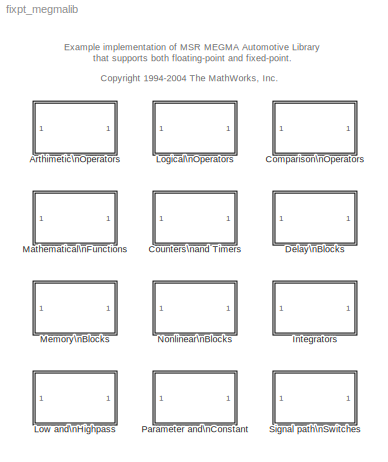
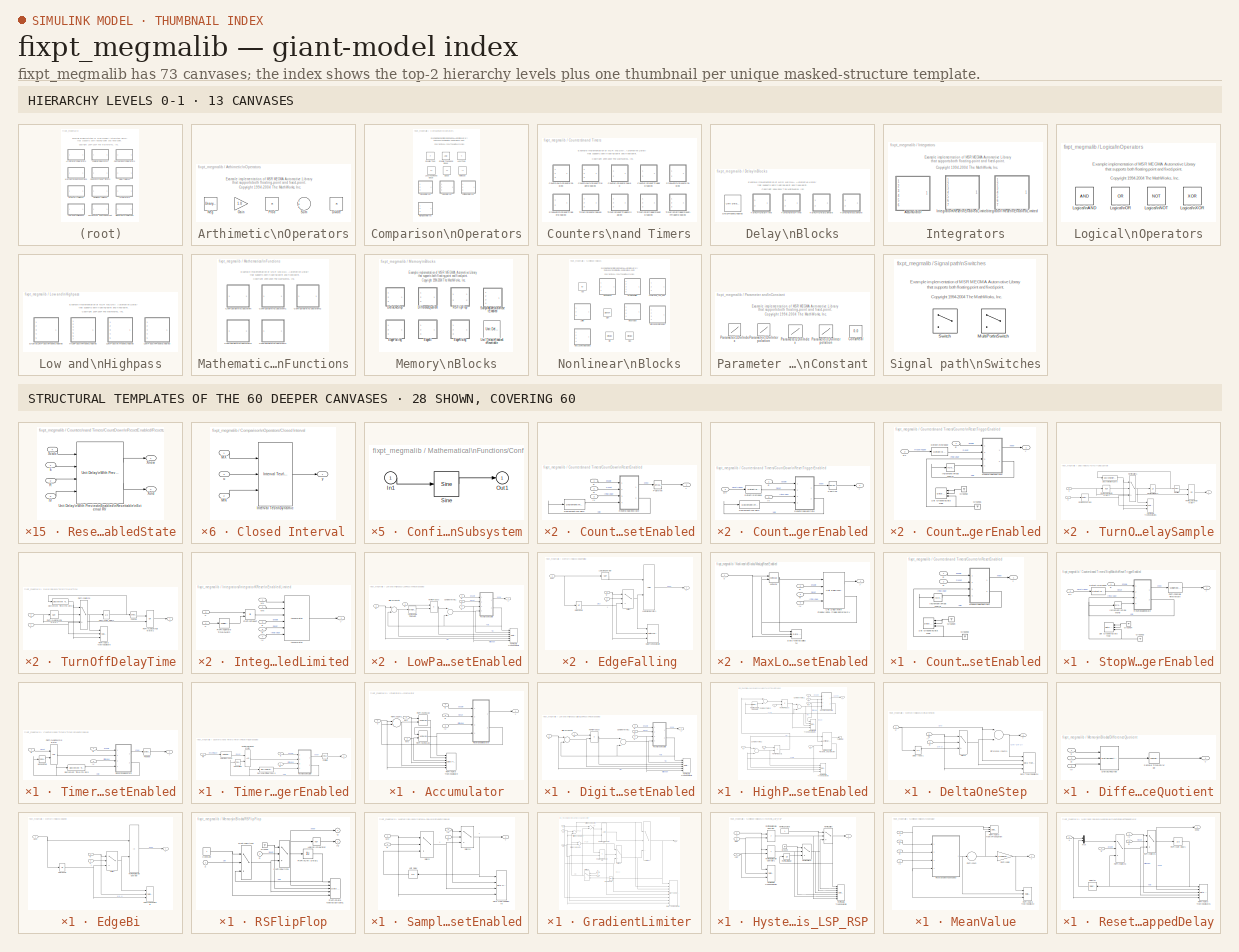
[diagram: thumbnail index - top-2 hierarchy levels (13 canvases) + 28 structural-template representatives of the remaining 60 canvases]
MODEL fixpt_megmalib
KIND library
BLOCK [SubSystem] Arthimetic\nOperators
  MaskDisplay = disp('Arithmetic \\n Operators')
  MaskIconFrame = on
  MaskIconOpaque = on
  MaskIconRotate = none
  MaskIconUnits = autoscale
  MaskType = Arithmetic Blocks
  MinAlgLoopOccurrences = off
  Ports = []
  PropExecContextAcrossSSBoundary = on
  RTWSystemCode = Auto
  TreatAsAtomicUnit = off
BLOCK [Product] Arthimetic\nOperators/Divide
  InputSameDT = off
  Inputs = */
  OutDataTypeMode = Specify via dialog
  OutScaling = 2^-10
  Ports = [2, 1]
  RndMeth = Floor
  SaturateOnIntegerOverflow = off
BLOCK [Gain] Arthimetic\nOperators/Gain
  Gain = 1.0
  OutDataTypeMode = Specify via dialog
  OutScaling = 2^-10
  ParameterDataTypeMode = Specify via dialog
  ParameterScaling = 2^-15
  SaturateOnIntegerOverflow = off
BLOCK [Reference] Arthimetic\nOperators/Neg  REF=simulink/Math\nOperations/Unary Minus
  DoSatur = off
  Ports = [1, 1]
  SourceBlock = simulink/Math\nOperations/Unary Minus
  SourceType = Unary Minus
BLOCK [Product] Arthimetic\nOperators/Prod
  InputSameDT = off
  Inputs = ***
  OutDataTypeMode = Specify via dialog
  OutScaling = 2^-10
  Ports = [3, 1]
  RndMeth = Floor
  SaturateOnIntegerOverflow = off
BLOCK [Sum] Arthimetic\nOperators/Sum
  InputSameDT = off
  Inputs = +++
  OutDataTypeMode = Specify via dialog
  OutScaling = 2^-10
  Ports = [3, 1]
  SaturateOnIntegerOverflow = off
BLOCK [SubSystem] Comparison\nOperators
  MaskDisplay = disp('Comparison \\nOperators')
  MaskIconFrame = on
  MaskIconOpaque = on
  MaskIconRotate = none
  MaskIconUnits = autoscale
  MaskType = Comparision
  MinAlgLoopOccurrences = off
  Ports = []
  PropExecContextAcrossSSBoundary = on
  RTWSystemCode = Auto
  TreatAsAtomicUnit = off
BLOCK [SubSystem] Comparison\nOperators/Closed Interval
  MaskDescription = Output is true, if the input value u is in the closed interval [MN,MX]
  MaskDisplay = plot(0.25+0.75*[0 1],[0.2 0.2],0.25+0.75*[0.35 0.35],[0 1],0.25+0.75*[0 0.2 0.2 0.65 0.65 1],[0.25 0.25 0.75 0.75 0.25 0.25]);
  MaskHelp = web(fpbhelp('closedinterval'));
  MaskIconFrame = on
  MaskIconOpaque = off
  MaskIconRotate = none
  MaskIconUnits = normalized
  MaskSelfModifiable = on
  MaskType = MEGMA Interval Test Dynamic
  MinAlgLoopOccurrences = off
  Ports = [3, 1]
  PropExecContextAcrossSSBoundary = on
  RTWSystemCode = Auto
  TreatAsAtomicUnit = off
BLOCK [Reference] Comparison\nOperators/Closed Interval/Interval Test\nDynamic  REF=simulink/Logic and Bit\nOperations/Interval Test\nDynamic
  IntervalClosedLeft = on
  IntervalClosedRight = on
  LogicOutDataTypeMode = boolean
  Ports = [3, 1]
  ShowPortLabels = on
  SourceBlock = simulink/Logic and Bit\nOperations/Interval Test\nDynamic
  SourceType = Interval Test Dynamic
BLOCK [Inport] Comparison\nOperators/Closed Interval/MN
  IconDisplay = Port number
  LatchInput = off
  Port = 2
BLOCK [Inport] Comparison\nOperators/Closed Interval/MX
  IconDisplay = Port number
  LatchInput = off
BLOCK [Inport] Comparison\nOperators/Closed Interval/u
  IconDisplay = Port number
  LatchInput = off
  Port = 3
BLOCK [Outport] Comparison\nOperators/Closed Interval/y
  BusOutputAsStruct = off
  IconDisplay = Port number
BLOCK [RelationalOperator] Comparison\nOperators/Equal
  InputSameDT = off
  LogicOutDataTypeMode = Specify via dialog
  Operator = ==
  ZeroCross = off
BLOCK [RelationalOperator] Comparison\nOperators/Greater Than
  InputSameDT = off
  LogicOutDataTypeMode = Specify via dialog
  Operator = >
  ZeroCross = off
BLOCK [RelationalOperator] Comparison\nOperators/Greater Than\nand Equal
  InputSameDT = off
  LogicOutDataTypeMode = Specify via dialog
  ZeroCross = off
BLOCK [SubSystem] Comparison\nOperators/Left Open Interval
  MaskDescription = Output is true, if the input value u is in the left open interval (MN,MX]
  MaskDisplay = plot(0.25+0.75*[0 1],[0.2 0.2],0.25+0.75*[0.35 0.35],[0 1],0.25+0.75*[0 0.2 0.2],...\n[0.25 0.25 0.4],  0.25+0.75*[0.2 0.2 0.65 0.65 1],[0.6 0.75 0.75 0.25 0.25]);
  MaskHelp = web(fpbhelp('leftopeninterval'));
  MaskIconFrame = on
  MaskIconOpaque = off
  MaskIconRotate = none
  MaskIconUnits = normalized
  MaskSelfModifiable = on
  MaskType = MEGMA Interval Test Dynamic
  MinAlgLoopOccurrences = off
  Ports = [3, 1]
  PropExecContextAcrossSSBoundary = on
  RTWSystemCode = Auto
  TreatAsAtomicUnit = off
BLOCK [Reference] Comparison\nOperators/Left Open Interval/Interval Test\nDynamic  REF=simulink/Logic and Bit\nOperations/Interval Test\nDynamic
  IntervalClosedLeft = off
  IntervalClosedRight = on
  LogicOutDataTypeMode = boolean
  Ports = [3, 1]
  ShowPortLabels = on
  SourceBlock = simulink/Logic and Bit\nOperations/Interval Test\nDynamic
  SourceType = Interval Test Dynamic
BLOCK [Inport] Comparison\nOperators/Left Open Interval/MN
  IconDisplay = Port number
  LatchInput = off
  Port = 2
BLOCK [Inport] Comparison\nOperators/Left Open Interval/MX
  IconDisplay = Port number
  LatchInput = off
BLOCK [Inport] Comparison\nOperators/Left Open Interval/u
  IconDisplay = Port number
  LatchInput = off
  Port = 3
BLOCK [Outport] Comparison\nOperators/Left Open Interval/y
  BusOutputAsStruct = off
  IconDisplay = Port number
BLOCK [RelationalOperator] Comparison\nOperators/Less Than
  InputSameDT = off
  LogicOutDataTypeMode = Specify via dialog
  Operator = <
  ZeroCross = off
BLOCK [RelationalOperator] Comparison\nOperators/Less Than\nand Equal
  InputSameDT = off
  LogicOutDataTypeMode = Specify via dialog
  Operator = <=
  ZeroCross = off
BLOCK [RelationalOperator] Comparison\nOperators/Not equal
  InputSameDT = off
  LogicOutDataTypeMode = Specify via dialog
  Operator = ~=
  ZeroCross = off
BLOCK [SubSystem] Comparison\nOperators/Open Interval
  MaskDescription = Output is true, if the input value u is in the open interval (MN,MX)
  MaskDisplay = plot(0.25+0.75*[0 1],[0.2 0.2],0.25+0.75*[0.35 0.35],[0 1],0.25+0.75*[0 0.2 0.2],...\n[0.25 0.25 0.4],0.25+0.75*[0.2 0.2 0.65 0.65],[0.6 0.75 0.75 0.6],0.25+0.75*[0.65 0.65 1],[0.4 0.25 0.25])
  MaskHelp = web(fpbhelp('openinterval'));
  MaskIconFrame = on
  MaskIconOpaque = off
  MaskIconRotate = none
  MaskIconUnits = normalized
  MaskSelfModifiable = on
  MaskType = MEGMA Interval Test Dynamic
  MinAlgLoopOccurrences = off
  Ports = [3, 1]
  PropExecContextAcrossSSBoundary = on
  RTWSystemCode = Auto
  TreatAsAtomicUnit = off
BLOCK [Reference] Comparison\nOperators/Open Interval/Interval Test\nDynamic  REF=simulink/Logic and Bit\nOperations/Interval Test\nDynamic
  IntervalClosedLeft = off
  IntervalClosedRight = off
  LogicOutDataTypeMode = boolean
  Ports = [3, 1]
  ShowPortLabels = on
  SourceBlock = simulink/Logic and Bit\nOperations/Interval Test\nDynamic
  SourceType = Interval Test Dynamic
BLOCK [Inport] Comparison\nOperators/Open Interval/MN
  IconDisplay = Port number
  LatchInput = off
  Port = 2
BLOCK [Inport] Comparison\nOperators/Open Interval/MX
  IconDisplay = Port number
  LatchInput = off
BLOCK [Inport] Comparison\nOperators/Open Interval/u
  IconDisplay = Port number
  LatchInput = off
  Port = 3
BLOCK [Outport] Comparison\nOperators/Open Interval/y
  BusOutputAsStruct = off
  IconDisplay = Port number
BLOCK [SubSystem] Comparison\nOperators/Right Open Interval
  MaskDescription = Output is true, if the input value u is in the right open interval [MN,MX)
  MaskDisplay = plot(0.25+0.75*[0 1],[0.2 0.2],0.25+0.75*[0.35 0.35],[0 1],...\n0.25+0.75*[0 0.2 0.2 0.65 0.65],[0.25 0.25 0.75 0.75 0.6],   0.25+0.75*[0.65 0.65 1],[0.4 0.25 0.25]);
  MaskHelp = web(fpbhelp('rightopeninterval'));
  MaskIconFrame = on
  MaskIconOpaque = off
  MaskIconRotate = none
  MaskIconUnits = normalized
  MaskSelfModifiable = on
  MaskType = MEGMA Interval Test Dynamic
  MinAlgLoopOccurrences = off
  Ports = [3, 1]
  PropExecContextAcrossSSBoundary = on
  RTWSystemCode = Auto
  TreatAsAtomicUnit = off
BLOCK [Reference] Comparison\nOperators/Right Open Interval/Interval Test\nDynamic  REF=simulink/Logic and Bit\nOperations/Interval Test\nDynamic
  IntervalClosedLeft = on
  IntervalClosedRight = off
  LogicOutDataTypeMode = boolean
  Ports = [3, 1]
  ShowPortLabels = on
  SourceBlock = simulink/Logic and Bit\nOperations/Interval Test\nDynamic
  SourceType = Interval Test Dynamic
BLOCK [Inport] Comparison\nOperators/Right Open Interval/MN
  IconDisplay = Port number
  LatchInput = off
  Port = 2
BLOCK [Inport] Comparison\nOperators/Right Open Interval/MX
  IconDisplay = Port number
  LatchInput = off
BLOCK [Inport] Comparison\nOperators/Right Open Interval/u
  IconDisplay = Port number
  LatchInput = off
  Port = 3
BLOCK [Outport] Comparison\nOperators/Right Open Interval/y
  BusOutputAsStruct = off
  IconDisplay = Port number
BLOCK [SubSystem] Counters\nand Timers
  MaskDisplay = disp('Counters \\n and Timers')
  MaskIconFrame = on
  MaskIconOpaque = on
  MaskIconRotate = none
  MaskIconUnits = autoscale
  MaskType = Count&Time
  MinAlgLoopOccurrences = off
  Ports = []
  PropExecContextAcrossSSBoundary = on
  RTWSystemCode = Auto
  TreatAsAtomicUnit = off
BLOCK [SubSystem] Counters\nand Timers/CountDown\nResetEnabled
  MaskDescription = Outputs true, if the number of block evaluations sincethe last reset is less than the initial number of block evaluations IV
  MaskDisplay = plot(0.25+0.7/6*[0 1 1 2 2 3 3 4 4 6],0.15+0.7/3*[0 0 3 3 2 2 1 1 0 0])
  MaskHelp = web(fpbhelp('countdownresetenabled'));
  MaskIconFrame = on
  MaskIconOpaque = off
  MaskIconRotate = none
  MaskIconUnits = normalized
  MaskSelfModifiable = on
  MaskType = MEGMA CountDownResetEnabled
  MinAlgLoopOccurrences = off
  Ports = [3, 1]
  PropExecContextAcrossSSBoundary = on
  RTWSystemCode = Auto
  TreatAsAtomicUnit = off
BLOCK [Reference] Counters\nand Timers/CountDown\nResetEnabled/Decrement\nTo Zero  REF=simulink/Additional Math\n& Discrete/Additional Math:\nIncrement - Decrement/Decrement\nTo Zero
  Ports = [1, 1]
  ShowPortLabels = on
  SourceBlock = simulink/Additional Math\n& Discrete/Additional Math:\nIncrement - Decrement/Decrement\nTo Zero
  SourceType = Decrement To Zero
BLOCK [Inport] Counters\nand Timers/CountDown\nResetEnabled/E
  IconDisplay = Port number
  LatchInput = off
BLOCK [Inport] Counters\nand Timers/CountDown\nResetEnabled/IV
  IconDisplay = Port number
  LatchInput = off
  Port = 3
BLOCK [Reference] Counters\nand Timers/CountDown\nResetEnabled/Positive  REF=simulink/Logic and Bit\nOperations/Compare\nTo Zero
  LogicOutDataTypeMode = uint8
  Ports = [1, 1]
  ShowPortLabels = on
  SourceBlock = simulink/Logic and Bit\nOperations/Compare\nTo Zero
  SourceType = Compare To Zero
  relop = >
BLOCK [Inport] Counters\nand Timers/CountDown\nResetEnabled/R
  IconDisplay = Port number
  LatchInput = off
  Port = 2
BLOCK [SubSystem] Counters\nand Timers/CountDown\nResetEnabled/ResetEnabledState
  MinAlgLoopOccurrences = off
  Ports = [4, 2]
  PropExecContextAcrossSSBoundary = on
  RTWSystemCode = Auto
  TreatAsAtomicUnit = off
BLOCK [Inport] Counters\nand Timers/CountDown\nResetEnabled/ResetEnabledState/E
  IconDisplay = Port number
  LatchInput = off
BLOCK [Inport] Counters\nand Timers/CountDown\nResetEnabled/ResetEnabledState/IV
  IconDisplay = Port number
  LatchInput = off
  Port = 3
BLOCK [Inport] Counters\nand Timers/CountDown\nResetEnabled/ResetEnabledState/R
  IconDisplay = Port number
  LatchInput = off
  Port = 2
BLOCK [Reference] Counters\nand Timers/CountDown\nResetEnabled/ResetEnabledState/Unit Delay\nWith Preview\nEnabled\nResettable\nExternal RV  REF=simulink/Additional Math\n& Discrete/Additional\nDiscrete/Unit Delay\nWith Preview\nEnabled\nResettable\nExternal RV
  Ports = [4, 2]
  ShowPortLabels = on
  SourceBlock = simulink/Additional Math\n& Discrete/Additional\nDiscrete/Unit Delay\nWith Preview\nEnabled\nResettable\nExternal RV
  SourceType = Unit Delay With Preview Enabled Resettable External RV
  tsamp = -1
  vinit = 0.0
BLOCK [Inport] Counters\nand Timers/CountDown\nResetEnabled/ResetEnabledState/Xcalc
  IconDisplay = Port number
  LatchInput = off
  Port = 4
BLOCK [Outport] Counters\nand Timers/CountDown\nResetEnabled/ResetEnabledState/Xnew
  BusOutputAsStruct = off
  IconDisplay = Port number
BLOCK [Outport] Counters\nand Timers/CountDown\nResetEnabled/ResetEnabledState/Xold
  BusOutputAsStruct = off
  IconDisplay = Port number
  Port = 2
BLOCK [Outport] Counters\nand Timers/CountDown\nResetEnabled/y
  BusOutputAsStruct = off
  IconDisplay = Port number
BLOCK [SubSystem] Counters\nand Timers/CountDown\nResetTriggerEnabled
  MaskDescription = Outputs true, if the number of block evaluations sincethe last reset is less than the initial number of block evaluations IV
  MaskDisplay = plot(0.25+0.7/6*[0 1 1 2 2 3 3 4 4 6],0.15+0.7/3*[0 0 3 3 2 2 1 1 0 0])
  MaskHelp = web(fpbhelp('countdownresettriggerenabled'));
  MaskIconFrame = on
  MaskIconOpaque = off
  MaskIconRotate = none
  MaskIconUnits = normalized
  MaskSelfModifiable = on
  MaskType = MEGMA CountDownResetTriggerEnabled
  MinAlgLoopOccurrences = off
  Ports = [3, 1]
  PropExecContextAcrossSSBoundary = on
  RTWSystemCode = Auto
  TreatAsAtomicUnit = off
BLOCK [Reference] Counters\nand Timers/CountDown\nResetTriggerEnabled/Decrement\nTo Zero  REF=simulink/Additional Math\n& Discrete/Additional Math:\nIncrement - Decrement/Decrement\nTo Zero
  Ports = [1, 1]
  ShowPortLabels = on
  SourceBlock = simulink/Additional Math\n& Discrete/Additional Math:\nIncrement - Decrement/Decrement\nTo Zero
  SourceType = Decrement To Zero
BLOCK [Reference] Counters\nand Timers/CountDown\nResetTriggerEnabled/Detect\nIncrease  REF=simulink/Logic and Bit\nOperations/Detect\nIncrease
  Ports = [1, 1]
  ShowPortLabels = on
  SourceBlock = simulink/Logic and Bit\nOperations/Detect\nIncrease
  SourceType = Detect Increase
  vinit = 0.0
BLOCK [Inport] Counters\nand Timers/CountDown\nResetTriggerEnabled/E
  IconDisplay = Port number
  LatchInput = off
BLOCK [Inport] Counters\nand Timers/CountDown\nResetTriggerEnabled/IV
  IconDisplay = Port number
  LatchInput = off
  Port = 3
BLOCK [Reference] Counters\nand Timers/CountDown\nResetTriggerEnabled/Positive  REF=simulink/Logic and Bit\nOperations/Compare\nTo Zero
  LogicOutDataTypeMode = uint8
  Ports = [1, 1]
  ShowPortLabels = on
  SourceBlock = simulink/Logic and Bit\nOperations/Compare\nTo Zero
  SourceType = Compare To Zero
  relop = >
BLOCK [Inport] Counters\nand Timers/CountDown\nResetTriggerEnabled/RT
  IconDisplay = Port number
  LatchInput = off
  Port = 2
BLOCK [SubSystem] Counters\nand Timers/CountDown\nResetTriggerEnabled/ResetEnabledState
  MinAlgLoopOccurrences = off
  Ports = [4, 2]
  PropExecContextAcrossSSBoundary = on
  RTWSystemCode = Auto
  TreatAsAtomicUnit = off
BLOCK [Inport] Counters\nand Timers/CountDown\nResetTriggerEnabled/ResetEnabledState/E
  IconDisplay = Port number
  LatchInput = off
BLOCK [Inport] Counters\nand Timers/CountDown\nResetTriggerEnabled/ResetEnabledState/IV
  IconDisplay = Port number
  LatchInput = off
  Port = 3
BLOCK [Inport] Counters\nand Timers/CountDown\nResetTriggerEnabled/ResetEnabledState/R
  IconDisplay = Port number
  LatchInput = off
  Port = 2
BLOCK [Reference] Counters\nand Timers/CountDown\nResetTriggerEnabled/ResetEnabledState/Unit Delay\nWith Preview\nEnabled\nResettable\nExternal RV  REF=simulink/Additional Math\n& Discrete/Additional\nDiscrete/Unit Delay\nWith Preview\nEnabled\nResettable\nExternal RV
  Ports = [4, 2]
  ShowPortLabels = on
  SourceBlock = simulink/Additional Math\n& Discrete/Additional\nDiscrete/Unit Delay\nWith Preview\nEnabled\nResettable\nExternal RV
  SourceType = Unit Delay With Preview Enabled Resettable External RV
  tsamp = -1
  vinit = 0.0
BLOCK [Inport] Counters\nand Timers/CountDown\nResetTriggerEnabled/ResetEnabledState/Xcalc
  IconDisplay = Port number
  LatchInput = off
  Port = 4
BLOCK [Outport] Counters\nand Timers/CountDown\nResetTriggerEnabled/ResetEnabledState/Xnew
  BusOutputAsStruct = off
  IconDisplay = Port number
BLOCK [Outport] Counters\nand Timers/CountDown\nResetTriggerEnabled/ResetEnabledState/Xold
  BusOutputAsStruct = off
  IconDisplay = Port number
  Port = 2
BLOCK [Outport] Counters\nand Timers/CountDown\nResetTriggerEnabled/y
  BusOutputAsStruct = off
  IconDisplay = Port number
BLOCK [SubSystem] Counters\nand Timers/Counter\nResetEnabled
  MaskDescription = Counts up and outputs the number of block evaluations since the last reset
  MaskDisplay = plot(0.25+0.7/6*[0 1 1 2 2 3 3 4 4 5],0.15+0.7/4*[0 0 1 1 2 2 3 3 4 4])
  MaskEnableString = on
  MaskHelp = web(fpbhelp('counterresetenabled'));
  MaskIconFrame = on
  MaskIconOpaque = off
  MaskIconRotate = none
  MaskIconUnits = normalized
  MaskInitialization = switch CounterBuiltInType\ncase 1\noutDT = float('double');\ncase 2\noutDT = float('single');\ncase 3\noutDT = sint(8);\ncase 4\noutDT = uint(8);\ncase 5\noutDT = sint(16);\ncase 6\noutDT = uint(16);\ncase 7\noutDT = sint(32);\ncase 8\noutDT = uint(32);\nend
  MaskPromptString = Output data type:
  MaskSelfModifiable = on
  MaskStyleString = popup(double|single|int8|uint8|int16|uint16|int32|uint32)
  MaskToolTipString = on
  MaskTunableValueString = on
  MaskType = MEGMA CounterResetEnabled
  MaskValueString = uint16
  MaskVariables = CounterBuiltInType=@1;
  MaskVisibilityString = on
  MinAlgLoopOccurrences = off
  Ports = [2, 1]
  PropExecContextAcrossSSBoundary = on
  RTWSystemCode = Auto
  TreatAsAtomicUnit = off
BLOCK [Inport] Counters\nand Timers/Counter\nResetEnabled/E
  IconDisplay = Port number
  LatchInput = off
BLOCK [Ground] Counters\nand Timers/Counter\nResetEnabled/Ground3
BLOCK [Ground] Counters\nand Timers/Counter\nResetEnabled/Ground4
BLOCK [Reference] Counters\nand Timers/Counter\nResetEnabled/Increment\nReal World  REF=simulink/Additional Math\n& Discrete/Additional Math:\nIncrement - Decrement/Increment\nReal World
  Ports = [1, 1]
  ShowPortLabels = on
  SourceBlock = simulink/Additional Math\n& Discrete/Additional Math:\nIncrement - Decrement/Increment\nReal World
  SourceType = Real World Value Increment
BLOCK [Inport] Counters\nand Timers/Counter\nResetEnabled/R
  IconDisplay = Port number
  LatchInput = off
  Port = 2
BLOCK [SubSystem] Counters\nand Timers/Counter\nResetEnabled/ResetEnabledState
  MinAlgLoopOccurrences = off
  Ports = [4, 2]
  PropExecContextAcrossSSBoundary = on
  RTWSystemCode = Auto
  TreatAsAtomicUnit = off
BLOCK [Inport] Counters\nand Timers/Counter\nResetEnabled/ResetEnabledState/E
  IconDisplay = Port number
  LatchInput = off
BLOCK [Inport] Counters\nand Timers/Counter\nResetEnabled/ResetEnabledState/IV
  IconDisplay = Port number
  LatchInput = off
  Port = 3
BLOCK [Inport] Counters\nand Timers/Counter\nResetEnabled/ResetEnabledState/R
  IconDisplay = Port number
  LatchInput = off
  Port = 2
BLOCK [Reference] Counters\nand Timers/Counter\nResetEnabled/ResetEnabledState/Unit Delay\nWith Preview\nEnabled\nResettable\nExternal RV  REF=simulink/Additional Math\n& Discrete/Additional\nDiscrete/Unit Delay\nWith Preview\nEnabled\nResettable\nExternal RV
  Ports = [4, 2]
  ShowPortLabels = on
  SourceBlock = simulink/Additional Math\n& Discrete/Additional\nDiscrete/Unit Delay\nWith Preview\nEnabled\nResettable\nExternal RV
  SourceType = Unit Delay With Preview Enabled Resettable External RV
  tsamp = -1
  vinit = 0.0
BLOCK [Inport] Counters\nand Timers/Counter\nResetEnabled/ResetEnabledState/Xcalc
  IconDisplay = Port number
  LatchInput = off
  Port = 4
BLOCK [Outport] Counters\nand Timers/Counter\nResetEnabled/ResetEnabledState/Xnew
  BusOutputAsStruct = off
  IconDisplay = Port number
BLOCK [Outport] Counters\nand Timers/Counter\nResetEnabled/ResetEnabledState/Xold
  BusOutputAsStruct = off
  IconDisplay = Port number
  Port = 2
BLOCK [Reference] Counters\nand Timers/Counter\nResetEnabled/Set Ground\nData Type  REF=simulink/Signal\nAttributes/Data Type\nPropagation
  BiasAdd = 0
  BiasBase = Bias1
  BiasMult = 1
  IfRefDouble = double
  IfRefSingle = single
  IsSigned = IsSigned1 or IsSigned2
  NumBitsAdd = 0
  NumBitsAllowFinal = 1:128
  NumBitsBase = max([NumBits1 NumBits2])
  NumBitsMult = 1
  Ports = [3]
  PropDataType = outDT
  PropDataTypeMode = Specify via dialog
  PropScaling = 1
  PropScalingMode = Specify via dialog
  SlopeAdd = 0
  SlopeBase = min([Slope1 Slope2])
  SlopeMult = 1
  SourceBlock = simulink/Signal\nAttributes/Data Type\nPropagation
  SourceType = Data Type Propagation
  ValuesUsedBestPrec = [5 -7]
BLOCK [Outport] Counters\nand Timers/Counter\nResetEnabled/y
  BusOutputAsStruct = off
  IconDisplay = Port number
BLOCK [SubSystem] Counters\nand Timers/Counter\nResetTriggerEnabled
  MaskDescription = Counts up and outputs the number of block evaluations since the last reset
  MaskDisplay = plot(0.25+0.7/6*[0 1 1 2 2 3 3 4 4 5],0.15+0.7/4*[0 0 1 1 2 2 3 3 4 4])
  MaskEnableString = on
  MaskHelp = web(fpbhelp('counterresettriggerenabled'));
  MaskIconFrame = on
  MaskIconOpaque = off
  MaskIconRotate = none
  MaskIconUnits = normalized
  MaskInitialization = switch CounterBuiltInType\ncase 1\noutDT = float('double');\ncase 2\noutDT = float('single');\ncase 3\noutDT = sint(8);\ncase 4\noutDT = uint(8);\ncase 5\noutDT = sint(16);\ncase 6\noutDT = uint(16);\ncase 7\noutDT = sint(32);\ncase 8\noutDT = uint(32);\nend
  MaskPromptString = Output data type:
  MaskSelfModifiable = on
  MaskStyleString = popup(double|single|int8|uint8|int16|uint16|int32|uint32)
  MaskToolTipString = on
  MaskTunableValueString = on
  MaskType = MEGMA CounterResetEnabled
  MaskValueString = uint16
  MaskVariables = CounterBuiltInType=@1;
  MaskVisibilityString = on
  MinAlgLoopOccurrences = off
  Ports = [2, 1]
  PropExecContextAcrossSSBoundary = on
  RTWSystemCode = Auto
  TreatAsAtomicUnit = off
BLOCK [Reference] Counters\nand Timers/Counter\nResetTriggerEnabled/Detect\nIncrease  REF=simulink/Logic and Bit\nOperations/Detect\nIncrease
  Ports = [1, 1]
  ShowPortLabels = on
  SourceBlock = simulink/Logic and Bit\nOperations/Detect\nIncrease
  SourceType = Detect Increase
  vinit = 0.0
BLOCK [Inport] Counters\nand Timers/Counter\nResetTriggerEnabled/E
  IconDisplay = Port number
  LatchInput = off
BLOCK [Ground] Counters\nand Timers/Counter\nResetTriggerEnabled/Ground1
BLOCK [Ground] Counters\nand Timers/Counter\nResetTriggerEnabled/Ground2
BLOCK [Reference] Counters\nand Timers/Counter\nResetTriggerEnabled/Increment\nReal World  REF=simulink/Additional Math\n& Discrete/Additional Math:\nIncrement - Decrement/Increment\nReal World
  Ports = [1, 1]
  ShowPortLabels = on
  SourceBlock = simulink/Additional Math\n& Discrete/Additional Math:\nIncrement - Decrement/Increment\nReal World
  SourceType = Real World Value Increment
BLOCK [Inport] Counters\nand Timers/Counter\nResetTriggerEnabled/RT
  IconDisplay = Port number
  LatchInput = off
  Port = 2
BLOCK [SubSystem] Counters\nand Timers/Counter\nResetTriggerEnabled/ResetEnabledState
  MinAlgLoopOccurrences = off
  Ports = [4, 2]
  PropExecContextAcrossSSBoundary = on
  RTWSystemCode = Auto
  TreatAsAtomicUnit = off
BLOCK [Inport] Counters\nand Timers/Counter\nResetTriggerEnabled/ResetEnabledState/E
  IconDisplay = Port number
  LatchInput = off
BLOCK [Inport] Counters\nand Timers/Counter\nResetTriggerEnabled/ResetEnabledState/IV
  IconDisplay = Port number
  LatchInput = off
  Port = 3
BLOCK [Inport] Counters\nand Timers/Counter\nResetTriggerEnabled/ResetEnabledState/R
  IconDisplay = Port number
  LatchInput = off
  Port = 2
BLOCK [Reference] Counters\nand Timers/Counter\nResetTriggerEnabled/ResetEnabledState/Unit Delay\nWith Preview\nEnabled\nResettable\nExternal RV  REF=simulink/Additional Math\n& Discrete/Additional\nDiscrete/Unit Delay\nWith Preview\nEnabled\nResettable\nExternal RV
  Ports = [4, 2]
  ShowPortLabels = on
  SourceBlock = simulink/Additional Math\n& Discrete/Additional\nDiscrete/Unit Delay\nWith Preview\nEnabled\nResettable\nExternal RV
  SourceType = Unit Delay With Preview Enabled Resettable External RV
  tsamp = -1
  vinit = 0.0
BLOCK [Inport] Counters\nand Timers/Counter\nResetTriggerEnabled/ResetEnabledState/Xcalc
  IconDisplay = Port number
  LatchInput = off
  Port = 4
BLOCK [Outport] Counters\nand Timers/Counter\nResetTriggerEnabled/ResetEnabledState/Xnew
  BusOutputAsStruct = off
  IconDisplay = Port number
BLOCK [Outport] Counters\nand Timers/Counter\nResetTriggerEnabled/ResetEnabledState/Xold
  BusOutputAsStruct = off
  IconDisplay = Port number
  Port = 2
BLOCK [Reference] Counters\nand Timers/Counter\nResetTriggerEnabled/Set Ground\nData Type  REF=simulink/Signal\nAttributes/Data Type\nPropagation
  BiasAdd = 0
  BiasBase = Bias1
  BiasMult = 1
  IfRefDouble = double
  IfRefSingle = single
  IsSigned = IsSigned1 or IsSigned2
  NumBitsAdd = 0
  NumBitsAllowFinal = 1:128
  NumBitsBase = max([NumBits1 NumBits2])
  NumBitsMult = 1
  Ports = [3]
  PropDataType = outDT
  PropDataTypeMode = Specify via dialog
  PropScaling = 1
  PropScalingMode = Specify via dialog
  SlopeAdd = 0
  SlopeBase = min([Slope1 Slope2])
  SlopeMult = 1
  SourceBlock = simulink/Signal\nAttributes/Data Type\nPropagation
  SourceType = Data Type Propagation
  ValuesUsedBestPrec = [5 -7]
BLOCK [Outport] Counters\nand Timers/Counter\nResetTriggerEnabled/y
  BusOutputAsStruct = off
  IconDisplay = Port number
BLOCK [SubSystem] Counters\nand Timers/StopWatch\nResetEnabled
  MaskDescription = The block outputs the time since the system init or thelast reset
  MaskDisplay = plot(x+0.6,y+0.5,xx+0.6,yy+0.5,xa,ya)
  MaskEnableString = on
  MaskHelp = web(fpbhelp('stopwatchresetenabled'));
  MaskIconFrame = on
  MaskIconOpaque = off
  MaskIconRotate = none
  MaskIconUnits = normalized
  MaskInitialization = switch StopWatchBuiltInType\ncase 1\noutDT = float('double');\ncase 2\noutDT = float('single');\ncase 3\noutDT = sint(8);\ncase 4\noutDT = uint(8);\ncase 5\noutDT = sint(16);\ncase 6\noutDT = uint(16);\ncase 7\noutDT = sint(32);\ncase 8\noutDT = uint(32);\nend\nrad1 = 0.4;\nrad2 = 0.3;\nntic = 12;\nnpts = ntic*2+1;\nang = linspace(0,2*pi,npts);\nx = rad1*cos(ang);\ny = rad1*sin(ang);\nxx = zeros(2...<+315ch>
  MaskPromptString = Stop watch data type based on:
  MaskSelfModifiable = on
  MaskStyleString = popup(double|single|int8|uint8|int16|uint16|int32|uint32)
  MaskToolTipString = on
  MaskTunableValueString = on
  MaskType = MEGMA StopWatchResetEnabled
  MaskValueString = uint16
  MaskVariables = StopWatchBuiltInType=@1;
  MaskVisibilityString = on
  MinAlgLoopOccurrences = off
  Ports = [2, 1]
  PropExecContextAcrossSSBoundary = on
  RTWSystemCode = Auto
  TreatAsAtomicUnit = off
BLOCK [Inport] Counters\nand Timers/StopWatch\nResetEnabled/E
  IconDisplay = Port number
  LatchInput = off
BLOCK [Reference] Counters\nand Timers/StopWatch\nResetEnabled/FixPt\nSample Time\nMath  REF=simulink/Math\nOperations/Weighted\nSample Time\nMath
  DoSatur = off
  OutputDataTypeScalingMode = Inherit via internal rule
  Ports = [1, 1]
  RndMeth = Floor
  SourceBlock = simulink/Math\nOperations/Weighted\nSample Time\nMath
  SourceType = Sample Time Math
  TsampMathImp = Online Calculations
  TsampMathOp = *
  weightValue = 1.0
BLOCK [Ground] Counters\nand Timers/StopWatch\nResetEnabled/Ground3
BLOCK [Ground] Counters\nand Timers/StopWatch\nResetEnabled/Ground4
BLOCK [Reference] Counters\nand Timers/StopWatch\nResetEnabled/Increment\nReal World  REF=simulink/Additional Math\n& Discrete/Additional Math:\nIncrement - Decrement/Increment\nReal World
  Ports = [1, 1]
  ShowPortLabels = on
  SourceBlock = simulink/Additional Math\n& Discrete/Additional Math:\nIncrement - Decrement/Increment\nReal World
  SourceType = Real World Value Increment
BLOCK [Inport] Counters\nand Timers/StopWatch\nResetEnabled/R
  IconDisplay = Port number
  LatchInput = off
  Port = 2
BLOCK [SubSystem] Counters\nand Timers/StopWatch\nResetEnabled/ResetEnabledState
  MinAlgLoopOccurrences = off
  Ports = [4, 2]
  PropExecContextAcrossSSBoundary = on
  RTWSystemCode = Auto
  TreatAsAtomicUnit = off
BLOCK [Inport] Counters\nand Timers/StopWatch\nResetEnabled/ResetEnabledState/E
  IconDisplay = Port number
  LatchInput = off
BLOCK [Inport] Counters\nand Timers/StopWatch\nResetEnabled/ResetEnabledState/IV
  IconDisplay = Port number
  LatchInput = off
  Port = 3
BLOCK [Inport] Counters\nand Timers/StopWatch\nResetEnabled/ResetEnabledState/R
  IconDisplay = Port number
  LatchInput = off
  Port = 2
BLOCK [Reference] Counters\nand Timers/StopWatch\nResetEnabled/ResetEnabledState/Unit Delay\nWith Preview\nEnabled\nResettable\nExternal RV  REF=simulink/Additional Math\n& Discrete/Additional\nDiscrete/Unit Delay\nWith Preview\nEnabled\nResettable\nExternal RV
  Ports = [4, 2]
  ShowPortLabels = on
  SourceBlock = simulink/Additional Math\n& Discrete/Additional\nDiscrete/Unit Delay\nWith Preview\nEnabled\nResettable\nExternal RV
  SourceType = Unit Delay With Preview Enabled Resettable External RV
  tsamp = -1
  vinit = 0.0
BLOCK [Inport] Counters\nand Timers/StopWatch\nResetEnabled/ResetEnabledState/Xcalc
  IconDisplay = Port number
  LatchInput = off
  Port = 4
BLOCK [Outport] Counters\nand Timers/StopWatch\nResetEnabled/ResetEnabledState/Xnew
  BusOutputAsStruct = off
  IconDisplay = Port number
BLOCK [Outport] Counters\nand Timers/StopWatch\nResetEnabled/ResetEnabledState/Xold
  BusOutputAsStruct = off
  IconDisplay = Port number
  Port = 2
BLOCK [Reference] Counters\nand Timers/StopWatch\nResetEnabled/Set Ground\nData Type  REF=simulink/Signal\nAttributes/Data Type\nPropagation
  BiasAdd = 0
  BiasBase = Bias1
  BiasMult = 1
  IfRefDouble = double
  IfRefSingle = single
  IsSigned = IsSigned1 or IsSigned2
  NumBitsAdd = 0
  NumBitsAllowFinal = 1:128
  NumBitsBase = max([NumBits1 NumBits2])
  NumBitsMult = 1
  Ports = [3]
  PropDataType = outDT
  PropDataTypeMode = Specify via dialog
  PropScaling = 1
  PropScalingMode = Specify via dialog
  SlopeAdd = 0
  SlopeBase = min([Slope1 Slope2])
  SlopeMult = 1
  SourceBlock = simulink/Signal\nAttributes/Data Type\nPropagation
  SourceType = Data Type Propagation
  ValuesUsedBestPrec = [5 -7]
BLOCK [Outport] Counters\nand Timers/StopWatch\nResetEnabled/y
  BusOutputAsStruct = off
  IconDisplay = Port number
BLOCK [SubSystem] Counters\nand Timers/StopWatch\nResetTriggerEnabled
  MaskDescription = The block outputs the time since the system init or thelast reset
  MaskDisplay = plot(x+0.6,y+0.5,xx+0.6,yy+0.5,xa,ya)
  MaskEnableString = on
  MaskHelp = web(fpbhelp('stopwatchresettriggerenabled'));
  MaskIconFrame = on
  MaskIconOpaque = off
  MaskIconRotate = none
  MaskIconUnits = normalized
  MaskInitialization = switch StopWatchBuiltInType\ncase 1\noutDT = float('double');\ncase 2\noutDT = float('single');\ncase 3\noutDT = sint(8);\ncase 4\noutDT = uint(8);\ncase 5\noutDT = sint(16);\ncase 6\noutDT = uint(16);\ncase 7\noutDT = sint(32);\ncase 8\noutDT = uint(32);\nend\nrad1 = 0.4;\nrad2 = 0.3;\nntic = 12;\nnpts = ntic*2+1;\nang = linspace(0,2*pi,npts);\nx = rad1*cos(ang);\ny = rad1*sin(ang);\nxx = zeros(2...<+315ch>
  MaskPromptString = Stop watch data type based on:
  MaskSelfModifiable = on
  MaskStyleString = popup(double|single|int8|uint8|int16|uint16|int32|uint32)
  MaskToolTipString = on
  MaskTunableValueString = on
  MaskType = MEGMA StopWatchResetTriggerEnabled
  MaskValueString = uint16
  MaskVariables = StopWatchBuiltInType=@1;
  MaskVisibilityString = on
  MinAlgLoopOccurrences = off
  Ports = [2, 1]
  PropExecContextAcrossSSBoundary = on
  RTWSystemCode = Auto
  TreatAsAtomicUnit = off
BLOCK [Reference] Counters\nand Timers/StopWatch\nResetTriggerEnabled/Detect\nIncrease  REF=simulink/Logic and Bit\nOperations/Detect\nIncrease
  Ports = [1, 1]
  ShowPortLabels = on
  SourceBlock = simulink/Logic and Bit\nOperations/Detect\nIncrease
  SourceType = Detect Increase
  vinit = 0.0
BLOCK [Inport] Counters\nand Timers/StopWatch\nResetTriggerEnabled/E
  IconDisplay = Port number
  LatchInput = off
BLOCK [Reference] Counters\nand Timers/StopWatch\nResetTriggerEnabled/FixPt\nSample Time\nMath  REF=simulink/Math\nOperations/Weighted\nSample Time\nMath
  DoSatur = off
  OutputDataTypeScalingMode = Inherit via internal rule
  Ports = [1, 1]
  RndMeth = Floor
  SourceBlock = simulink/Math\nOperations/Weighted\nSample Time\nMath
  SourceType = Sample Time Math
  TsampMathImp = Online Calculations
  TsampMathOp = *
  weightValue = 1.0
BLOCK [Ground] Counters\nand Timers/StopWatch\nResetTriggerEnabled/Ground3
BLOCK [Ground] Counters\nand Timers/StopWatch\nResetTriggerEnabled/Ground4
BLOCK [Reference] Counters\nand Timers/StopWatch\nResetTriggerEnabled/Increment\nReal World  REF=simulink/Additional Math\n& Discrete/Additional Math:\nIncrement - Decrement/Increment\nReal World
  Ports = [1, 1]
  ShowPortLabels = on
  SourceBlock = simulink/Additional Math\n& Discrete/Additional Math:\nIncrement - Decrement/Increment\nReal World
  SourceType = Real World Value Increment
BLOCK [Inport] Counters\nand Timers/StopWatch\nResetTriggerEnabled/RT
  IconDisplay = Port number
  LatchInput = off
  Port = 2
BLOCK [SubSystem] Counters\nand Timers/StopWatch\nResetTriggerEnabled/ResetEnabledState
  MinAlgLoopOccurrences = off
  Ports = [4, 2]
  PropExecContextAcrossSSBoundary = on
  RTWSystemCode = Auto
  TreatAsAtomicUnit = off
BLOCK [Inport] Counters\nand Timers/StopWatch\nResetTriggerEnabled/ResetEnabledState/E
  IconDisplay = Port number
  LatchInput = off
BLOCK [Inport] Counters\nand Timers/StopWatch\nResetTriggerEnabled/ResetEnabledState/IV
  IconDisplay = Port number
  LatchInput = off
  Port = 3
BLOCK [Inport] Counters\nand Timers/StopWatch\nResetTriggerEnabled/ResetEnabledState/R
  IconDisplay = Port number
  LatchInput = off
  Port = 2
BLOCK [Reference] Counters\nand Timers/StopWatch\nResetTriggerEnabled/ResetEnabledState/Unit Delay\nWith Preview\nEnabled\nResettable\nExternal RV  REF=simulink/Additional Math\n& Discrete/Additional\nDiscrete/Unit Delay\nWith Preview\nEnabled\nResettable\nExternal RV
  Ports = [4, 2]
  ShowPortLabels = on
  SourceBlock = simulink/Additional Math\n& Discrete/Additional\nDiscrete/Unit Delay\nWith Preview\nEnabled\nResettable\nExternal RV
  SourceType = Unit Delay With Preview Enabled Resettable External RV
  tsamp = -1
  vinit = 0.0
BLOCK [Inport] Counters\nand Timers/StopWatch\nResetTriggerEnabled/ResetEnabledState/Xcalc
  IconDisplay = Port number
  LatchInput = off
  Port = 4
BLOCK [Outport] Counters\nand Timers/StopWatch\nResetTriggerEnabled/ResetEnabledState/Xnew
  BusOutputAsStruct = off
  IconDisplay = Port number
BLOCK [Outport] Counters\nand Timers/StopWatch\nResetTriggerEnabled/ResetEnabledState/Xold
  BusOutputAsStruct = off
  IconDisplay = Port number
  Port = 2
BLOCK [Reference] Counters\nand Timers/StopWatch\nResetTriggerEnabled/Set Ground\nData Type  REF=simulink/Signal\nAttributes/Data Type\nPropagation
  BiasAdd = 0
  BiasBase = Bias1
  BiasMult = 1
  IfRefDouble = double
  IfRefSingle = single
  IsSigned = IsSigned1 or IsSigned2
  NumBitsAdd = 0
  NumBitsAllowFinal = 1:128
  NumBitsBase = max([NumBits1 NumBits2])
  NumBitsMult = 1
  Ports = [3]
  PropDataType = outDT
  PropDataTypeMode = Specify via dialog
  PropScaling = 1
  PropScalingMode = Specify via dialog
  SlopeAdd = 0
  SlopeBase = min([Slope1 Slope2])
  SlopeMult = 1
  SourceBlock = simulink/Signal\nAttributes/Data Type\nPropagation
  SourceType = Data Type Propagation
  ValuesUsedBestPrec = [5 -7]
BLOCK [Outport] Counters\nand Timers/StopWatch\nResetTriggerEnabled/y
  BusOutputAsStruct = off
  IconDisplay = Port number
BLOCK [SubSystem] Counters\nand Timers/Timer\nResetEnabled
  MaskDescription = The block indicates true, if the initial time IV has notpassed since the last reset of the block. Reset can onlybe performed, if the counter has run down to zero
  MaskDisplay = plot(0.25+0.7/5*[0 1 1 4 5],0.15+0.7/1*[0 0 1 0 0])
  MaskHelp = web(fpbhelp('timerresetenabled'));
  MaskIconFrame = on
  MaskIconOpaque = off
  MaskIconRotate = none
  MaskIconUnits = normalized
  MaskSelfModifiable = on
  MaskType = MEGMA TimerResetEnabled
  MinAlgLoopOccurrences = off
  Ports = [3, 1]
  PropExecContextAcrossSSBoundary = on
  RTWSystemCode = Auto
  TreatAsAtomicUnit = off
BLOCK [Reference] Counters\nand Timers/Timer\nResetEnabled/Decrement Time\nTo Zero  REF=simulink/Additional Math\n& Discrete/Additional Math:\nIncrement - Decrement/Decrement Time\nTo Zero
  Ports = [1, 1]
  ShowPortLabels = on
  SourceBlock = simulink/Additional Math\n& Discrete/Additional Math:\nIncrement - Decrement/Decrement Time\nTo Zero
  SourceType = Decrement Time To Zero
BLOCK [Inport] Counters\nand Timers/Timer\nResetEnabled/E
  IconDisplay = Port number
  LatchInput = off
BLOCK [Logic] Counters\nand Timers/Timer\nResetEnabled/FixPt\nLogical\nOperator
  AllPortsSameDT = off
  OutDataTypeMode = Specify via dialog
  Ports = [2, 1]
BLOCK [Inport] Counters\nand Timers/Timer\nResetEnabled/IV
  IconDisplay = Port number
  LatchInput = off
  Port = 3
BLOCK [Reference] Counters\nand Timers/Timer\nResetEnabled/Nonpositive  REF=simulink/Logic and Bit\nOperations/Compare\nTo Zero
  LogicOutDataTypeMode = uint8
  Ports = [1, 1]
  ShowPortLabels = on
  SourceBlock = simulink/Logic and Bit\nOperations/Compare\nTo Zero
  SourceType = Compare To Zero
  relop = <=
BLOCK [Reference] Counters\nand Timers/Timer\nResetEnabled/Positive  REF=simulink/Logic and Bit\nOperations/Compare\nTo Zero
  LogicOutDataTypeMode = uint8
  Ports = [1, 1]
  ShowPortLabels = on
  SourceBlock = simulink/Logic and Bit\nOperations/Compare\nTo Zero
  SourceType = Compare To Zero
  relop = >
BLOCK [Inport] Counters\nand Timers/Timer\nResetEnabled/R
  IconDisplay = Port number
  LatchInput = off
  Port = 2
BLOCK [SubSystem] Counters\nand Timers/Timer\nResetEnabled/ResetEnabledState
  MinAlgLoopOccurrences = off
  Ports = [4, 2]
  PropExecContextAcrossSSBoundary = on
  RTWSystemCode = Auto
  TreatAsAtomicUnit = off
BLOCK [Inport] Counters\nand Timers/Timer\nResetEnabled/ResetEnabledState/E
  IconDisplay = Port number
  LatchInput = off
BLOCK [Inport] Counters\nand Timers/Timer\nResetEnabled/ResetEnabledState/IV
  IconDisplay = Port number
  LatchInput = off
  Port = 3
BLOCK [Inport] Counters\nand Timers/Timer\nResetEnabled/ResetEnabledState/R
  IconDisplay = Port number
  LatchInput = off
  Port = 2
BLOCK [Reference] Counters\nand Timers/Timer\nResetEnabled/ResetEnabledState/Unit Delay\nWith Preview\nEnabled\nResettable\nExternal RV  REF=simulink/Additional Math\n& Discrete/Additional\nDiscrete/Unit Delay\nWith Preview\nEnabled\nResettable\nExternal RV
  Ports = [4, 2]
  ShowPortLabels = on
  SourceBlock = simulink/Additional Math\n& Discrete/Additional\nDiscrete/Unit Delay\nWith Preview\nEnabled\nResettable\nExternal RV
  SourceType = Unit Delay With Preview Enabled Resettable External RV
  tsamp = -1
  vinit = 0.0
BLOCK [Inport] Counters\nand Timers/Timer\nResetEnabled/ResetEnabledState/Xcalc
  IconDisplay = Port number
  LatchInput = off
  Port = 4
BLOCK [Outport] Counters\nand Timers/Timer\nResetEnabled/ResetEnabledState/Xnew
  BusOutputAsStruct = off
  IconDisplay = Port number
BLOCK [Outport] Counters\nand Timers/Timer\nResetEnabled/ResetEnabledState/Xold
  BusOutputAsStruct = off
  IconDisplay = Port number
  Port = 2
BLOCK [Outport] Counters\nand Timers/Timer\nResetEnabled/y
  BusOutputAsStruct = off
  IconDisplay = Port number
BLOCK [SubSystem] Counters\nand Timers/Timer\nResetTriggerEnabled
  MaskDescription = The block indicates true, if the initial time IV has notpassed since the last reset of the block. Reset can onlybe performed, if the counter has run down to zero
  MaskDisplay = plot(0.25+0.7/5*[0 1 1 4 5],0.15+0.7/1*[0 0 1 0 0])
  MaskHelp = web(fpbhelp('timerresettriggerenabled'));
  MaskIconFrame = on
  MaskIconOpaque = off
  MaskIconRotate = none
  MaskIconUnits = normalized
  MaskSelfModifiable = on
  MaskType = MEGMA TimerResetEnabled
  MinAlgLoopOccurrences = off
  Ports = [3, 1]
  PropExecContextAcrossSSBoundary = on
  RTWSystemCode = Auto
  TreatAsAtomicUnit = off
BLOCK [Reference] Counters\nand Timers/Timer\nResetTriggerEnabled/Decrement Time\nTo Zero  REF=simulink/Additional Math\n& Discrete/Additional Math:\nIncrement - Decrement/Decrement Time\nTo Zero
  Ports = [1, 1]
  ShowPortLabels = on
  SourceBlock = simulink/Additional Math\n& Discrete/Additional Math:\nIncrement - Decrement/Decrement Time\nTo Zero
  SourceType = Decrement Time To Zero
BLOCK [Reference] Counters\nand Timers/Timer\nResetTriggerEnabled/Detect\nIncrease  REF=simulink/Logic and Bit\nOperations/Detect\nIncrease
  Ports = [1, 1]
  ShowPortLabels = on
  SourceBlock = simulink/Logic and Bit\nOperations/Detect\nIncrease
  SourceType = Detect Increase
  vinit = 0.0
BLOCK [Inport] Counters\nand Timers/Timer\nResetTriggerEnabled/E
  IconDisplay = Port number
  LatchInput = off
BLOCK [Logic] Counters\nand Timers/Timer\nResetTriggerEnabled/FixPt\nLogical\nOperator
  AllPortsSameDT = off
  OutDataTypeMode = Specify via dialog
  Ports = [2, 1]
BLOCK [Inport] Counters\nand Timers/Timer\nResetTriggerEnabled/IV
  IconDisplay = Port number
  LatchInput = off
  Port = 3
BLOCK [Reference] Counters\nand Timers/Timer\nResetTriggerEnabled/Nonpositive  REF=simulink/Logic and Bit\nOperations/Compare\nTo Zero
  LogicOutDataTypeMode = uint8
  Ports = [1, 1]
  ShowPortLabels = on
  SourceBlock = simulink/Logic and Bit\nOperations/Compare\nTo Zero
  SourceType = Compare To Zero
  relop = <=
BLOCK [Reference] Counters\nand Timers/Timer\nResetTriggerEnabled/Positive  REF=simulink/Logic and Bit\nOperations/Compare\nTo Zero
  LogicOutDataTypeMode = uint8
  Ports = [1, 1]
  ShowPortLabels = on
  SourceBlock = simulink/Logic and Bit\nOperations/Compare\nTo Zero
  SourceType = Compare To Zero
  relop = >
BLOCK [Inport] Counters\nand Timers/Timer\nResetTriggerEnabled/RT
  IconDisplay = Port number
  LatchInput = off
  Port = 2
BLOCK [SubSystem] Counters\nand Timers/Timer\nResetTriggerEnabled/ResetEnabledState
  MinAlgLoopOccurrences = off
  Ports = [4, 2]
  PropExecContextAcrossSSBoundary = on
  RTWSystemCode = Auto
  TreatAsAtomicUnit = off
BLOCK [Inport] Counters\nand Timers/Timer\nResetTriggerEnabled/ResetEnabledState/E
  IconDisplay = Port number
  LatchInput = off
BLOCK [Inport] Counters\nand Timers/Timer\nResetTriggerEnabled/ResetEnabledState/IV
  IconDisplay = Port number
  LatchInput = off
  Port = 3
BLOCK [Inport] Counters\nand Timers/Timer\nResetTriggerEnabled/ResetEnabledState/R
  IconDisplay = Port number
  LatchInput = off
  Port = 2
BLOCK [Reference] Counters\nand Timers/Timer\nResetTriggerEnabled/ResetEnabledState/Unit Delay\nWith Preview\nEnabled\nResettable\nExternal RV  REF=simulink/Additional Math\n& Discrete/Additional\nDiscrete/Unit Delay\nWith Preview\nEnabled\nResettable\nExternal RV
  Ports = [4, 2]
  ShowPortLabels = on
  SourceBlock = simulink/Additional Math\n& Discrete/Additional\nDiscrete/Unit Delay\nWith Preview\nEnabled\nResettable\nExternal RV
  SourceType = Unit Delay With Preview Enabled Resettable External RV
  tsamp = -1
  vinit = 0.0
BLOCK [Inport] Counters\nand Timers/Timer\nResetTriggerEnabled/ResetEnabledState/Xcalc
  IconDisplay = Port number
  LatchInput = off
  Port = 4
BLOCK [Outport] Counters\nand Timers/Timer\nResetTriggerEnabled/ResetEnabledState/Xnew
  BusOutputAsStruct = off
  IconDisplay = Port number
BLOCK [Outport] Counters\nand Timers/Timer\nResetTriggerEnabled/ResetEnabledState/Xold
  BusOutputAsStruct = off
  IconDisplay = Port number
  Port = 2
BLOCK [Outport] Counters\nand Timers/Timer\nResetTriggerEnabled/y
  BusOutputAsStruct = off
  IconDisplay = Port number
BLOCK [SubSystem] Counters\nand Timers/Timer\nRetriggerResetEnabled
  MaskDescription = The block indicates true, if the initial time IV has notpassed since the last reset of the block. Reset is alwayspossible and independent of the current timer value
  MaskDisplay = plot(0.25+0.7/8*[0 1 1 3 3 7 8],0.15+0.7/2*[0 0 2 1 2 0 0])
  MaskHelp = web(fpbhelp('timerretriggerresetenabled'));
  MaskIconFrame = on
  MaskIconOpaque = off
  MaskIconRotate = none
  MaskIconUnits = normalized
  MaskSelfModifiable = on
  MaskType = MEGMA TimerRetriggerResetEnabled
  MinAlgLoopOccurrences = off
  Ports = [3, 1]
  PropExecContextAcrossSSBoundary = on
  RTWSystemCode = Auto
  TreatAsAtomicUnit = off
BLOCK [Reference] Counters\nand Timers/Timer\nRetriggerResetEnabled/Decrement Time\nTo Zero  REF=simulink/Additional Math\n& Discrete/Additional Math:\nIncrement - Decrement/Decrement Time\nTo Zero
  Ports = [1, 1]
  ShowPortLabels = on
  SourceBlock = simulink/Additional Math\n& Discrete/Additional Math:\nIncrement - Decrement/Decrement Time\nTo Zero
  SourceType = Decrement Time To Zero
BLOCK [Inport] Counters\nand Timers/Timer\nRetriggerResetEnabled/E
  IconDisplay = Port number
  LatchInput = off
BLOCK [Inport] Counters\nand Timers/Timer\nRetriggerResetEnabled/IV
  IconDisplay = Port number
  LatchInput = off
  Port = 3
BLOCK [Reference] Counters\nand Timers/Timer\nRetriggerResetEnabled/Positive  REF=simulink/Logic and Bit\nOperations/Compare\nTo Zero
  LogicOutDataTypeMode = uint8
  Ports = [1, 1]
  ShowPortLabels = on
  SourceBlock = simulink/Logic and Bit\nOperations/Compare\nTo Zero
  SourceType = Compare To Zero
  relop = >
BLOCK [Inport] Counters\nand Timers/Timer\nRetriggerResetEnabled/R
  IconDisplay = Port number
  LatchInput = off
  Port = 2
BLOCK [SubSystem] Counters\nand Timers/Timer\nRetriggerResetEnabled/ResetEnabledState
  MinAlgLoopOccurrences = off
  Ports = [4, 2]
  PropExecContextAcrossSSBoundary = on
  RTWSystemCode = Auto
  TreatAsAtomicUnit = off
BLOCK [Inport] Counters\nand Timers/Timer\nRetriggerResetEnabled/ResetEnabledState/E
  IconDisplay = Port number
  LatchInput = off
BLOCK [Inport] Counters\nand Timers/Timer\nRetriggerResetEnabled/ResetEnabledState/IV
  IconDisplay = Port number
  LatchInput = off
  Port = 3
BLOCK [Inport] Counters\nand Timers/Timer\nRetriggerResetEnabled/ResetEnabledState/R
  IconDisplay = Port number
  LatchInput = off
  Port = 2
BLOCK [Reference] Counters\nand Timers/Timer\nRetriggerResetEnabled/ResetEnabledState/Unit Delay\nWith Preview\nEnabled\nResettable\nExternal RV  REF=simulink/Additional Math\n& Discrete/Additional\nDiscrete/Unit Delay\nWith Preview\nEnabled\nResettable\nExternal RV
  Ports = [4, 2]
  ShowPortLabels = on
  SourceBlock = simulink/Additional Math\n& Discrete/Additional\nDiscrete/Unit Delay\nWith Preview\nEnabled\nResettable\nExternal RV
  SourceType = Unit Delay With Preview Enabled Resettable External RV
  tsamp = -1
  vinit = 0.0
BLOCK [Inport] Counters\nand Timers/Timer\nRetriggerResetEnabled/ResetEnabledState/Xcalc
  IconDisplay = Port number
  LatchInput = off
  Port = 4
BLOCK [Outport] Counters\nand Timers/Timer\nRetriggerResetEnabled/ResetEnabledState/Xnew
  BusOutputAsStruct = off
  IconDisplay = Port number
BLOCK [Outport] Counters\nand Timers/Timer\nRetriggerResetEnabled/ResetEnabledState/Xold
  BusOutputAsStruct = off
  IconDisplay = Port number
  Port = 2
BLOCK [Outport] Counters\nand Timers/Timer\nRetriggerResetEnabled/y
  BusOutputAsStruct = off
  IconDisplay = Port number
BLOCK [SubSystem] Counters\nand Timers/Timer\nRetriggerReset\nTriggerEnabled
  MaskDescription = The block indicates true, if the initial time IV has notpassed since the last reset of the block. Reset is alwayspossible and independent of the current timer value
  MaskDisplay = plot(0.25+0.7/8*[0 1 1 3 3 7 8],0.15+0.7/2*[0 0 2 1 2 0 0])
  MaskHelp = web(fpbhelp('timerretriggerresettriggerenabled'));
  MaskIconFrame = on
  MaskIconOpaque = off
  MaskIconRotate = none
  MaskIconUnits = normalized
  MaskSelfModifiable = on
  MaskType = MEGMA TimerRetriggerResetTriggerEnabled
  MinAlgLoopOccurrences = off
  Ports = [3, 1]
  PropExecContextAcrossSSBoundary = on
  RTWSystemCode = Auto
  TreatAsAtomicUnit = off
BLOCK [Reference] Counters\nand Timers/Timer\nRetriggerReset\nTriggerEnabled/Decrement Time\nTo Zero  REF=simulink/Additional Math\n& Discrete/Additional Math:\nIncrement - Decrement/Decrement Time\nTo Zero
  Ports = [1, 1]
  ShowPortLabels = on
  SourceBlock = simulink/Additional Math\n& Discrete/Additional Math:\nIncrement - Decrement/Decrement Time\nTo Zero
  SourceType = Decrement Time To Zero
BLOCK [Reference] Counters\nand Timers/Timer\nRetriggerReset\nTriggerEnabled/Detect\nIncrease  REF=simulink/Logic and Bit\nOperations/Detect\nIncrease
  Ports = [1, 1]
  ShowPortLabels = on
  SourceBlock = simulink/Logic and Bit\nOperations/Detect\nIncrease
  SourceType = Detect Increase
  vinit = 0.0
BLOCK [Inport] Counters\nand Timers/Timer\nRetriggerReset\nTriggerEnabled/E
  IconDisplay = Port number
  LatchInput = off
BLOCK [Inport] Counters\nand Timers/Timer\nRetriggerReset\nTriggerEnabled/IV
  IconDisplay = Port number
  LatchInput = off
  Port = 3
BLOCK [Reference] Counters\nand Timers/Timer\nRetriggerReset\nTriggerEnabled/Positive  REF=simulink/Logic and Bit\nOperations/Compare\nTo Zero
  LogicOutDataTypeMode = uint8
  Ports = [1, 1]
  ShowPortLabels = on
  SourceBlock = simulink/Logic and Bit\nOperations/Compare\nTo Zero
  SourceType = Compare To Zero
  relop = >
BLOCK [Inport] Counters\nand Timers/Timer\nRetriggerReset\nTriggerEnabled/RT
  IconDisplay = Port number
  LatchInput = off
  Port = 2
BLOCK [SubSystem] Counters\nand Timers/Timer\nRetriggerReset\nTriggerEnabled/ResetEnabledState
  MinAlgLoopOccurrences = off
  Ports = [4, 2]
  PropExecContextAcrossSSBoundary = on
  RTWSystemCode = Auto
  TreatAsAtomicUnit = off
BLOCK [Inport] Counters\nand Timers/Timer\nRetriggerReset\nTriggerEnabled/ResetEnabledState/E
  IconDisplay = Port number
  LatchInput = off
BLOCK [Inport] Counters\nand Timers/Timer\nRetriggerReset\nTriggerEnabled/ResetEnabledState/IV
  IconDisplay = Port number
  LatchInput = off
  Port = 3
BLOCK [Inport] Counters\nand Timers/Timer\nRetriggerReset\nTriggerEnabled/ResetEnabledState/R
  IconDisplay = Port number
  LatchInput = off
  Port = 2
BLOCK [Reference] Counters\nand Timers/Timer\nRetriggerReset\nTriggerEnabled/ResetEnabledState/Unit Delay\nWith Preview\nEnabled\nResettable\nExternal RV  REF=simulink/Additional Math\n& Discrete/Additional\nDiscrete/Unit Delay\nWith Preview\nEnabled\nResettable\nExternal RV
  Ports = [4, 2]
  ShowPortLabels = on
  SourceBlock = simulink/Additional Math\n& Discrete/Additional\nDiscrete/Unit Delay\nWith Preview\nEnabled\nResettable\nExternal RV
  SourceType = Unit Delay With Preview Enabled Resettable External RV
  tsamp = -1
  vinit = 0.0
BLOCK [Inport] Counters\nand Timers/Timer\nRetriggerReset\nTriggerEnabled/ResetEnabledState/Xcalc
  IconDisplay = Port number
  LatchInput = off
  Port = 4
BLOCK [Outport] Counters\nand Timers/Timer\nRetriggerReset\nTriggerEnabled/ResetEnabledState/Xnew
  BusOutputAsStruct = off
  IconDisplay = Port number
BLOCK [Outport] Counters\nand Timers/Timer\nRetriggerReset\nTriggerEnabled/ResetEnabledState/Xold
  BusOutputAsStruct = off
  IconDisplay = Port number
  Port = 2
BLOCK [Outport] Counters\nand Timers/Timer\nRetriggerReset\nTriggerEnabled/y
  BusOutputAsStruct = off
  IconDisplay = Port number
BLOCK [SubSystem] Delay\nBlocks
  MaskDisplay = disp('Delay \\n Blocks')
  MaskIconFrame = on
  MaskIconOpaque = on
  MaskIconRotate = none
  MaskIconUnits = autoscale
  MaskType = Count&Time
  MinAlgLoopOccurrences = off
  Ports = []
  PropExecContextAcrossSSBoundary = on
  RTWSystemCode = Auto
  TreatAsAtomicUnit = off
BLOCK [Reference] Delay\nBlocks/DelayResetEnabled  REF=simulink/Additional Math\n& Discrete/Additional\nDiscrete/Unit Delay\nEnabled\nResettable\nExternal IC
  Ports = [4, 1]
  ShowPortLabels = on
  SourceBlock = simulink/Additional Math\n& Discrete/Additional\nDiscrete/Unit Delay\nEnabled\nResettable\nExternal IC
  SourceType = Unit Delay Enabled Resettable External Initial Condition
  tsamp = -1
BLOCK [SubSystem] Delay\nBlocks/TurnOffDelaySample
  MaskDescription = A falling edge of the input signal is delayed by n block evaluations
  MaskDisplay = plot(0.25+0.7/6*[0 4 4 6],0.15+0.7/1*[1 1 0 0])\ndisp('n')
  MaskEnableString = on
  MaskHelp = web(fpbhelp('turnoffdelaysample'));
  MaskIconFrame = on
  MaskIconOpaque = off
  MaskIconRotate = none
  MaskIconUnits = normalized
  MaskInitialization = switch CounterType\ncase 1\noutDT = uint(8);\ncase 2\noutDT = uint(16);\ncase 3\noutDT = uint(32);\nend
  MaskPromptString = State data type:
  MaskSelfModifiable = on
  MaskStyleString = popup(uint8|uint16|uint32)
  MaskToolTipString = on
  MaskTunableValueString = on
  MaskType = MEGMA TurnOffDelaySample
  MaskValueString = uint16
  MaskVariables = CounterType=@1;
  MaskVisibilityString = on
  MinAlgLoopOccurrences = off
  Ports = [2, 1]
  PropExecContextAcrossSSBoundary = on
  RTWSystemCode = Auto
  TreatAsAtomicUnit = off
BLOCK [Reference] Delay\nBlocks/TurnOffDelaySample/Decrement\nTo Zero  REF=simulink/Additional Math\n& Discrete/Additional Math:\nIncrement - Decrement/Decrement\nTo Zero
  Ports = [1, 1]
  ShowPortLabels = on
  SourceBlock = simulink/Additional Math\n& Discrete/Additional Math:\nIncrement - Decrement/Decrement\nTo Zero
  SourceType = Decrement To Zero
BLOCK [DataTypeConversion] Delay\nBlocks/TurnOffDelaySample/FixPt\nConversion
  OutDataType = outDT
  OutDataTypeMode = Specify via dialog
  OutScaling = 1
  RndMeth = Nearest
BLOCK [Reference] Delay\nBlocks/TurnOffDelaySample/FixPt\nData Type\nDuplicate1  REF=simulink/Signal\nAttributes/Data Type\nDuplicate
  NumInputPorts = 3
  Ports = [3]
  SourceBlock = simulink/Signal\nAttributes/Data Type\nDuplicate
  SourceType = Data Type Duplicate
BLOCK [Logic] Delay\nBlocks/TurnOffDelaySample/FixPt\nLogical\nOperator3
  AllPortsSameDT = off
  Inputs = 1
  Operator = NOT
  OutDataTypeMode = Specify via dialog
  Ports = [1, 1]
BLOCK [Logic] Delay\nBlocks/TurnOffDelaySample/FixPt\nLogical\nOperator4
  AllPortsSameDT = off
  Operator = OR
  OutDataTypeMode = Specify via dialog
  Ports = [2, 1]
BLOCK [Switch] Delay\nBlocks/TurnOffDelaySample/FixPt\nSwitch1
  InputSameDT = off
  OutDataTypeMode = Inherit via back propagation
  SaturateOnIntegerOverflow = off
  Threshold = 1
  ZeroCross = off
BLOCK [UnitDelay] Delay\nBlocks/TurnOffDelaySample/FixPt\nUnit Delay2
  SampleTime = -1
  X0 = 0.0
BLOCK [Reference] Delay\nBlocks/TurnOffDelaySample/Positive  REF=simulink/Logic and Bit\nOperations/Compare\nTo Zero
  LogicOutDataTypeMode = uint8
  Ports = [1, 1]
  ShowPortLabels = on
  SourceBlock = simulink/Logic and Bit\nOperations/Compare\nTo Zero
  SourceType = Compare To Zero
  relop = >
BLOCK [Inport] Delay\nBlocks/TurnOffDelaySample/n
  IconDisplay = Port number
  LatchInput = off
BLOCK [Inport] Delay\nBlocks/TurnOffDelaySample/u
  IconDisplay = Port number
  LatchInput = off
  Port = 2
BLOCK [Outport] Delay\nBlocks/TurnOffDelaySample/y
  BusOutputAsStruct = off
  IconDisplay = Port number
BLOCK [SubSystem] Delay\nBlocks/TurnOffDelayTime
  MaskDescription = A falling edge of the input signal u is delayed by the time T
  MaskDisplay = plot(0.25+0.7/6*[0 4 4 6],0.15+0.7/1*[1 1 0 0])\ndisp('T')
  MaskHelp = web(fpbhelp('turnoffdelaytime'));
  MaskIconFrame = on
  MaskIconOpaque = off
  MaskIconRotate = none
  MaskIconUnits = normalized
  MaskSelfModifiable = on
  MaskType = MEGMA TurnOffDelayTime
  MinAlgLoopOccurrences = off
  Ports = [2, 1]
  PropExecContextAcrossSSBoundary = on
  RTWSystemCode = Auto
  TreatAsAtomicUnit = off
BLOCK [Reference] Delay\nBlocks/TurnOffDelayTime/Decrement Time\nTo Zero  REF=simulink/Additional Math\n& Discrete/Additional Math:\nIncrement - Decrement/Decrement Time\nTo Zero
  Ports = [1, 1]
  ShowPortLabels = on
  SourceBlock = simulink/Additional Math\n& Discrete/Additional Math:\nIncrement - Decrement/Decrement Time\nTo Zero
  SourceType = Decrement Time To Zero
BLOCK [Reference] Delay\nBlocks/TurnOffDelayTime/FixPt\nData Type\nDuplicate  REF=simulink/Signal\nAttributes/Data Type\nDuplicate
  NumInputPorts = 3
  Ports = [3]
  SourceBlock = simulink/Signal\nAttributes/Data Type\nDuplicate
  SourceType = Data Type Duplicate
BLOCK [Logic] Delay\nBlocks/TurnOffDelayTime/FixPt\nLogical\nOperator1
  AllPortsSameDT = off
  Inputs = 1
  Operator = NOT
  OutDataTypeMode = Specify via dialog
  Ports = [1, 1]
BLOCK [Logic] Delay\nBlocks/TurnOffDelayTime/FixPt\nLogical\nOperator2
  AllPortsSameDT = off
  Operator = OR
  OutDataTypeMode = Specify via dialog
  Ports = [2, 1]
BLOCK [Switch] Delay\nBlocks/TurnOffDelayTime/FixPt\nSwitch3
  InputSameDT = off
  OutDataTypeMode = Inherit via back propagation
  SaturateOnIntegerOverflow = off
  Threshold = 1
  ZeroCross = off
BLOCK [UnitDelay] Delay\nBlocks/TurnOffDelayTime/FixPt\nUnit Delay1
  SampleTime = -1
  X0 = 0.0
BLOCK [Reference] Delay\nBlocks/TurnOffDelayTime/Positive  REF=simulink/Logic and Bit\nOperations/Compare\nTo Zero
  LogicOutDataTypeMode = uint8
  Ports = [1, 1]
  ShowPortLabels = on
  SourceBlock = simulink/Logic and Bit\nOperations/Compare\nTo Zero
  SourceType = Compare To Zero
  relop = >
BLOCK [Inport] Delay\nBlocks/TurnOffDelayTime/T
  IconDisplay = Port number
  LatchInput = off
BLOCK [Inport] Delay\nBlocks/TurnOffDelayTime/u
  IconDisplay = Port number
  LatchInput = off
  Port = 2
BLOCK [Outport] Delay\nBlocks/TurnOffDelayTime/y
  BusOutputAsStruct = off
  IconDisplay = Port number
BLOCK [SubSystem] Delay\nBlocks/TurnOnDelaySample
  MaskDescription = A rising edge of the input signal is delayed by n block evaluations
  MaskDisplay = plot(0.25+0.7/6*[0 4 4 6],0.15+0.7/1*[0 0 1 1])\ndisp('n')
  MaskEnableString = on
  MaskHelp = web(fpbhelp('turnondelaysample'));
  MaskIconFrame = on
  MaskIconOpaque = off
  MaskIconRotate = none
  MaskIconUnits = normalized
  MaskInitialization = switch CounterType\ncase 1\noutDT = uint(8);\ncase 2\noutDT = uint(16);\ncase 3\noutDT = uint(32);\nend
  MaskPromptString = State data type:
  MaskSelfModifiable = on
  MaskStyleString = popup(uint8|uint16|uint32)
  MaskToolTipString = on
  MaskTunableValueString = on
  MaskType = MEGMA TurnOffDelaySample
  MaskValueString = uint16
  MaskVariables = CounterType=@1;
  MaskVisibilityString = on
  MinAlgLoopOccurrences = off
  Ports = [2, 1]
  PropExecContextAcrossSSBoundary = on
  RTWSystemCode = Auto
  TreatAsAtomicUnit = off
BLOCK [Reference] Delay\nBlocks/TurnOnDelaySample/Decrement\nTo Zero  REF=simulink/Additional Math\n& Discrete/Additional Math:\nIncrement - Decrement/Decrement\nTo Zero
  Ports = [1, 1]
  ShowPortLabels = on
  SourceBlock = simulink/Additional Math\n& Discrete/Additional Math:\nIncrement - Decrement/Decrement\nTo Zero
  SourceType = Decrement To Zero
BLOCK [DataTypeConversion] Delay\nBlocks/TurnOnDelaySample/FixPt\nConversion
  OutDataType = outDT
  OutDataTypeMode = Specify via dialog
  OutScaling = 1
  RndMeth = Nearest
BLOCK [Reference] Delay\nBlocks/TurnOnDelaySample/FixPt\nData Type\nDuplicate1  REF=simulink/Signal\nAttributes/Data Type\nDuplicate
  NumInputPorts = 3
  Ports = [3]
  SourceBlock = simulink/Signal\nAttributes/Data Type\nDuplicate
  SourceType = Data Type Duplicate
BLOCK [Logic] Delay\nBlocks/TurnOnDelaySample/FixPt\nLogical\nOperator3
  AllPortsSameDT = off
  Inputs = 1
  Operator = NOT
  OutDataTypeMode = Specify via dialog
  Ports = [1, 1]
BLOCK [Logic] Delay\nBlocks/TurnOnDelaySample/FixPt\nLogical\nOperator4
  AllPortsSameDT = off
  OutDataTypeMode = Specify via dialog
  Ports = [2, 1]
BLOCK [Switch] Delay\nBlocks/TurnOnDelaySample/FixPt\nSwitch1
  InputSameDT = off
  OutDataTypeMode = Inherit via back propagation
  SaturateOnIntegerOverflow = off
  Threshold = 1
  ZeroCross = off
BLOCK [UnitDelay] Delay\nBlocks/TurnOnDelaySample/FixPt\nUnit Delay2
  SampleTime = -1
  X0 = 0.0
BLOCK [Reference] Delay\nBlocks/TurnOnDelaySample/Nonpositive  REF=simulink/Logic and Bit\nOperations/Compare\nTo Zero
  LogicOutDataTypeMode = uint8
  Ports = [1, 1]
  ShowPortLabels = on
  SourceBlock = simulink/Logic and Bit\nOperations/Compare\nTo Zero
  SourceType = Compare To Zero
  relop = <=
BLOCK [Inport] Delay\nBlocks/TurnOnDelaySample/n
  IconDisplay = Port number
  LatchInput = off
BLOCK [Inport] Delay\nBlocks/TurnOnDelaySample/u
  IconDisplay = Port number
  LatchInput = off
  Port = 2
BLOCK [Outport] Delay\nBlocks/TurnOnDelaySample/y
  BusOutputAsStruct = off
  IconDisplay = Port number
BLOCK [SubSystem] Delay\nBlocks/TurnOnDelayTime
  MaskDescription = A rising edge of the input signal u is delayed by the time T
  MaskDisplay = plot(0.25+0.7/6*[0 4 4 6],0.15+0.7/1*[0 0 1 1])\ndisp('T')
  MaskHelp = web(fpbhelp('turnondelaytime'));
  MaskIconFrame = on
  MaskIconOpaque = off
  MaskIconRotate = none
  MaskIconUnits = normalized
  MaskSelfModifiable = on
  MaskType = MEGMA TurnOnDelayTime
  MinAlgLoopOccurrences = off
  Ports = [2, 1]
  PropExecContextAcrossSSBoundary = on
  RTWSystemCode = Auto
  TreatAsAtomicUnit = off
BLOCK [Reference] Delay\nBlocks/TurnOnDelayTime/Decrement Time\nTo Zero  REF=simulink/Additional Math\n& Discrete/Additional Math:\nIncrement - Decrement/Decrement Time\nTo Zero
  Ports = [1, 1]
  ShowPortLabels = on
  SourceBlock = simulink/Additional Math\n& Discrete/Additional Math:\nIncrement - Decrement/Decrement Time\nTo Zero
  SourceType = Decrement Time To Zero
BLOCK [Reference] Delay\nBlocks/TurnOnDelayTime/FixPt\nData Type\nDuplicate1  REF=simulink/Signal\nAttributes/Data Type\nDuplicate
  NumInputPorts = 3
  Ports = [3]
  SourceBlock = simulink/Signal\nAttributes/Data Type\nDuplicate
  SourceType = Data Type Duplicate
BLOCK [Logic] Delay\nBlocks/TurnOnDelayTime/FixPt\nLogical\nOperator3
  AllPortsSameDT = off
  Inputs = 1
  Operator = NOT
  OutDataTypeMode = Specify via dialog
  Ports = [1, 1]
BLOCK [Logic] Delay\nBlocks/TurnOnDelayTime/FixPt\nLogical\nOperator4
  AllPortsSameDT = off
  OutDataTypeMode = Specify via dialog
  Ports = [2, 1]
BLOCK [Switch] Delay\nBlocks/TurnOnDelayTime/FixPt\nSwitch1
  InputSameDT = off
  OutDataTypeMode = Inherit via back propagation
  SaturateOnIntegerOverflow = off
  Threshold = 1
  ZeroCross = off
BLOCK [UnitDelay] Delay\nBlocks/TurnOnDelayTime/FixPt\nUnit Delay2
  SampleTime = -1
  X0 = 0.0
BLOCK [Reference] Delay\nBlocks/TurnOnDelayTime/Nonpositive  REF=simulink/Logic and Bit\nOperations/Compare\nTo Zero
  LogicOutDataTypeMode = uint8
  Ports = [1, 1]
  ShowPortLabels = on
  SourceBlock = simulink/Logic and Bit\nOperations/Compare\nTo Zero
  SourceType = Compare To Zero
  relop = <=
BLOCK [Inport] Delay\nBlocks/TurnOnDelayTime/T
  IconDisplay = Port number
  LatchInput = off
BLOCK [Inport] Delay\nBlocks/TurnOnDelayTime/u
  IconDisplay = Port number
  LatchInput = off
  Port = 2
BLOCK [Outport] Delay\nBlocks/TurnOnDelayTime/y
  BusOutputAsStruct = off
  IconDisplay = Port number
BLOCK [SubSystem] Integrators
  MaskDisplay = disp('Integrators')
  MaskIconFrame = on
  MaskIconOpaque = on
  MaskIconRotate = none
  MaskIconUnits = autoscale
  MaskType = Integrators
  MinAlgLoopOccurrences = off
  Ports = []
  PropExecContextAcrossSSBoundary = on
  RTWSystemCode = Auto
  TreatAsAtomicUnit = off
BLOCK [SubSystem] Integrators/Accumulator
  MaskDescription = Saves and outputs the limited sum of all input values u, starting with the reset value IV
  MaskDisplay = plot(0.3+0.65/6*[6 0 3 0 6],0.15+0.7/2*[0 0 1 2 2])
  MaskHelp = web(fpbhelp('accumulator'));
  MaskIconFrame = on
  MaskIconOpaque = off
  MaskIconRotate = none
  MaskIconUnits = normalized
  MaskSelfModifiable = on
  MaskType = MEGMA Accumulator Reset Enabled Limited
  MinAlgLoopOccurrences = off
  Ports = [6, 1]
  PropExecContextAcrossSSBoundary = on
  RTWSystemCode = Auto
  TreatAsAtomicUnit = off
BLOCK [Inport] Integrators/Accumulator/E
  IconDisplay = Port number
  LatchInput = off
  Port = 4
BLOCK [Reference] Integrators/Accumulator/FixPt\nData Type\nDuplicate  REF=simulink/Signal\nAttributes/Data Type\nDuplicate
  NumInputPorts = 6
  Ports = [6]
  SourceBlock = simulink/Signal\nAttributes/Data Type\nDuplicate
  SourceType = Data Type Duplicate
BLOCK [MinMax] Integrators/Accumulator/FixPt\nMinMax
  Function = min
  InputSameDT = off
  Inputs = 2
  OutDataTypeMode = Inherit via back propagation
  OutScaling = 2^-10
  Ports = [2, 1]
  SaturateOnIntegerOverflow = off
  ZeroCross = off
BLOCK [MinMax] Integrators/Accumulator/FixPt\nMinMax1
  Function = max
  InputSameDT = off
  Inputs = 2
  OutDataTypeMode = Inherit via back propagation
  OutScaling = 2^-10
  Ports = [2, 1]
  SaturateOnIntegerOverflow = off
  ZeroCross = off
BLOCK [Sum] Integrators/Accumulator/FixPt\nSum1
  InputSameDT = off
  LockScale = on
  OutDataType = uint(4)
  OutDataTypeMode = Inherit via back propagation
  OutScaling = 1
  Ports = [2, 1]
  SaturateOnIntegerOverflow = off
BLOCK [Inport] Integrators/Accumulator/IV
  IconDisplay = Port number
  LatchInput = off
  Port = 6
BLOCK [Inport] Integrators/Accumulator/MN
  IconDisplay = Port number
  LatchInput = off
  Port = 2
BLOCK [Inport] Integrators/Accumulator/MX
  IconDisplay = Port number
  LatchInput = off
BLOCK [Inport] Integrators/Accumulator/R
  IconDisplay = Port number
  LatchInput = off
  Port = 5
BLOCK [SubSystem] Integrators/Accumulator/ResetEnabledState
  MinAlgLoopOccurrences = off
  Ports = [4, 2]
  PropExecContextAcrossSSBoundary = on
  RTWSystemCode = Auto
  TreatAsAtomicUnit = off
BLOCK [Inport] Integrators/Accumulator/ResetEnabledState/E
  IconDisplay = Port number
  LatchInput = off
BLOCK [Inport] Integrators/Accumulator/ResetEnabledState/IV
  IconDisplay = Port number
  LatchInput = off
  Port = 3
BLOCK [Inport] Integrators/Accumulator/ResetEnabledState/R
  IconDisplay = Port number
  LatchInput = off
  Port = 2
BLOCK [Reference] Integrators/Accumulator/ResetEnabledState/Unit Delay\nWith Preview\nEnabled\nResettable\nExternal RV  REF=simulink/Additional Math\n& Discrete/Additional\nDiscrete/Unit Delay\nWith Preview\nEnabled\nResettable\nExternal RV
  Ports = [4, 2]
  ShowPortLabels = on
  SourceBlock = simulink/Additional Math\n& Discrete/Additional\nDiscrete/Unit Delay\nWith Preview\nEnabled\nResettable\nExternal RV
  SourceType = Unit Delay With Preview Enabled Resettable External RV
  tsamp = -1
  vinit = 0.0
BLOCK [Inport] Integrators/Accumulator/ResetEnabledState/Xcalc
  IconDisplay = Port number
  LatchInput = off
  Port = 4
BLOCK [Outport] Integrators/Accumulator/ResetEnabledState/Xnew
  BusOutputAsStruct = off
  IconDisplay = Port number
BLOCK [Outport] Integrators/Accumulator/ResetEnabledState/Xold
  BusOutputAsStruct = off
  IconDisplay = Port number
  Port = 2
BLOCK [Inport] Integrators/Accumulator/u
  IconDisplay = Port number
  LatchInput = off
  Port = 3
BLOCK [Outport] Integrators/Accumulator/y
  BusOutputAsStruct = off
  IconDisplay = Port number
BLOCK [SubSystem] Integrators/IntegratorKReset\nEnabledLimited
  MaskDescription = A discrete time integrator with gain K and limitation of the integrator values to MN and MX.
  MaskDisplay = plot(0.3+0.65/3*[0 0 3 0 2],0.05+0.9/1*[1 0 0 0 1])\ntext(0.6,0.4,'K')
  MaskHelp = web(fpbhelp('integratorkresetenabledlimited'));
  MaskIconFrame = on
  MaskIconOpaque = off
  MaskIconRotate = none
  MaskIconUnits = normalized
  MaskSelfModifiable = on
  MaskType = MEGMA Integrator K Reset Enabled Limited
  MinAlgLoopOccurrences = off
  Ports = [7, 1]
  PropExecContextAcrossSSBoundary = on
  RTWSystemCode = Auto
  TreatAsAtomicUnit = off
BLOCK [Reference] Integrators/IntegratorKReset\nEnabledLimited/Accumulator  REF=fixpt_megmalib/Integrators/Accumulator  (lib defined in mdl_c4f383f8861a)
  Ports = [6, 1]
  ShowPortLabels = on
  SourceBlock = fixpt_megmalib/Integrators/Accumulator
  SourceType = MEGMA Accumulator Reset Enabled Limited
BLOCK [Inport] Integrators/IntegratorKReset\nEnabledLimited/E
  IconDisplay = Port number
  LatchInput = off
  Port = 5
BLOCK [Product] Integrators/IntegratorKReset\nEnabledLimited/FixPt\nProduct
  InputSameDT = off
  OutDataTypeMode = Inherit via back propagation
  OutScaling = 2^-10
  Ports = [2, 1]
  RndMeth = Floor
  SaturateOnIntegerOverflow = off
BLOCK [Reference] Integrators/IntegratorKReset\nEnabledLimited/FixPt\nSample Time\nMath  REF=simulink/Math\nOperations/Weighted\nSample Time\nMath
  DoSatur = off
  OutputDataTypeScalingMode = Inherit via internal rule
  Ports = [1, 1]
  RndMeth = Floor
  SourceBlock = simulink/Math\nOperations/Weighted\nSample Time\nMath
  SourceType = Sample Time Math
  TsampMathImp = Online Calculations
  TsampMathOp = *
  weightValue = 1.0
BLOCK [Inport] Integrators/IntegratorKReset\nEnabledLimited/IV
  IconDisplay = Port number
  LatchInput = off
  Port = 7
BLOCK [Inport] Integrators/IntegratorKReset\nEnabledLimited/K
  IconDisplay = Port number
  LatchInput = off
  Port = 3
BLOCK [Inport] Integrators/IntegratorKReset\nEnabledLimited/MN
  IconDisplay = Port number
  LatchInput = off
  Port = 2
BLOCK [Inport] Integrators/IntegratorKReset\nEnabledLimited/MX
  IconDisplay = Port number
  LatchInput = off
BLOCK [Inport] Integrators/IntegratorKReset\nEnabledLimited/R
  IconDisplay = Port number
  LatchInput = off
  Port = 6
BLOCK [Inport] Integrators/IntegratorKReset\nEnabledLimited/u
  IconDisplay = Port number
  LatchInput = off
  Port = 4
BLOCK [Outport] Integrators/IntegratorKReset\nEnabledLimited/y
  BusOutputAsStruct = off
  IconDisplay = Port number
BLOCK [SubSystem] Integrators/IntegratorTReset\nEnabledLimited
  MaskDescription = A discrete time integrator with gain 1/T and limitation of the integrator values to MN and MX.
  MaskDisplay = plot(0.3+0.65/3*[0 0 3 0 2],0.05+0.9/1*[1 0 0 0 1])\ntext(0.6,0.4,'T')
  MaskHelp = web(fpbhelp('integratortresetenabledlimited'));
  MaskIconFrame = on
  MaskIconOpaque = off
  MaskIconRotate = none
  MaskIconUnits = normalized
  MaskSelfModifiable = on
  MaskType = MEGMA Integrator T Reset Enabled Limited
  MinAlgLoopOccurrences = off
  Ports = [7, 1]
  PropExecContextAcrossSSBoundary = on
  RTWSystemCode = Auto
  TreatAsAtomicUnit = off
BLOCK [Reference] Integrators/IntegratorTReset\nEnabledLimited/Accumulator  REF=fixpt_megmalib/Integrators/Accumulator  (lib defined in mdl_c4f383f8861a)
  Ports = [6, 1]
  ShowPortLabels = on
  SourceBlock = fixpt_megmalib/Integrators/Accumulator
  SourceType = MEGMA Accumulator Reset Enabled Limited
BLOCK [Inport] Integrators/IntegratorTReset\nEnabledLimited/E
  IconDisplay = Port number
  LatchInput = off
  Port = 5
BLOCK [Product] Integrators/IntegratorTReset\nEnabledLimited/FixPt\nProduct
  InputSameDT = off
  Inputs = */
  OutDataTypeMode = Inherit via back propagation
  OutScaling = 2^-10
  Ports = [2, 1]
  RndMeth = Floor
  SaturateOnIntegerOverflow = off
BLOCK [Reference] Integrators/IntegratorTReset\nEnabledLimited/FixPt\nSample Time\nMath  REF=simulink/Math\nOperations/Weighted\nSample Time\nMath
  DoSatur = off
  OutputDataTypeScalingMode = Inherit via internal rule
  Ports = [1, 1]
  RndMeth = Floor
  SourceBlock = simulink/Math\nOperations/Weighted\nSample Time\nMath
  SourceType = Sample Time Math
  TsampMathImp = Online Calculations
  TsampMathOp = *
  weightValue = 1.0
BLOCK [Inport] Integrators/IntegratorTReset\nEnabledLimited/IV
  IconDisplay = Port number
  LatchInput = off
  Port = 7
BLOCK [Inport] Integrators/IntegratorTReset\nEnabledLimited/MN
  IconDisplay = Port number
  LatchInput = off
  Port = 2
BLOCK [Inport] Integrators/IntegratorTReset\nEnabledLimited/MX
  IconDisplay = Port number
  LatchInput = off
BLOCK [Inport] Integrators/IntegratorTReset\nEnabledLimited/R
  IconDisplay = Port number
  LatchInput = off
  Port = 6
BLOCK [Inport] Integrators/IntegratorTReset\nEnabledLimited/T
  IconDisplay = Port number
  LatchInput = off
  Port = 3
BLOCK [Inport] Integrators/IntegratorTReset\nEnabledLimited/u
  IconDisplay = Port number
  LatchInput = off
  Port = 4
BLOCK [Outport] Integrators/IntegratorTReset\nEnabledLimited/y
  BusOutputAsStruct = off
  IconDisplay = Port number
BLOCK [SubSystem] Logical\nOperators
  MaskDisplay = disp('Logical \\n Operators')
  MaskIconFrame = on
  MaskIconOpaque = on
  MaskIconRotate = none
  MaskIconUnits = autoscale
  MaskType = Logical
  MinAlgLoopOccurrences = off
  Ports = []
  PropExecContextAcrossSSBoundary = on
  RTWSystemCode = Auto
  TreatAsAtomicUnit = off
BLOCK [Logic] Logical\nOperators/Logical\nAND
  AllPortsSameDT = off
  OutDataTypeMode = Specify via dialog
  Ports = [2, 1]
BLOCK [Logic] Logical\nOperators/Logical\nNOT
  AllPortsSameDT = off
  Inputs = 1
  Operator = NOT
  OutDataTypeMode = Specify via dialog
  Ports = [1, 1]
BLOCK [Logic] Logical\nOperators/Logical\nOR
  AllPortsSameDT = off
  Operator = OR
  OutDataTypeMode = Specify via dialog
  Ports = [2, 1]
BLOCK [Logic] Logical\nOperators/Logical\nXOR
  AllPortsSameDT = off
  Inputs = 1
  Operator = XOR
  OutDataTypeMode = Specify via dialog
  Ports = [1, 1]
BLOCK [SubSystem] Low and\nHighpass
  MaskDisplay = disp('Low and \\n Highpass')
  MaskIconFrame = on
  MaskIconOpaque = on
  MaskIconRotate = none
  MaskIconUnits = autoscale
  MaskType = LowAndHighPass
  MinAlgLoopOccurrences = off
  Ports = []
  PropExecContextAcrossSSBoundary = on
  RTWSystemCode = Auto
  TreatAsAtomicUnit = off
BLOCK [SubSystem] Low and\nHighpass/DigitalLowPass\nResetEnabled
  MaskDescription = A discrete time, fixed-point realization of a first order filter.\n(1-p) z\n------\n(z-p)\nTo manually adjust a setting such as scaling, look underthe mask to get at individual blocks. Scaling can alsobe set using the automatic scaling procedures
  MaskDisplay = plot([0.2,0.2],[0.2,0.8],[0.2 0.8],[0.2 0.2],...\n[0.2 0.3 0.4 0.5 0.6 0.7 0.8 0.9],[0.2 0.3 0.4 0.45 0.5 0.52 0.52 0.52],...\n[0.1,0.2],[0.54 0.54],[0.3 0.4],[0.54 0.54],[0.5 0.6],[0.54 0.54],...\n[0.7 0.8],[0.54 0.54],[0.85 0.9],[0.54 0.54])\ntext(0.7,0.5,'m')
  MaskHelp = web(fpbhelp('digitallowpassresetenabled'));
  MaskIconFrame = on
  MaskIconOpaque = off
  MaskIconRotate = none
  MaskIconUnits = normalized
  MaskSelfModifiable = on
  MaskType = MEGMA DigitalLowPassResetEnabled
  MinAlgLoopOccurrences = off
  Ports = [5, 1]
  PropExecContextAcrossSSBoundary = on
  RTWSystemCode = Auto
  TreatAsAtomicUnit = off
BLOCK [Sum] Low and\nHighpass/DigitalLowPass\nResetEnabled/Combine Terms1
  Description = \\nAdd in CPU
  InputSameDT = off
  OutDataType = sfix(32)
  OutDataTypeMode = Inherit via back propagation
  OutScaling = 2^-24
  Ports = [2, 1]
  SaturateOnIntegerOverflow = off
BLOCK [Sum] Low and\nHighpass/DigitalLowPass\nResetEnabled/Difference Inputs
  Description = \\nAdd in CPU
  InputSameDT = off
  Inputs = +-
  OutDataType = BaseType
  OutDataTypeMode = Inherit via back propagation
  OutScaling = 1
  Ports = [2, 1]
  SaturateOnIntegerOverflow = off
BLOCK [Inport] Low and\nHighpass/DigitalLowPass\nResetEnabled/E
  IconDisplay = Port number
  LatchInput = off
  Port = 3
BLOCK [Reference] Low and\nHighpass/DigitalLowPass\nResetEnabled/FixPt\nData Type\nDuplicate  REF=simulink/Signal\nAttributes/Data Type\nDuplicate
  NumInputPorts = 6
  Ports = [6]
  SourceBlock = simulink/Signal\nAttributes/Data Type\nDuplicate
  SourceType = Data Type Duplicate
BLOCK [Product] Low and\nHighpass/DigitalLowPass\nResetEnabled/FixPt\nProduct
  InputSameDT = off
  OutDataTypeMode = Inherit via back propagation
  OutScaling = 2^-10
  Ports = [2, 1]
  RndMeth = Floor
  SaturateOnIntegerOverflow = off
BLOCK [Inport] Low and\nHighpass/DigitalLowPass\nResetEnabled/IV
  IconDisplay = Port number
  LatchInput = off
  Port = 5
BLOCK [Inport] Low and\nHighpass/DigitalLowPass\nResetEnabled/R
  IconDisplay = Port number
  LatchInput = off
  Port = 4
BLOCK [SubSystem] Low and\nHighpass/DigitalLowPass\nResetEnabled/ResetEnabledState
  MinAlgLoopOccurrences = off
  Ports = [4, 2]
  PropExecContextAcrossSSBoundary = on
  RTWSystemCode = Auto
  TreatAsAtomicUnit = off
BLOCK [Inport] Low and\nHighpass/DigitalLowPass\nResetEnabled/ResetEnabledState/E
  IconDisplay = Port number
  LatchInput = off
BLOCK [Inport] Low and\nHighpass/DigitalLowPass\nResetEnabled/ResetEnabledState/IV
  IconDisplay = Port number
  LatchInput = off
  Port = 3
BLOCK [Inport] Low and\nHighpass/DigitalLowPass\nResetEnabled/ResetEnabledState/R
  IconDisplay = Port number
  LatchInput = off
  Port = 2
BLOCK [Reference] Low and\nHighpass/DigitalLowPass\nResetEnabled/ResetEnabledState/Unit Delay\nWith Preview\nEnabled\nResettable\nExternal RV  REF=simulink/Additional Math\n& Discrete/Additional\nDiscrete/Unit Delay\nWith Preview\nEnabled\nResettable\nExternal RV
  Ports = [4, 2]
  ShowPortLabels = on
  SourceBlock = simulink/Additional Math\n& Discrete/Additional\nDiscrete/Unit Delay\nWith Preview\nEnabled\nResettable\nExternal RV
  SourceType = Unit Delay With Preview Enabled Resettable External RV
  tsamp = -1
  vinit = 0.0
BLOCK [Inport] Low and\nHighpass/DigitalLowPass\nResetEnabled/ResetEnabledState/Xcalc
  IconDisplay = Port number
  LatchInput = off
  Port = 4
BLOCK [Outport] Low and\nHighpass/DigitalLowPass\nResetEnabled/ResetEnabledState/Xnew
  BusOutputAsStruct = off
  IconDisplay = Port number
BLOCK [Outport] Low and\nHighpass/DigitalLowPass\nResetEnabled/ResetEnabledState/Xold
  BusOutputAsStruct = off
  IconDisplay = Port number
  Port = 2
BLOCK [Inport] Low and\nHighpass/DigitalLowPass\nResetEnabled/U
  IconDisplay = Port number
  LatchInput = off
  Port = 2
BLOCK [Inport] Low and\nHighpass/DigitalLowPass\nResetEnabled/m
  IconDisplay = Port number
  LatchInput = off
BLOCK [Outport] Low and\nHighpass/DigitalLowPass\nResetEnabled/y
  BusOutputAsStruct = off
  IconDisplay = Port number
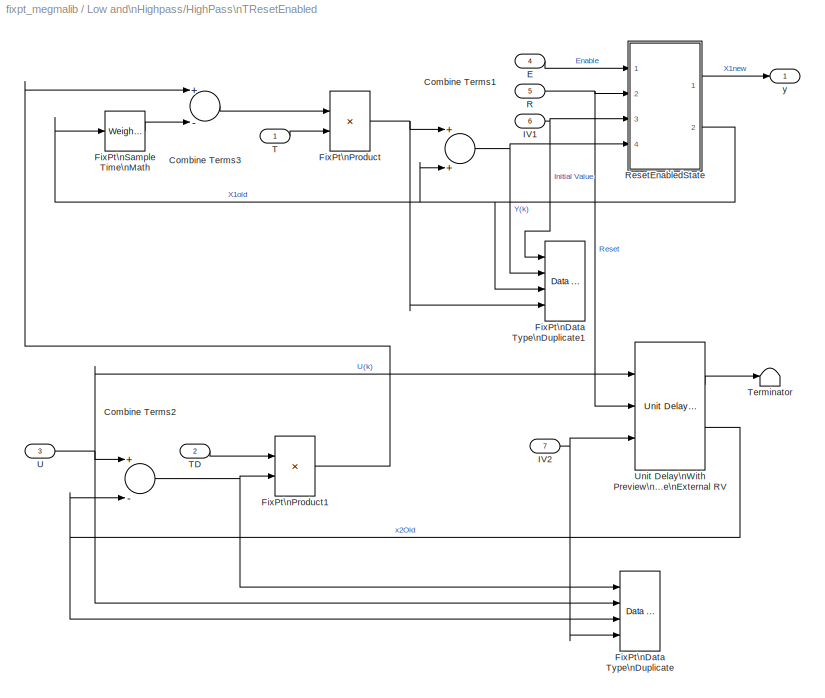
BLOCK [SubSystem] Low and\nHighpass/HighPass\nTResetEnabled
  MaskDescription = A discrete time, fixed-point realization of a first order filter.\nTD s\n------\n( T s + 1 )\nTo manually adjust a setting such as scaling, look underthe mask to get at individual blocks. Scaling can alsobe set using the automatic scaling procedures
  MaskDisplay = plot([0.2,0.2],[0.2,0.8],[0.2 0.8],[0.2 0.2],...\n[0.2 0.3 0.35 0.4 0.45 0.5 0.55 0.6 0.65],[0.6 0.45 0.4 0.35 0.32 0.3 0.26 0.25 0.22])
  MaskHelp = web(fpbhelp('highpasstresetenabled'));
  MaskIconFrame = on
  MaskIconOpaque = off
  MaskIconRotate = none
  MaskIconUnits = normalized
  MaskSelfModifiable = on
  MaskType = MEGMA HighPassTResetEnabled
  MinAlgLoopOccurrences = off
  Ports = [7, 1]
  PropExecContextAcrossSSBoundary = on
  RTWSystemCode = Auto
  TreatAsAtomicUnit = off
BLOCK [Sum] Low and\nHighpass/HighPass\nTResetEnabled/Combine Terms1
  Description = \\nAdd in CPU
  InputSameDT = off
  OutDataType = sfix(32)
  OutDataTypeMode = Inherit via back propagation
  OutScaling = 2^-24
  Ports = [2, 1]
  SaturateOnIntegerOverflow = off
BLOCK [Sum] Low and\nHighpass/HighPass\nTResetEnabled/Combine Terms2
  Description = \\nAdd in CPU
  InputSameDT = off
  Inputs = +-
  OutDataType = sfix(32)
  OutDataTypeMode = Inherit via back propagation
  OutScaling = 2^-24
  Ports = [2, 1]
  SaturateOnIntegerOverflow = off
BLOCK [Sum] Low and\nHighpass/HighPass\nTResetEnabled/Combine Terms3
  Description = \\nAdd in CPU
  InputSameDT = off
  Inputs = +-
  OutDataType = sfix(32)
  OutDataTypeMode = Inherit via internal rule
  OutScaling = 2^-24
  Ports = [2, 1]
  SaturateOnIntegerOverflow = off
BLOCK [Inport] Low and\nHighpass/HighPass\nTResetEnabled/E
  IconDisplay = Port number
  LatchInput = off
  Port = 4
BLOCK [Reference] Low and\nHighpass/HighPass\nTResetEnabled/FixPt\nData Type\nDuplicate  REF=simulink/Signal\nAttributes/Data Type\nDuplicate
  NumInputPorts = 4
  Ports = [4]
  SourceBlock = simulink/Signal\nAttributes/Data Type\nDuplicate
  SourceType = Data Type Duplicate
BLOCK [Reference] Low and\nHighpass/HighPass\nTResetEnabled/FixPt\nData Type\nDuplicate1  REF=simulink/Signal\nAttributes/Data Type\nDuplicate
  NumInputPorts = 4
  Ports = [4]
  SourceBlock = simulink/Signal\nAttributes/Data Type\nDuplicate
  SourceType = Data Type Duplicate
BLOCK [Product] Low and\nHighpass/HighPass\nTResetEnabled/FixPt\nProduct
  InputSameDT = off
  Inputs = */
  OutDataTypeMode = Inherit via back propagation
  OutScaling = 2^-10
  Ports = [2, 1]
  RndMeth = Floor
  SaturateOnIntegerOverflow = off
BLOCK [Product] Low and\nHighpass/HighPass\nTResetEnabled/FixPt\nProduct1
  InputSameDT = off
  Inputs = **
  OutDataTypeMode = Inherit via internal rule
  OutScaling = 2^-10
  Ports = [2, 1]
  RndMeth = Floor
  SaturateOnIntegerOverflow = off
BLOCK [Reference] Low and\nHighpass/HighPass\nTResetEnabled/FixPt\nSample Time\nMath  REF=simulink/Math\nOperations/Weighted\nSample Time\nMath
  DoSatur = off
  OutputDataTypeScalingMode = Inherit via internal rule
  Ports = [1, 1]
  RndMeth = Floor
  SourceBlock = simulink/Math\nOperations/Weighted\nSample Time\nMath
  SourceType = Sample Time Math
  TsampMathImp = Online Calculations
  TsampMathOp = *
  weightValue = 1.0
BLOCK [Inport] Low and\nHighpass/HighPass\nTResetEnabled/IV1
  IconDisplay = Port number
  LatchInput = off
  Port = 6
BLOCK [Inport] Low and\nHighpass/HighPass\nTResetEnabled/IV2
  IconDisplay = Port number
  LatchInput = off
  Port = 7
BLOCK [Inport] Low and\nHighpass/HighPass\nTResetEnabled/R
  IconDisplay = Port number
  LatchInput = off
  Port = 5
BLOCK [SubSystem] Low and\nHighpass/HighPass\nTResetEnabled/ResetEnabledState
  MinAlgLoopOccurrences = off
  Ports = [4, 2]
  PropExecContextAcrossSSBoundary = on
  RTWSystemCode = Auto
  TreatAsAtomicUnit = off
BLOCK [Inport] Low and\nHighpass/HighPass\nTResetEnabled/ResetEnabledState/E
  IconDisplay = Port number
  LatchInput = off
BLOCK [Inport] Low and\nHighpass/HighPass\nTResetEnabled/ResetEnabledState/IV
  IconDisplay = Port number
  LatchInput = off
  Port = 3
BLOCK [Inport] Low and\nHighpass/HighPass\nTResetEnabled/ResetEnabledState/R
  IconDisplay = Port number
  LatchInput = off
  Port = 2
BLOCK [Reference] Low and\nHighpass/HighPass\nTResetEnabled/ResetEnabledState/Unit Delay\nWith Preview\nEnabled\nResettable\nExternal RV  REF=simulink/Additional Math\n& Discrete/Additional\nDiscrete/Unit Delay\nWith Preview\nEnabled\nResettable\nExternal RV
  Ports = [4, 2]
  ShowPortLabels = on
  SourceBlock = simulink/Additional Math\n& Discrete/Additional\nDiscrete/Unit Delay\nWith Preview\nEnabled\nResettable\nExternal RV
  SourceType = Unit Delay With Preview Enabled Resettable External RV
  tsamp = -1
  vinit = 0.0
BLOCK [Inport] Low and\nHighpass/HighPass\nTResetEnabled/ResetEnabledState/Xcalc
  IconDisplay = Port number
  LatchInput = off
  Port = 4
BLOCK [Outport] Low and\nHighpass/HighPass\nTResetEnabled/ResetEnabledState/Xnew
  BusOutputAsStruct = off
  IconDisplay = Port number
BLOCK [Outport] Low and\nHighpass/HighPass\nTResetEnabled/ResetEnabledState/Xold
  BusOutputAsStruct = off
  IconDisplay = Port number
  Port = 2
BLOCK [Inport] Low and\nHighpass/HighPass\nTResetEnabled/T
  IconDisplay = Port number
  LatchInput = off
BLOCK [Inport] Low and\nHighpass/HighPass\nTResetEnabled/TD
  IconDisplay = Port number
  LatchInput = off
  Port = 2
BLOCK [Terminator] Low and\nHighpass/HighPass\nTResetEnabled/Terminator
BLOCK [Inport] Low and\nHighpass/HighPass\nTResetEnabled/U
  IconDisplay = Port number
  LatchInput = off
  Port = 3
BLOCK [Reference] Low and\nHighpass/HighPass\nTResetEnabled/Unit Delay\nWith Preview\nResettable\nExternal RV  REF=simulink/Additional Math\n& Discrete/Additional\nDiscrete/Unit Delay\nWith Preview\nResettable\nExternal RV
  Ports = [3, 2]
  ShowPortLabels = on
  SourceBlock = simulink/Additional Math\n& Discrete/Additional\nDiscrete/Unit Delay\nWith Preview\nResettable\nExternal RV
  SourceType = Unit Delay With Preview Resettable External RV
  tsamp = -1
  vinit = 0.0
BLOCK [Outport] Low and\nHighpass/HighPass\nTResetEnabled/y
  BusOutputAsStruct = off
  IconDisplay = Port number
BLOCK [SubSystem] Low and\nHighpass/LowPass\nKResetEnabled
  MaskDescription = A discrete time, fixed-point realization of a first order filter.\nK\n------\n( s + K )\nTo manually adjust a setting such as scaling, look underthe mask to get at individual blocks. Scaling can alsobe set using the automatic scaling procedures
  MaskDisplay = plot([0.2,0.2],[0.2,0.8],[0.2 0.8],[0.2 0.2],...\n[0.2 0.3 0.4 0.5 0.6 0.7 0.8 0.9],[0.2 0.3 0.4 0.45 0.5 0.52 0.52 0.52],...\n[0.1,0.2],[0.54 0.54],[0.3 0.4],[0.54 0.54],[0.5 0.6],[0.54 0.54],...\n[0.7 0.8],[0.54 0.54],[0.85 0.9],[0.54 0.54])\ntext(0.7,0.4,'K')
  MaskHelp = web(fpbhelp('lowpasskresetenabled'));
  MaskIconFrame = on
  MaskIconOpaque = off
  MaskIconRotate = none
  MaskIconUnits = normalized
  MaskSelfModifiable = on
  MaskType = MEGMA LowPassKResetEnabled
  MinAlgLoopOccurrences = off
  Ports = [5, 1]
  PropExecContextAcrossSSBoundary = on
  RTWSystemCode = Auto
  TreatAsAtomicUnit = off
BLOCK [Sum] Low and\nHighpass/LowPass\nKResetEnabled/Combine Terms1
  Description = \\nAdd in CPU
  InputSameDT = off
  OutDataType = sfix(32)
  OutDataTypeMode = Inherit via back propagation
  OutScaling = 2^-24
  Ports = [2, 1]
  SaturateOnIntegerOverflow = off
BLOCK [Sum] Low and\nHighpass/LowPass\nKResetEnabled/Difference Inputs
  Description = \\nAdd in CPU
  InputSameDT = off
  Inputs = +-
  OutDataType = BaseType
  OutDataTypeMode = Inherit via back propagation
  OutScaling = 1
  Ports = [2, 1]
  SaturateOnIntegerOverflow = off
BLOCK [Inport] Low and\nHighpass/LowPass\nKResetEnabled/E
  IconDisplay = Port number
  LatchInput = off
  Port = 3
BLOCK [Reference] Low and\nHighpass/LowPass\nKResetEnabled/FixPt\nData Type\nDuplicate  REF=simulink/Signal\nAttributes/Data Type\nDuplicate
  NumInputPorts = 6
  Ports = [6]
  SourceBlock = simulink/Signal\nAttributes/Data Type\nDuplicate
  SourceType = Data Type Duplicate
BLOCK [Product] Low and\nHighpass/LowPass\nKResetEnabled/FixPt\nProduct
  InputSameDT = off
  OutDataTypeMode = Inherit via back propagation
  OutScaling = 2^-10
  Ports = [2, 1]
  RndMeth = Floor
  SaturateOnIntegerOverflow = off
BLOCK [Reference] Low and\nHighpass/LowPass\nKResetEnabled/FixPt\nSample Time\nMath  REF=simulink/Math\nOperations/Weighted\nSample Time\nMath
  DoSatur = off
  OutputDataTypeScalingMode = Inherit via internal rule
  Ports = [1, 1]
  RndMeth = Floor
  SourceBlock = simulink/Math\nOperations/Weighted\nSample Time\nMath
  SourceType = Sample Time Math
  TsampMathImp = Online Calculations
  TsampMathOp = *
  weightValue = 1.0
BLOCK [Inport] Low and\nHighpass/LowPass\nKResetEnabled/IV
  IconDisplay = Port number
  LatchInput = off
  Port = 5
BLOCK [Inport] Low and\nHighpass/LowPass\nKResetEnabled/K
  IconDisplay = Port number
  LatchInput = off
BLOCK [Inport] Low and\nHighpass/LowPass\nKResetEnabled/R
  IconDisplay = Port number
  LatchInput = off
  Port = 4
BLOCK [SubSystem] Low and\nHighpass/LowPass\nKResetEnabled/ResetEnabledState
  MinAlgLoopOccurrences = off
  Ports = [4, 2]
  PropExecContextAcrossSSBoundary = on
  RTWSystemCode = Auto
  TreatAsAtomicUnit = off
BLOCK [Inport] Low and\nHighpass/LowPass\nKResetEnabled/ResetEnabledState/E
  IconDisplay = Port number
  LatchInput = off
BLOCK [Inport] Low and\nHighpass/LowPass\nKResetEnabled/ResetEnabledState/IV
  IconDisplay = Port number
  LatchInput = off
  Port = 3
BLOCK [Inport] Low and\nHighpass/LowPass\nKResetEnabled/ResetEnabledState/R
  IconDisplay = Port number
  LatchInput = off
  Port = 2
BLOCK [Reference] Low and\nHighpass/LowPass\nKResetEnabled/ResetEnabledState/Unit Delay\nWith Preview\nEnabled\nResettable\nExternal RV  REF=simulink/Additional Math\n& Discrete/Additional\nDiscrete/Unit Delay\nWith Preview\nEnabled\nResettable\nExternal RV
  Ports = [4, 2]
  ShowPortLabels = on
  SourceBlock = simulink/Additional Math\n& Discrete/Additional\nDiscrete/Unit Delay\nWith Preview\nEnabled\nResettable\nExternal RV
  SourceType = Unit Delay With Preview Enabled Resettable External RV
  tsamp = -1
  vinit = 0.0
BLOCK [Inport] Low and\nHighpass/LowPass\nKResetEnabled/ResetEnabledState/Xcalc
  IconDisplay = Port number
  LatchInput = off
  Port = 4
BLOCK [Outport] Low and\nHighpass/LowPass\nKResetEnabled/ResetEnabledState/Xnew
  BusOutputAsStruct = off
  IconDisplay = Port number
BLOCK [Outport] Low and\nHighpass/LowPass\nKResetEnabled/ResetEnabledState/Xold
  BusOutputAsStruct = off
  IconDisplay = Port number
  Port = 2
BLOCK [Inport] Low and\nHighpass/LowPass\nKResetEnabled/U
  IconDisplay = Port number
  LatchInput = off
  Port = 2
BLOCK [Outport] Low and\nHighpass/LowPass\nKResetEnabled/y
  BusOutputAsStruct = off
  IconDisplay = Port number
BLOCK [SubSystem] Low and\nHighpass/LowPass\nTResetEnabled
  MaskDescription = A discrete time, fixed-point realization of a first order filter.\n1\n------\n( Ts + 1 )\nTo manually adjust a setting such as scaling, look underthe mask to get at individual blocks. Scaling can alsobe set using the automatic scaling procedures
  MaskDisplay = plot([0.2,0.2],[0.2,0.8],[0.2 0.8],[0.2 0.2],...\n[0.2 0.3 0.4 0.5 0.6 0.7 0.8 0.9],[0.2 0.3 0.4 0.45 0.5 0.52 0.52 0.52],...\n[0.1,0.2],[0.54 0.54],[0.3 0.4],[0.54 0.54],[0.5 0.6],[0.54 0.54],...\n[0.7 0.8],[0.54 0.54],[0.85 0.9],[0.54 0.54])\ntext(0.7,0.4,'T')
  MaskHelp = web(fpbhelp('lowpasstresetenabled'));
  MaskIconFrame = on
  MaskIconOpaque = off
  MaskIconRotate = none
  MaskIconUnits = normalized
  MaskSelfModifiable = on
  MaskType = MEGMA LowPassTResetEnabled
  MinAlgLoopOccurrences = off
  Ports = [5, 1]
  PropExecContextAcrossSSBoundary = on
  RTWSystemCode = Auto
  TreatAsAtomicUnit = off
BLOCK [Sum] Low and\nHighpass/LowPass\nTResetEnabled/Combine Terms1
  Description = \\nAdd in CPU
  InputSameDT = off
  OutDataType = sfix(32)
  OutDataTypeMode = Inherit via back propagation
  OutScaling = 2^-24
  Ports = [2, 1]
  SaturateOnIntegerOverflow = off
BLOCK [Sum] Low and\nHighpass/LowPass\nTResetEnabled/Difference Inputs
  Description = \\nAdd in CPU
  InputSameDT = off
  Inputs = +-
  OutDataType = BaseType
  OutDataTypeMode = Inherit via back propagation
  OutScaling = 1
  Ports = [2, 1]
  SaturateOnIntegerOverflow = off
BLOCK [Inport] Low and\nHighpass/LowPass\nTResetEnabled/E
  IconDisplay = Port number
  LatchInput = off
  Port = 3
BLOCK [Reference] Low and\nHighpass/LowPass\nTResetEnabled/FixPt\nData Type\nDuplicate  REF=simulink/Signal\nAttributes/Data Type\nDuplicate
  NumInputPorts = 6
  Ports = [6]
  SourceBlock = simulink/Signal\nAttributes/Data Type\nDuplicate
  SourceType = Data Type Duplicate
BLOCK [Product] Low and\nHighpass/LowPass\nTResetEnabled/FixPt\nProduct
  InputSameDT = off
  Inputs = */
  OutDataTypeMode = Inherit via back propagation
  OutScaling = 2^-10
  Ports = [2, 1]
  RndMeth = Floor
  SaturateOnIntegerOverflow = off
BLOCK [Reference] Low and\nHighpass/LowPass\nTResetEnabled/FixPt\nSample Time\nMath  REF=simulink/Math\nOperations/Weighted\nSample Time\nMath
  DoSatur = off
  OutputDataTypeScalingMode = Inherit via internal rule
  Ports = [1, 1]
  RndMeth = Floor
  SourceBlock = simulink/Math\nOperations/Weighted\nSample Time\nMath
  SourceType = Sample Time Math
  TsampMathImp = Online Calculations
  TsampMathOp = *
  weightValue = 1.0
BLOCK [Inport] Low and\nHighpass/LowPass\nTResetEnabled/IV
  IconDisplay = Port number
  LatchInput = off
  Port = 5
BLOCK [Inport] Low and\nHighpass/LowPass\nTResetEnabled/R
  IconDisplay = Port number
  LatchInput = off
  Port = 4
BLOCK [SubSystem] Low and\nHighpass/LowPass\nTResetEnabled/ResetEnabledState
  MinAlgLoopOccurrences = off
  Ports = [4, 2]
  PropExecContextAcrossSSBoundary = on
  RTWSystemCode = Auto
  TreatAsAtomicUnit = off
BLOCK [Inport] Low and\nHighpass/LowPass\nTResetEnabled/ResetEnabledState/E
  IconDisplay = Port number
  LatchInput = off
BLOCK [Inport] Low and\nHighpass/LowPass\nTResetEnabled/ResetEnabledState/IV
  IconDisplay = Port number
  LatchInput = off
  Port = 3
BLOCK [Inport] Low and\nHighpass/LowPass\nTResetEnabled/ResetEnabledState/R
  IconDisplay = Port number
  LatchInput = off
  Port = 2
BLOCK [Reference] Low and\nHighpass/LowPass\nTResetEnabled/ResetEnabledState/Unit Delay\nWith Preview\nEnabled\nResettable\nExternal RV  REF=simulink/Additional Math\n& Discrete/Additional\nDiscrete/Unit Delay\nWith Preview\nEnabled\nResettable\nExternal RV
  Ports = [4, 2]
  ShowPortLabels = on
  SourceBlock = simulink/Additional Math\n& Discrete/Additional\nDiscrete/Unit Delay\nWith Preview\nEnabled\nResettable\nExternal RV
  SourceType = Unit Delay With Preview Enabled Resettable External RV
  tsamp = -1
  vinit = 0.0
BLOCK [Inport] Low and\nHighpass/LowPass\nTResetEnabled/ResetEnabledState/Xcalc
  IconDisplay = Port number
  LatchInput = off
  Port = 4
BLOCK [Outport] Low and\nHighpass/LowPass\nTResetEnabled/ResetEnabledState/Xnew
  BusOutputAsStruct = off
  IconDisplay = Port number
BLOCK [Outport] Low and\nHighpass/LowPass\nTResetEnabled/ResetEnabledState/Xold
  BusOutputAsStruct = off
  IconDisplay = Port number
  Port = 2
BLOCK [Inport] Low and\nHighpass/LowPass\nTResetEnabled/T
  IconDisplay = Port number
  LatchInput = off
BLOCK [Inport] Low and\nHighpass/LowPass\nTResetEnabled/U
  IconDisplay = Port number
  LatchInput = off
  Port = 2
BLOCK [Outport] Low and\nHighpass/LowPass\nTResetEnabled/y
  BusOutputAsStruct = off
  IconDisplay = Port number
BLOCK [SubSystem] Mathematical\nFunctions
  MaskDisplay = disp('Mathematical \\n Functions')
  MaskIconFrame = on
  MaskIconOpaque = on
  MaskIconRotate = none
  MaskIconUnits = autoscale
  MaskType = Math
  MinAlgLoopOccurrences = off
  Ports = []
  PropExecContextAcrossSSBoundary = on
  RTWSystemCode = Auto
  TreatAsAtomicUnit = off
BLOCK [SubSystem] Mathematical\nFunctions/Configurable\nSubsystem
  AttributesFormatString = %<BlockChoice>
  BlockChoice = Sine
  MemberBlocks = Floating point Sine,Sine
  MinAlgLoopOccurrences = off
  Ports = [1, 1]
  PropExecContextAcrossSSBoundary = on
  RTWSystemCode = Auto
  TemplateBlock = fixpt_megmaFuncBlkhidden1/Configurable\nSubsystem
  TreatAsAtomicUnit = off
BLOCK [Inport] Mathematical\nFunctions/Configurable\nSubsystem/In1
  IconDisplay = Port number
  LatchInput = off
BLOCK [Outport] Mathematical\nFunctions/Configurable\nSubsystem/Out1
  IconDisplay = Port number
BLOCK [Reference] Mathematical\nFunctions/Configurable\nSubsystem/Sine  REF=fixpt_megmaFuncBlkhidden1/Sine
  ErrMax = 0.01
  Nptsmax = []
  Ports = [1, 1]
  Recompute = Compute Always
  RndMeth = 'floor'
  ShowPortLabels = on
  SourceBlock = fixpt_megmaFuncBlkhidden1/Sine
  SourceType = MEGMA Fixed-Point Sine
  Spacing = 'pow2'
  xData = [1 2 3]
  xDt = sfix(16)
  xScale = 2^-5
  xmax = 2*pi
  xmin = 0
  yData = [1 2 3]
  yDt = sfix(16)
  yScale = 2^-5
BLOCK [SubSystem] Mathematical\nFunctions/Configurable\nSubsystem1
  AttributesFormatString = %<BlockChoice>
  BlockChoice = Cosine
  MemberBlocks = Cosine,Floating point Cosine
  MinAlgLoopOccurrences = off
  Ports = [1, 1]
  PropExecContextAcrossSSBoundary = on
  RTWSystemCode = Auto
  TemplateBlock = fixpt_megmaFuncBlkhidden1/Configurable\nSubsystem1
  TreatAsAtomicUnit = off
BLOCK [Reference] Mathematical\nFunctions/Configurable\nSubsystem1/Cosine  REF=fixpt_megmaFuncBlkhidden1/Cosine
  ErrMax = 0.01
  ErrMax_nonvisible = 0.01
  Nptsmax = []
  Nptsmax_nonvisible = []
  Ports = [1, 1]
  Recompute = Compute Always
  RndMeth = 'floor'
  RndMeth_nonvisible = 'floor'
  ShowPortLabels = on
  SourceBlock = fixpt_megmaFuncBlkhidden1/Cosine
  SourceType = MEGMA Fixed-Point Cosine
  Spacing = 'pow2'
  Spacing_nonvisible = 'pow2'
  xData = [1 2 3]
  xData_nonvisible = [0;0.03125;0.0625;0.09375;0.125;0.15625;0.1875;0.21875;0.25;0.28125;0.3125;0.34375;0.375;0.40625;0.4375;0.46875;0.5;0.53125;0.5625;0.59375;0.625;0.65625;0.6875;0.71875;0.75;0.78125;0.8125;0.84375;0.875;0.90625;0.9375;0.96875;1;1.03125;1.0625;1.09375;1.125;1.15625;1.1875;1.21875;1.25;1.28125;1.3125;1.34375;1.375;1.40625;1.4375;1.46875;1.5;1.53125;1.5625;1.59375;1.625;1.65625;1.6875;1.71875;1.75;1.7...<+1012ch>
  xDt = sfix(16)
  xDt_nonvisible = sfix(16)
  xMax_nonvisible = 2*pi
  xMin_nonvisible = 0
  xScale = 2^-5
  xScale_nonvisible = 2^-5
  xmax = 2*pi
  xmin = 0
  yData = [1 2 3]
  yData_nonvisible = [1;0.999511758485136;0.998047510700099;0.995608686458002;0.992197667229329;0.987817783816472;0.982473313101255;0.976169473868635;0.968912421710645;0.960709243015562;0.951567948048172;0.941497463127881;0.930507621912314;0.918609155794918;0.905813683425936;0.892133699366994;0.877582561890373;0.86217447993488;0.845924499231068;0.828848487609326;0.810963119505218;0.792285859677179;0.772834946152472;0....<+3319ch>
  yDt = sfix(16)
  yDt_nonvisible = sfix(16)
  yScale = 2^-5
  yScale_nonvisible = 2^-5
BLOCK [Inport] Mathematical\nFunctions/Configurable\nSubsystem1/In1
  IconDisplay = Port number
  LatchInput = off
BLOCK [Outport] Mathematical\nFunctions/Configurable\nSubsystem1/Out1
  IconDisplay = Port number
BLOCK [SubSystem] Mathematical\nFunctions/Configurable\nSubsystem2
  AttributesFormatString = %<BlockChoice>
  BlockChoice = Tangent
  MemberBlocks = Floating point tangent,Tangent
  MinAlgLoopOccurrences = off
  Ports = [1, 1]
  PropExecContextAcrossSSBoundary = on
  RTWSystemCode = Auto
  TemplateBlock = fixpt_megmaFuncBlkhidden1/Configurable\nSubsystem2
  TreatAsAtomicUnit = off
BLOCK [Inport] Mathematical\nFunctions/Configurable\nSubsystem2/In1
  IconDisplay = Port number
  LatchInput = off
BLOCK [Outport] Mathematical\nFunctions/Configurable\nSubsystem2/Out1
  IconDisplay = Port number
BLOCK [Reference] Mathematical\nFunctions/Configurable\nSubsystem2/Tangent  REF=fixpt_megmaFuncBlkhidden1/Tangent
  ErrMax = 0.01
  Nptsmax = []
  Ports = [1, 1]
  Recompute = Compute Always
  RndMeth = 'floor'
  ShowPortLabels = on
  SourceBlock = fixpt_megmaFuncBlkhidden1/Tangent
  SourceType = MEGMA Fixed-Point Tangent
  Spacing = 'pow2'
  xData = [1 2 3]
  xDt = sfix(16)
  xScale = 2^-5
  xmax = 2*pi
  xmin = 0
  yData = [1 2 3]
  yDt = sfix(16)
  yScale = 2^-5
BLOCK [SubSystem] Mathematical\nFunctions/Configurable\nSubsystem3
  AttributesFormatString = %<BlockChoice>
  BlockChoice = Exponent
  MemberBlocks = Exponent,Floating point Exponent
  MinAlgLoopOccurrences = off
  Ports = [1, 1]
  PropExecContextAcrossSSBoundary = on
  RTWSystemCode = Auto
  TemplateBlock = fixpt_megmaFuncBlkhidden1/Configurable\nSubsystem3
  TreatAsAtomicUnit = off
BLOCK [Reference] Mathematical\nFunctions/Configurable\nSubsystem3/Exponent  REF=fixpt_megmaFuncBlkhidden1/Exponent
  ErrMax = 0.01
  ErrMax_nonvisible = 0.01
  Nptsmax = []
  Nptsmax_nonvisible = []
  Ports = [1, 1]
  Recompute = Compute Always
  RndMeth = 'floor'
  RndMeth_nonvisible = 'floor'
  ShowPortLabels = on
  SourceBlock = fixpt_megmaFuncBlkhidden1/Exponent
  SourceType = MEGMA Fixed-Point Exponent
  Spacing = 'pow2'
  Spacing_nonvisible = 'pow2'
  xData = [1 2 3]
  xData_nonvisible = [0;0.03125;0.0625;0.09375;0.125;0.15625;0.1875;0.21875;0.25;0.28125;0.3125;0.34375;0.375;0.40625;0.4375;0.46875;0.5;0.53125;0.5625;0.59375;0.625;0.65625;0.6875;0.71875;0.75;0.78125;0.8125;0.84375;0.875;0.90625;0.9375;0.96875;1;1.03125;1.0625;1.09375;1.125;1.15625;1.1875;1.21875;1.25;1.28125;1.3125;1.34375;1.375;1.40625;1.4375;1.46875;1.5;1.53125;1.5625;1.59375;1.625;1.65625;1.6875;1.71875;1.75;1.7...<+1012ch>
  xDt = sfix(16)
  xDt_nonvisible = sfix(16)
  xMax_nonvisible = 2*pi
  xMin_nonvisible = 0
  xScale = 2^-5
  xScale_nonvisible = 2^-5
  xmax = 2*pi
  xmin = 0
  yData = [1 2 3]
  yData_nonvisible = [1;1.0317434074991;1.06449445891786;1.09828514030783;1.13314845306683;1.1691184461695;1.20623024942098;1.2445201077661;1.28402541668774;1.32478475872887;1.3668379411738;1.41022603492571;1.4549914146182;1.50117780000012;1.54883029863413;1.59799544995063;1.64872127070013;1.7010573018484;1.7550546569603;1.81076607211939;1.86824595743222;1.92755045016754;1.98873746958229;2.05186677348798;2.11700001661...<+2994ch>
  yDt = sfix(16)
  yDt_nonvisible = sfix(16)
  yScale = 2^-5
  yScale_nonvisible = 2^-5
BLOCK [Inport] Mathematical\nFunctions/Configurable\nSubsystem3/In1
  IconDisplay = Port number
  LatchInput = off
BLOCK [Outport] Mathematical\nFunctions/Configurable\nSubsystem3/Out1
  IconDisplay = Port number
BLOCK [SubSystem] Mathematical\nFunctions/Configurable\nSubsystem4
  AttributesFormatString = %<BlockChoice>
  BlockChoice = Sqrt
  MemberBlocks = Floating point sqrt,Sqrt
  MinAlgLoopOccurrences = off
  Ports = [1, 1]
  PropExecContextAcrossSSBoundary = on
  RTWSystemCode = Auto
  TemplateBlock = fixpt_megmaFuncBlkhidden1/Configurable\nSubsystem4
  TreatAsAtomicUnit = off
BLOCK [Inport] Mathematical\nFunctions/Configurable\nSubsystem4/In1
  IconDisplay = Port number
  LatchInput = off
BLOCK [Outport] Mathematical\nFunctions/Configurable\nSubsystem4/Out1
  IconDisplay = Port number
BLOCK [Reference] Mathematical\nFunctions/Configurable\nSubsystem4/Sqrt  REF=fixpt_megmaFuncBlkhidden1/Sqrt
  ErrMax = 0.01
  Nptsmax = []
  Ports = [1, 1]
  Recompute = Compute Always
  RndMeth = 'floor'
  ShowPortLabels = on
  SourceBlock = fixpt_megmaFuncBlkhidden1/Sqrt
  SourceType = MEGMA Fixed-Point Sqrt
  Spacing = 'pow2'
  xData = [1 2 3]
  xDt = sfix(16)
  xScale = 2^-5
  xmax = 2*pi
  xmin = 0
  yData = [1 2 3]
  yDt = sfix(16)
  yScale = 2^-5
BLOCK [SubSystem] Memory\nBlocks
  MaskDisplay = disp('Memory \\n Blocks')
  MaskIconFrame = on
  MaskIconOpaque = on
  MaskIconRotate = none
  MaskIconUnits = autoscale
  MaskType = Memory
  MinAlgLoopOccurrences = off
  Ports = []
  PropExecContextAcrossSSBoundary = on
  RTWSystemCode = Auto
  TreatAsAtomicUnit = off
BLOCK [SubSystem] Memory\nBlocks/DeltaOneStep
  MaskDescription = A discrete time, fixed point realization of an input signal time difference
  MaskDisplay = port_label('input',1,'u')\nport_label('output',1,'y')\nport_label('input',2,'R')\nport_label('input',3,'IV')\nplot([0.2 0.5],[0.3 0.7],[0.5 0.8],[0.7 0.3],[0.8 0.2],[0.3 0.3])
  MaskHelp = web(fpbhelp('deltaonestep'));
  MaskIconFrame = on
  MaskIconOpaque = on
  MaskIconRotate = none
  MaskIconUnits = normalized
  MaskSelfModifiable = on
  MaskType = DeltaOneStep
  MinAlgLoopOccurrences = off
  Ports = [3, 1]
  PropExecContextAcrossSSBoundary = on
  RTWSystemCode = Auto
  TreatAsAtomicUnit = off
BLOCK [Reference] Memory\nBlocks/DeltaOneStep/Data Type\nDuplicate  REF=simulink/Signal\nAttributes/Data Type\nDuplicate
  NumInputPorts = 4
  Ports = [4]
  SourceBlock = simulink/Signal\nAttributes/Data Type\nDuplicate
  SourceType = Data Type Duplicate
BLOCK [UnitDelay] Memory\nBlocks/DeltaOneStep/Delay Input1
  Description = \\nStore in Global RAM
  SampleTime = -1
BLOCK [Sum] Memory\nBlocks/DeltaOneStep/Difference Inputs1
  Description = \\nAdd in CPU
  InputSameDT = off
  Inputs = +-
  OutDataType = BaseType
  OutDataTypeMode = Inherit via back propagation
  OutScaling = 1
  Ports = [2, 1]
  SaturateOnIntegerOverflow = off
BLOCK [Inport] Memory\nBlocks/DeltaOneStep/R
  IconDisplay = Port number
  LatchInput = off
  Port = 2
BLOCK [Inport] Memory\nBlocks/DeltaOneStep/R1
  IconDisplay = Port number
  LatchInput = off
  Port = 3
BLOCK [Switch] Memory\nBlocks/DeltaOneStep/Switch
  Criteria = u2 ~= 0
  InputSameDT = off
  OutDataTypeMode = Inherit via back propagation
  SaturateOnIntegerOverflow = off
BLOCK [Inport] Memory\nBlocks/DeltaOneStep/U
  IconDisplay = Port number
  LatchInput = off
BLOCK [Outport] Memory\nBlocks/DeltaOneStep/Y
  BusOutputAsStruct = off
  IconDisplay = Port number
  InitialOutput = 0
BLOCK [SubSystem] Memory\nBlocks/DifferenceQuotient
  MaskDescription = A discrete time, fixed point realization of the ratio of the input signal time difference by the sample time of the simulation
  MaskDisplay = port_label('input',1,'u')\nport_label('input',2,'R')\nport_label('input',3,'IV')\nport_label('output',1,'y')\ntext(7,3,'T')\nplot([0.2 0.3],[0.5 0.65],[0.3 0.4],[0.65 0.5],[0.2 0.4],[0.5 0.5],...\n[0.25 0.55],[0.4 0.6],...\n[0.3 0.4],[0.2 0.35],[0.4 0.5],[0.35 0.2],[0.3 0.5],[0.2 0.2],...\n[0.6 0.6],[0.2 0.35],[0.55 0.65],[0.35 0.35])
  MaskHelp = web(fpbhelp('differencequotient'));
  MaskIconFrame = on
  MaskIconOpaque = on
  MaskIconRotate = none
  MaskIconUnits = normalized
  MaskSelfModifiable = on
  MaskType = DifferenceQuotient
  MinAlgLoopOccurrences = off
  Ports = [3, 1]
  PropExecContextAcrossSSBoundary = on
  RTWSystemCode = Auto
  TreatAsAtomicUnit = off
BLOCK [Reference] Memory\nBlocks/DifferenceQuotient/DeltaOneStep  REF=fixpt_megmalib/Memory\nBlocks/DeltaOneStep  (lib defined in mdl_c4f383f8861a)
  Ports = [3, 1]
  ShowPortLabels = on
  SourceBlock = fixpt_megmalib/Memory\nBlocks/DeltaOneStep
  SourceType = DeltaOneStep
BLOCK [Inport] Memory\nBlocks/DifferenceQuotient/IV
  IconDisplay = Port number
  LatchInput = off
  Port = 3
BLOCK [Inport] Memory\nBlocks/DifferenceQuotient/R
  IconDisplay = Port number
  LatchInput = off
  Port = 2
BLOCK [Reference] Memory\nBlocks/DifferenceQuotient/Sample Time\nDivide  REF=simulink/Math\nOperations/Weighted\nSample Time\nMath
  DoSatur = off
  OutputDataTypeScalingMode = Inherit via internal rule
  Ports = [1, 1]
  RndMeth = Floor
  SourceBlock = simulink/Math\nOperations/Weighted\nSample Time\nMath
  SourceType = Sample Time Math
  TsampMathImp = Online Calculations
  TsampMathOp = /
  weightValue = 1
BLOCK [Outport] Memory\nBlocks/DifferenceQuotient/Y
  BusOutputAsStruct = off
  IconDisplay = Port number
  InitialOutput = 0
BLOCK [Inport] Memory\nBlocks/DifferenceQuotient/u
  IconDisplay = Port number
  LatchInput = off
BLOCK [SubSystem] Memory\nBlocks/EdgeBi
  MaskDescription = Fixed point realization of the MEGMA EdgeBi block
  MaskDisplay = port_label('input',1,'u')\nport_label('input',2,'R')\nport_label('input',3,'IV')\nport_label('output',1,'y')\nplot([0.3 0.5],[0.2 0.2],[0.5 0.5],[0.2 0.8],[0.5 0.7],[0.8 0.8],...\n[0.4 0.5],[0.55 0.7],[0.5 0.6],[0.7 0.55],[0.4 0.6],[0.55 0.55],...\n[0.4 0.5],[0.45 0.3],[0.5 0.6],[0.3 0.45],[0.4 0.6],[0.45 0.45])
  MaskHelp = web(fpbhelp('edgebi'));
  MaskIconFrame = on
  MaskIconOpaque = on
  MaskIconRotate = none
  MaskIconUnits = normalized
  MaskSelfModifiable = on
  MaskType = EdgeBi
  MinAlgLoopOccurrences = off
  Ports = [3, 1]
  PropExecContextAcrossSSBoundary = on
  RTWSystemCode = Auto
  TreatAsAtomicUnit = off
BLOCK [Reference] Memory\nBlocks/EdgeBi/Data Type\nDuplicate  REF=simulink/Signal\nAttributes/Data Type\nDuplicate
  NumInputPorts = 3
  Ports = [3]
  SourceBlock = simulink/Signal\nAttributes/Data Type\nDuplicate
  SourceType = Data Type Duplicate
BLOCK [UnitDelay] Memory\nBlocks/EdgeBi/Delay Input1
  Description = \\nStore in Global RAM
  SampleTime = -1
BLOCK [RelationalOperator] Memory\nBlocks/EdgeBi/FixPt\nRelational\nOperator
  InputSameDT = off
  LogicOutDataTypeMode = Specify via dialog
  Operator = ~=
BLOCK [Inport] Memory\nBlocks/EdgeBi/IV
  IconDisplay = Port number
  LatchInput = off
  Port = 3
BLOCK [Inport] Memory\nBlocks/EdgeBi/R
  IconDisplay = Port number
  LatchInput = off
  Port = 2
BLOCK [Switch] Memory\nBlocks/EdgeBi/Switch
  Criteria = u2 ~= 0
  InputSameDT = off
  OutDataTypeMode = Inherit via back propagation
  SaturateOnIntegerOverflow = off
BLOCK [Inport] Memory\nBlocks/EdgeBi/U(k)
  IconDisplay = Port number
  LatchInput = off
BLOCK [Outport] Memory\nBlocks/EdgeBi/Y
  BusOutputAsStruct = off
  IconDisplay = Port number
  InitialOutput = 0
BLOCK [SubSystem] Memory\nBlocks/EdgeFalling
  MaskDescription = Fixed point realization of the MEGMA EdgeFalling block
  MaskDisplay = port_label('input',1,'u')\nport_label('input',2,'R')\nport_label('input',3,'IV')\nport_label('output',1,'y')\nplot([0.3 0.5],[0.8 0.8],[0.5 0.5],[0.8 0.2],[0.5 0.7],[0.2 0.2],...\n[0.45 0.55],[0.6 0.6],[0.45 0.5],[0.6 0.4],[0.5 0.55],[0.4,0.6])
  MaskHelp = web(fpbhelp('edgefalling'));
  MaskIconFrame = on
  MaskIconOpaque = on
  MaskIconRotate = none
  MaskIconUnits = normalized
  MaskSelfModifiable = on
  MaskType = MEGMA EdgeFalling
  MinAlgLoopOccurrences = off
  Ports = [3, 1]
  PropExecContextAcrossSSBoundary = on
  RTWSystemCode = Auto
  TreatAsAtomicUnit = off
BLOCK [Reference] Memory\nBlocks/EdgeFalling/Data Type\nDuplicate  REF=simulink/Signal\nAttributes/Data Type\nDuplicate
  NumInputPorts = 3
  Ports = [3]
  SourceBlock = simulink/Signal\nAttributes/Data Type\nDuplicate
  SourceType = Data Type Duplicate
BLOCK [UnitDelay] Memory\nBlocks/EdgeFalling/Delay Input1
  Description = \\nStore in Global RAM
  SampleTime = -1
BLOCK [Inport] Memory\nBlocks/EdgeFalling/IV
  IconDisplay = Port number
  LatchInput = off
  Port = 3
BLOCK [Logic] Memory\nBlocks/EdgeFalling/Logical\nOperator
  AllPortsSameDT = off
  Inputs = 1
  Operator = NOT
  OutDataTypeMode = Specify via dialog
  Ports = [1, 1]
BLOCK [Logic] Memory\nBlocks/EdgeFalling/Logical\nOperator1
  AllPortsSameDT = off
  OutDataTypeMode = Specify via dialog
  Ports = [2, 1]
BLOCK [Inport] Memory\nBlocks/EdgeFalling/R
  IconDisplay = Port number
  LatchInput = off
  Port = 2
BLOCK [Switch] Memory\nBlocks/EdgeFalling/Switch
  Criteria = u2 ~= 0
  InputSameDT = off
  OutDataTypeMode = Inherit via back propagation
  SaturateOnIntegerOverflow = off
BLOCK [Inport] Memory\nBlocks/EdgeFalling/U(k)
  IconDisplay = Port number
  LatchInput = off
BLOCK [Outport] Memory\nBlocks/EdgeFalling/Y
  BusOutputAsStruct = off
  IconDisplay = Port number
  InitialOutput = 0
BLOCK [SubSystem] Memory\nBlocks/EdgeRising
  MaskDescription = Fixed point realization of the MEGMA EdgeRising block
  MaskDisplay = port_label('input',1,'u')\nport_label('input',2,'R')\nport_label('input',3,'IV')\nport_label('output',1,'y')\nplot([0.3 0.5],[0.2 0.2],[0.5 0.5],[0.2 0.8],[0.5 0.7],[0.8 0.8],...\n[0.4 0.6],[0.4 0.4],[0.4 0.5],[0.4 0.6],[0.5 0.6],[0.6 0.4])
  MaskHelp = web(fpbhelp('edgerising'));
  MaskIconFrame = on
  MaskIconOpaque = on
  MaskIconRotate = none
  MaskIconUnits = normalized
  MaskSelfModifiable = on
  MaskType = MEGMA EdgeRising
  MinAlgLoopOccurrences = off
  Ports = [3, 1]
  PropExecContextAcrossSSBoundary = on
  RTWSystemCode = Auto
  TreatAsAtomicUnit = off
BLOCK [Reference] Memory\nBlocks/EdgeRising/Data Type\nDuplicate  REF=simulink/Signal\nAttributes/Data Type\nDuplicate
  NumInputPorts = 3
  Ports = [3]
  SourceBlock = simulink/Signal\nAttributes/Data Type\nDuplicate
  SourceType = Data Type Duplicate
BLOCK [UnitDelay] Memory\nBlocks/EdgeRising/Delay Input1
  Description = \\nStore in Global RAM
  SampleTime = -1
BLOCK [Inport] Memory\nBlocks/EdgeRising/IV
  IconDisplay = Port number
  LatchInput = off
  Port = 3
BLOCK [Logic] Memory\nBlocks/EdgeRising/Logical\nOperator
  AllPortsSameDT = off
  Inputs = 1
  Operator = NOT
  OutDataTypeMode = Specify via dialog
  Ports = [1, 1]
BLOCK [Logic] Memory\nBlocks/EdgeRising/Logical\nOperator1
  AllPortsSameDT = off
  OutDataTypeMode = Specify via dialog
  Ports = [2, 1]
BLOCK [Inport] Memory\nBlocks/EdgeRising/R
  IconDisplay = Port number
  LatchInput = off
  Port = 2
BLOCK [Switch] Memory\nBlocks/EdgeRising/Switch
  Criteria = u2 ~= 0
  InputSameDT = off
  OutDataTypeMode = Inherit via back propagation
  SaturateOnIntegerOverflow = off
BLOCK [Inport] Memory\nBlocks/EdgeRising/U(k)
  IconDisplay = Port number
  LatchInput = off
BLOCK [Outport] Memory\nBlocks/EdgeRising/Y
  BusOutputAsStruct = off
  IconDisplay = Port number
  InitialOutput = 0
BLOCK [SubSystem] Memory\nBlocks/RSFlipFlop
  MaskDescription = RS Flip Flop block. Reset always dominates
  MaskDisplay = port_label('input',2,'R')\nport_label('input',1,'S')\nport_label('output',1,'Q')\nport_label('output',2,'!Q')\ndisp('FF')
  MaskHelp = web(fpbhelp('rsflipflop'));
  MaskIconFrame = on
  MaskIconOpaque = on
  MaskIconRotate = none
  MaskIconUnits = normalized
  MaskSelfModifiable = on
  MaskType = RSFlipFlop
  MinAlgLoopOccurrences = off
  Ports = [2, 2]
  PropExecContextAcrossSSBoundary = on
  RTWSystemCode = Auto
  TreatAsAtomicUnit = off
BLOCK [Outport] Memory\nBlocks/RSFlipFlop/!Q
  BusOutputAsStruct = off
  IconDisplay = Port number
  InitialOutput = 1
  Port = 2
BLOCK [Constant] Memory\nBlocks/RSFlipFlop/Constant
  OutDataTypeMode = boolean
BLOCK [Reference] Memory\nBlocks/RSFlipFlop/FixPt\nData Type\nDuplicate1  REF=simulink/Signal\nAttributes/Data Type\nDuplicate
  NumInputPorts = 5
  Ports = [5]
  SourceBlock = simulink/Signal\nAttributes/Data Type\nDuplicate
  SourceType = Data Type Duplicate
BLOCK [Switch] Memory\nBlocks/RSFlipFlop/FixPt\nSwitch1
  InputSameDT = off
  OutDataTypeMode = Inherit via back propagation
  SaturateOnIntegerOverflow = off
  Threshold = 1
BLOCK [Switch] Memory\nBlocks/RSFlipFlop/FixPt\nSwitch3
  InputSameDT = off
  OutDataTypeMode = Inherit via back propagation
  SaturateOnIntegerOverflow = off
  Threshold = 1
BLOCK [UnitDelay] Memory\nBlocks/RSFlipFlop/FixPt\nUnit Delay1
  SampleTime = -1
  X0 = 0.0
BLOCK [Ground] Memory\nBlocks/RSFlipFlop/Ground
BLOCK [Logic] Memory\nBlocks/RSFlipFlop/Logical\nOperator
  AllPortsSameDT = off
  Inputs = 1
  Operator = NOT
  Ports = [1, 1]
BLOCK [Outport] Memory\nBlocks/RSFlipFlop/Q
  BusOutputAsStruct = off
  IconDisplay = Port number
  InitialOutput = 0
BLOCK [Inport] Memory\nBlocks/RSFlipFlop/R
  IconDisplay = Port number
  LatchInput = off
  Port = 2
BLOCK [Inport] Memory\nBlocks/RSFlipFlop/S
  IconDisplay = Port number
  LatchInput = off
BLOCK [SubSystem] Memory\nBlocks/SampleAndHold\nResetEnabled
  MaskDescription = Fixed point realization of the MEGMA sample and hold block
  MaskDisplay = disp('Sample\\n and \\nHold')\nport_label('input',1,'u')\nport_label('input',2,'R')\nport_label('input',3,'IV')\nport_label('input',4,'E')
  MaskHelp = web(fpbhelp('sampleandholdresetenabled'));
  MaskIconFrame = on
  MaskIconOpaque = on
  MaskIconRotate = none
  MaskIconUnits = normalized
  MaskSelfModifiable = on
  MaskType = SampleAndHoldResetEnabled
  MinAlgLoopOccurrences = off
  Ports = [4, 1]
  PropExecContextAcrossSSBoundary = on
  RTWSystemCode = Auto
  TreatAsAtomicUnit = off
BLOCK [Reference] Memory\nBlocks/SampleAndHold\nResetEnabled/Data Type\nDuplicate  REF=simulink/Signal\nAttributes/Data Type\nDuplicate
  NumInputPorts = 4
  Ports = [4]
  SourceBlock = simulink/Signal\nAttributes/Data Type\nDuplicate
  SourceType = Data Type Duplicate
BLOCK [Inport] Memory\nBlocks/SampleAndHold\nResetEnabled/E
  IconDisplay = Port number
  LatchInput = off
  Port = 4
BLOCK [Inport] Memory\nBlocks/SampleAndHold\nResetEnabled/IV
  IconDisplay = Port number
  LatchInput = off
  Port = 3
BLOCK [Inport] Memory\nBlocks/SampleAndHold\nResetEnabled/R
  IconDisplay = Port number
  LatchInput = off
  Port = 2
BLOCK [Switch] Memory\nBlocks/SampleAndHold\nResetEnabled/Switch
  Criteria = u2 ~= 0
  InputSameDT = off
  OutDataTypeMode = Inherit via back propagation
  SaturateOnIntegerOverflow = off
BLOCK [Switch] Memory\nBlocks/SampleAndHold\nResetEnabled/Switch1
  Criteria = u2 ~= 0
  InputSameDT = off
  OutDataTypeMode = Inherit via back propagation
  SaturateOnIntegerOverflow = off
BLOCK [Inport] Memory\nBlocks/SampleAndHold\nResetEnabled/U(k)
  IconDisplay = Port number
  LatchInput = off
BLOCK [UnitDelay] Memory\nBlocks/SampleAndHold\nResetEnabled/Unit Delay
  SampleTime = -1
  X0 = 0.0
BLOCK [Outport] Memory\nBlocks/SampleAndHold\nResetEnabled/Y
  BusOutputAsStruct = off
  IconDisplay = Port number
  InitialOutput = 0
BLOCK [Reference] Memory\nBlocks/Unit Delay\nEnabled\nResettable  REF=simulink/Additional Math\n& Discrete/Additional\nDiscrete/Unit Delay\nEnabled\nResettable
  Ports = [3, 1]
  ShowPortLabels = on
  SourceBlock = simulink/Additional Math\n& Discrete/Additional\nDiscrete/Unit Delay\nEnabled\nResettable
  SourceType = Unit Delay Enabled Resettable
  tsamp = -1
  vinit = 0.0
BLOCK [SubSystem] Nonlinear\nBlocks
  MaskDisplay = disp('Nonlinear \\n Blocks')
  MaskIconFrame = on
  MaskIconOpaque = on
  MaskIconRotate = none
  MaskIconUnits = autoscale
  MaskType = Nonlinear
  MinAlgLoopOccurrences = off
  Ports = []
  PropExecContextAcrossSSBoundary = on
  RTWSystemCode = Auto
  TreatAsAtomicUnit = off
BLOCK [Abs] Nonlinear\nBlocks/Abs
  SaturateOnIntegerOverflow = off
  ZeroCross = off
BLOCK [SubSystem] Nonlinear\nBlocks/DeadBand
  MaskDescription = Dead Zone Dynamic
  MaskDisplay = plot([0.2 0.8],[.5 .5],[.5 .5],[0.2 0.8],0.1+0.8*[0 .3 .7 1],0.1+0.8*[0.1 0.5 0.5 0.9])
  MaskHelp = web(fpbhelp('deadband'));
  MaskIconFrame = on
  MaskIconOpaque = off
  MaskIconRotate = none
  MaskIconUnits = normalized
  MaskSelfModifiable = on
  MaskType = MEGMA DeadBand
  MinAlgLoopOccurrences = off
  Ports = [3, 1]
  PropExecContextAcrossSSBoundary = on
  RTWSystemCode = Auto
  TreatAsAtomicUnit = off
BLOCK [Reference] Nonlinear\nBlocks/DeadBand/Dead Zone\nDynamic  REF=simulink/Discontinuities/Dead Zone\nDynamic
  Ports = [3, 1]
  ShowPortLabels = on
  SourceBlock = simulink/Discontinuities/Dead Zone\nDynamic
  SourceType = Dead Zone Dynamic
BLOCK [Inport] Nonlinear\nBlocks/DeadBand/UMAX
  IconDisplay = Port number
  LatchInput = off
BLOCK [Inport] Nonlinear\nBlocks/DeadBand/UMIN
  IconDisplay = Port number
  LatchInput = off
  Port = 2
BLOCK [Inport] Nonlinear\nBlocks/DeadBand/u
  IconDisplay = Port number
  LatchInput = off
  Port = 3
BLOCK [Outport] Nonlinear\nBlocks/DeadBand/y
  BusOutputAsStruct = off
  IconDisplay = Port number
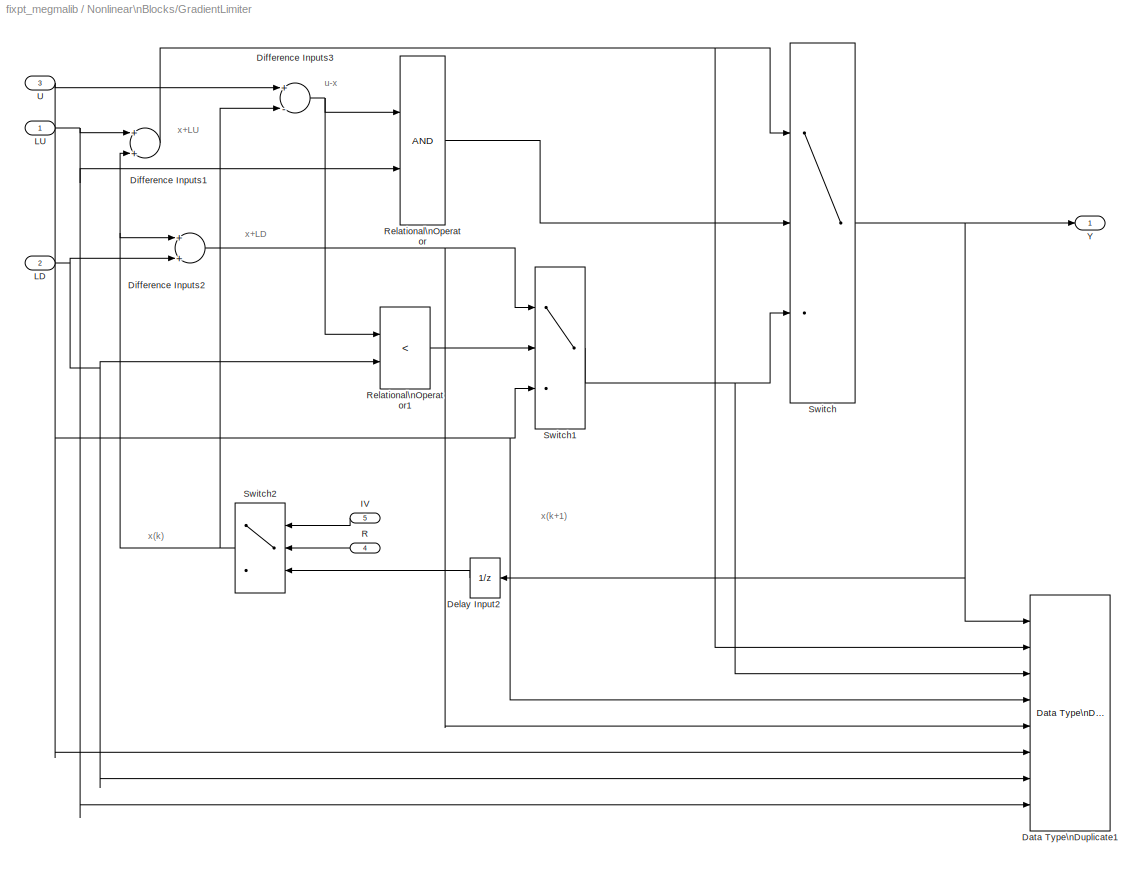
BLOCK [SubSystem] Nonlinear\nBlocks/GradientLimiter
  MaskDescription = Limit rising and falling rates of signals. The output value is the input rate limited by LD or LU
  MaskDisplay = plot([0.2 0.8],[.5 .5],[.5 .5],[0.2 0.8],0.1+0.8*[0 .25 .75 1],0.1+0.8*[.25 .25 .75 .75]);\ntext(0.6,0.4,'GRD')\nport_label('input',1,'LU')\nport_label('input',2,'LD')\nport_label('input',3,'u')\nport_label('output',1,'y')\nport_label('input',4,'R')\nport_label('input',5,'IV')
  MaskHelp = web(fpbhelp('gradientlimiter'));
  MaskIconFrame = on
  MaskIconOpaque = on
  MaskIconRotate = none
  MaskIconUnits = normalized
  MaskSelfModifiable = on
  MaskType = MEGMA GradientLimiter
  MinAlgLoopOccurrences = off
  Ports = [5, 1]
  PropExecContextAcrossSSBoundary = on
  RTWSystemCode = Auto
  TreatAsAtomicUnit = off
BLOCK [Reference] Nonlinear\nBlocks/GradientLimiter/Data Type\nDuplicate1  REF=simulink/Signal\nAttributes/Data Type\nDuplicate
  NumInputPorts = 8
  Ports = [8]
  SourceBlock = simulink/Signal\nAttributes/Data Type\nDuplicate
  SourceType = Data Type Duplicate
BLOCK [UnitDelay] Nonlinear\nBlocks/GradientLimiter/Delay Input2
  Description = \\nStore in Global RAM
BLOCK [Sum] Nonlinear\nBlocks/GradientLimiter/Difference Inputs1
  Description = \\nAdd in CPU
  InputSameDT = off
  OutDataType = BaseType
  OutDataTypeMode = Inherit via back propagation
  OutScaling = 1
  Ports = [2, 1]
  SaturateOnIntegerOverflow = off
BLOCK [Sum] Nonlinear\nBlocks/GradientLimiter/Difference Inputs2
  Description = \\nAdd in CPU
  InputSameDT = off
  OutDataType = BaseType
  OutDataTypeMode = Inherit via back propagation
  OutScaling = 1
  Ports = [2, 1]
  SaturateOnIntegerOverflow = off
BLOCK [Sum] Nonlinear\nBlocks/GradientLimiter/Difference Inputs3
  Description = \\nAdd in CPU
  InputSameDT = off
  Inputs = +-
  OutDataType = BaseType
  OutDataTypeMode = Inherit via back propagation
  OutScaling = 1
  Ports = [2, 1]
  SaturateOnIntegerOverflow = off
BLOCK [Inport] Nonlinear\nBlocks/GradientLimiter/IV
  IconDisplay = Port number
  LatchInput = off
  Port = 5
BLOCK [Inport] Nonlinear\nBlocks/GradientLimiter/LD
  IconDisplay = Port number
  LatchInput = off
  Port = 2
BLOCK [Inport] Nonlinear\nBlocks/GradientLimiter/LU
  IconDisplay = Port number
  LatchInput = off
BLOCK [Inport] Nonlinear\nBlocks/GradientLimiter/R
  IconDisplay = Port number
  LatchInput = off
  Port = 4
BLOCK [RelationalOperator] Nonlinear\nBlocks/GradientLimiter/Relational\nOperator
  InputSameDT = off
  LogicOutDataTypeMode = Specify via dialog
  ZeroCross = off
BLOCK [RelationalOperator] Nonlinear\nBlocks/GradientLimiter/Relational\nOperator1
  InputSameDT = off
  LogicOutDataTypeMode = Specify via dialog
  Operator = <
  ZeroCross = off
BLOCK [Switch] Nonlinear\nBlocks/GradientLimiter/Switch
  Criteria = u2 ~= 0
  InputSameDT = off
  OutDataTypeMode = Inherit via back propagation
  SaturateOnIntegerOverflow = off
  ZeroCross = off
BLOCK [Switch] Nonlinear\nBlocks/GradientLimiter/Switch1
  Criteria = u2 ~= 0
  InputSameDT = off
  OutDataTypeMode = Inherit via back propagation
  SaturateOnIntegerOverflow = off
  ZeroCross = off
BLOCK [Switch] Nonlinear\nBlocks/GradientLimiter/Switch2
  Criteria = u2 ~= 0
  InputSameDT = off
  SaturateOnIntegerOverflow = off
  ZeroCross = off
BLOCK [Inport] Nonlinear\nBlocks/GradientLimiter/U
  IconDisplay = Port number
  LatchInput = off
  Port = 3
BLOCK [Outport] Nonlinear\nBlocks/GradientLimiter/Y
  BusOutputAsStruct = off
  IconDisplay = Port number
  InitialOutput = 0
BLOCK [SubSystem] Nonlinear\nBlocks/Hysteresis_LSP_RSP
  MaskDescription = Falling edge and rising edge of the output value are atseparated switching points LSP and RSP
  MaskDisplay = plot([0 .65 .65],[.3 .3 .8],[.35 .35 1],[.3 .8 .8]);
  MaskHelp = web(fpbhelp('hysteresis_lsp_rsp'));
  MaskIconFrame = on
  MaskIconOpaque = off
  MaskIconRotate = none
  MaskIconUnits = normalized
  MaskSelfModifiable = on
  MaskType = MEGMA Hysteresis_LSP_RSP
  MinAlgLoopOccurrences = off
  Ports = [3, 1]
  PropExecContextAcrossSSBoundary = on
  RTWSystemCode = Auto
  TreatAsAtomicUnit = off
BLOCK [Constant] Nonlinear\nBlocks/Hysteresis_LSP_RSP/FixPt\nConstant
  ConRadixGroup = Best Precision: Vector-wise
  OutDataTypeMode = Inherit via back propagation
  OutScaling = 2^-14
BLOCK [Reference] Nonlinear\nBlocks/Hysteresis_LSP_RSP/FixPt\nData Type\nDuplicate  REF=simulink/Signal\nAttributes/Data Type\nDuplicate
  NumInputPorts = 7
  Ports = [7]
  SourceBlock = simulink/Signal\nAttributes/Data Type\nDuplicate
  SourceType = Data Type Duplicate
BLOCK [Reference] Nonlinear\nBlocks/Hysteresis_LSP_RSP/FixPt\nData Type\nDuplicate1  REF=simulink/Signal\nAttributes/Data Type\nDuplicate
  NumInputPorts = 3
  Ports = [3]
  SourceBlock = simulink/Signal\nAttributes/Data Type\nDuplicate
  SourceType = Data Type Duplicate
BLOCK [RelationalOperator] Nonlinear\nBlocks/Hysteresis_LSP_RSP/FixPt\nRelational\nOperator
  InputSameDT = off
  LogicOutDataTypeMode = Specify via dialog
  Operator = >
  ZeroCross = off
BLOCK [RelationalOperator] Nonlinear\nBlocks/Hysteresis_LSP_RSP/FixPt\nRelational\nOperator1
  InputSameDT = off
  LogicOutDataTypeMode = Specify via dialog
  Operator = <
  ZeroCross = off
BLOCK [Switch] Nonlinear\nBlocks/Hysteresis_LSP_RSP/FixPt\nSwitch
  InputSameDT = off
  OutDataTypeMode = Inherit via back propagation
  SaturateOnIntegerOverflow = off
  Threshold = 1
  ZeroCross = off
BLOCK [Switch] Nonlinear\nBlocks/Hysteresis_LSP_RSP/FixPt\nSwitch2
  InputSameDT = off
  OutDataTypeMode = Inherit via back propagation
  SaturateOnIntegerOverflow = off
  Threshold = 1
  ZeroCross = off
BLOCK [UnitDelay] Nonlinear\nBlocks/Hysteresis_LSP_RSP/FixPt\nUnit Delay
  SampleTime = -1
  X0 = 0.0
BLOCK [Ground] Nonlinear\nBlocks/Hysteresis_LSP_RSP/Ground
BLOCK [Inport] Nonlinear\nBlocks/Hysteresis_LSP_RSP/LSP
  IconDisplay = Port number
  LatchInput = off
BLOCK [Inport] Nonlinear\nBlocks/Hysteresis_LSP_RSP/RSP
  IconDisplay = Port number
  LatchInput = off
  Port = 3
BLOCK [Inport] Nonlinear\nBlocks/Hysteresis_LSP_RSP/u
  IconDisplay = Port number
  LatchInput = off
  Port = 2
BLOCK [Outport] Nonlinear\nBlocks/Hysteresis_LSP_RSP/y
  BusOutputAsStruct = off
  IconDisplay = Port number
BLOCK [SubSystem] Nonlinear\nBlocks/Limiter
  MaskDescription = Bound the range of the input. First evaluates the minimum of the input value and MX and then evaluates the maximum of this result and MN.
  MaskDisplay = plot([0.2 0.8],[.5 .5],[.5 .5],[0.2 0.8],0.1+0.8*[0 .25 .75 1],0.1+0.8*[.25 .25 .75 .75]);
  MaskHelp = web(fpbhelp('limiter'));
  MaskIconFrame = on
  MaskIconOpaque = off
  MaskIconRotate = none
  MaskIconUnits = normalized
  MaskSelfModifiable = on
  MaskType = MEGMA Limiter
  MinAlgLoopOccurrences = off
  Ports = [3, 1]
  PropExecContextAcrossSSBoundary = on
  RTWSystemCode = Auto
  TreatAsAtomicUnit = off
BLOCK [Inport] Nonlinear\nBlocks/Limiter/MN
  IconDisplay = Port number
  LatchInput = off
  Port = 2
BLOCK [Inport] Nonlinear\nBlocks/Limiter/MX
  IconDisplay = Port number
  LatchInput = off
BLOCK [Reference] Nonlinear\nBlocks/Limiter/Saturation\nDynamic  REF=simulink/Discontinuities/Saturation\nDynamic
  Ports = [3, 1]
  ShowPortLabels = on
  SourceBlock = simulink/Discontinuities/Saturation\nDynamic
  SourceType = Saturation Dynamic
BLOCK [Inport] Nonlinear\nBlocks/Limiter/u
  IconDisplay = Port number
  LatchInput = off
  Port = 3
BLOCK [Outport] Nonlinear\nBlocks/Limiter/y
  BusOutputAsStruct = off
  IconDisplay = Port number
BLOCK [MinMax] Nonlinear\nBlocks/Max
  Function = max
  InputSameDT = off
  OutDataTypeMode = Specify via dialog
  OutScaling = 2^-10
  Ports = [1, 1]
  SaturateOnIntegerOverflow = off
  ZeroCross = off
BLOCK [SubSystem] Nonlinear\nBlocks/MaxLogResetEnabled
  MaskDescription = The output value is the maxiimum value of all occurred input values u with respect to the initial value IV
  MaskDisplay = disp('MaxLog')
  MaskHelp = web(fpbhelp('maxlogresetenabled'));
  MaskIconFrame = on
  MaskIconOpaque = off
  MaskIconRotate = none
  MaskIconUnits = normalized
  MaskSelfModifiable = on
  MaskType = MEGMA MaxLogResetEnabled
  MinAlgLoopOccurrences = off
  Ports = [4, 1]
  PropExecContextAcrossSSBoundary = on
  RTWSystemCode = Auto
  TreatAsAtomicUnit = off
BLOCK [Reference] Nonlinear\nBlocks/MaxLogResetEnabled/Data Type\nDuplicate  REF=simulink/Signal\nAttributes/Data Type\nDuplicate
  NumInputPorts = 3
  Ports = [3]
  SourceBlock = simulink/Signal\nAttributes/Data Type\nDuplicate
  SourceType = Data Type Duplicate
BLOCK [Inport] Nonlinear\nBlocks/MaxLogResetEnabled/E
  IconDisplay = Port number
  LatchInput = off
  Port = 2
BLOCK [Inport] Nonlinear\nBlocks/MaxLogResetEnabled/IV
  IconDisplay = Port number
  LatchInput = off
  Port = 4
BLOCK [MinMax] Nonlinear\nBlocks/MaxLogResetEnabled/MinMax
  Function = max
  InputSameDT = off
  Inputs = 2
  LockScale = on
  OutDataType = uint(8)
  OutDataTypeMode = Inherit via back propagation
  OutScaling = 1
  Ports = [2, 1]
  SaturateOnIntegerOverflow = off
  ZeroCross = off
BLOCK [Inport] Nonlinear\nBlocks/MaxLogResetEnabled/R
  IconDisplay = Port number
  LatchInput = off
  Port = 3
BLOCK [Reference] Nonlinear\nBlocks/MaxLogResetEnabled/Unit Delay\nWith Preview\nEnabled\nResettable\nExternal RV  REF=simulink/Additional Math\n& Discrete/Additional\nDiscrete/Unit Delay\nWith Preview\nEnabled\nResettable\nExternal RV
  Ports = [4, 2]
  ShowPortLabels = on
  SourceBlock = simulink/Additional Math\n& Discrete/Additional\nDiscrete/Unit Delay\nWith Preview\nEnabled\nResettable\nExternal RV
  SourceType = Unit Delay With Preview Enabled Resettable External RV
  tsamp = -1
  vinit = 0.0
BLOCK [Inport] Nonlinear\nBlocks/MaxLogResetEnabled/u
  IconDisplay = Port number
  LatchInput = off
BLOCK [Outport] Nonlinear\nBlocks/MaxLogResetEnabled/y
  BusOutputAsStruct = off
  IconDisplay = Port number
BLOCK [SubSystem] Nonlinear\nBlocks/MeanValue
  MaskDescription = A discrete time, fixed point realization of an average
  MaskDisplay = plot([0.2 0.4],[0.8 0.8],[0.2 0.28],[0.8 0.7],[0.28 0.2],[0.7 0.6],[0.2 0.4], [0.6 0.6])\ntext(0.45,0.7,'Uk')\nplot([0.15 0.5],[0.55 0.55])\ntext(0.3,0.45,'K')
  MaskEnableString = on
  MaskHelp = web(fpbhelp('meanvalue'));
  MaskIconFrame = on
  MaskIconOpaque = off
  MaskIconRotate = none
  MaskIconUnits = normalized
  MaskPromptString = Number of input sample to average
  MaskSelfModifiable = on
  MaskStyleString = edit
  MaskToolTipString = on
  MaskTunableValueString = on
  MaskType = MEGMA Mean
  MaskValueString = 4
  MaskVariables = nSample=@1;
  MaskVisibilityString = on
  MinAlgLoopOccurrences = off
  Ports = [4, 1]
  PropExecContextAcrossSSBoundary = on
  RTWSystemCode = Auto
  TreatAsAtomicUnit = off
BLOCK [Inport] Nonlinear\nBlocks/MeanValue/E
  IconDisplay = Port number
  LatchInput = off
  Port = 2
BLOCK [Reference] Nonlinear\nBlocks/MeanValue/FixPt\nData Type\nDuplicate  REF=simulink/Signal\nAttributes/Data Type\nDuplicate
  NumInputPorts = 3
  Ports = [3]
  SourceBlock = simulink/Signal\nAttributes/Data Type\nDuplicate
  SourceType = Data Type Duplicate
BLOCK [Reference] Nonlinear\nBlocks/MeanValue/FixPt\nData Type\nPropagation  REF=simulink/Signal\nAttributes/Data Type\nPropagation
  BiasAdd = 0
  BiasBase = Bias1+Bias2
  BiasMult = 1
  IfRefDouble = double
  IfRefSingle = single
  IsSigned = IsSigned1
  NumBitsAdd = 0
  NumBitsAllowFinal = 1:128
  NumBitsBase = NumBits1
  NumBitsMult = 2
  Ports = [3]
  PropDataType = sfix(16)
  PropDataTypeMode = Inherit via propagation rule
  PropScaling = 2^-10
  PropScalingMode = Inherit via propagation rule
  SlopeAdd = 0
  SlopeBase = Slope1
  SlopeMult = 1
  SourceBlock = simulink/Signal\nAttributes/Data Type\nPropagation
  SourceType = Data Type Propagation
  ValuesUsedBestPrec = [5 -7]
BLOCK [Gain] Nonlinear\nBlocks/MeanValue/FixPt\nGain
  Gain = 1/nSample
  OutDataTypeMode = Inherit via back propagation
  OutScaling = 2^-10
  ParameterDataType = ufix(8)
  ParameterDataTypeMode = Inherit via internal rule
  ParameterScaling = 2^-1
  ParameterScalingMode = Use specified scaling
  SaturateOnIntegerOverflow = off
BLOCK [Sum] Nonlinear\nBlocks/MeanValue/FixPt\nSum
  InputSameDT = off
  Inputs = +
  OutDataTypeMode = Inherit via back propagation
  OutScaling = 2^-10
  Ports = [1, 1]
  SaturateOnIntegerOverflow = off
BLOCK [Inport] Nonlinear\nBlocks/MeanValue/IV
  IconDisplay = Port number
  LatchInput = off
  Port = 4
BLOCK [Inport] Nonlinear\nBlocks/MeanValue/R
  IconDisplay = Port number
  LatchInput = off
  Port = 3
BLOCK [SubSystem] Nonlinear\nBlocks/MeanValue/ResetEnabledTappedDelay
  MaskDescription = Resetable Enabled State\nOutput\n  If R % Reset\n     Xnew = IV\n  elseif E % Enabled\n     Xnew = Xen\n  else\n     Xnew = Xold % Stays the same\n  end\nUpdate\n    Xold = Xnew
  MaskDisplay = fprintf('Tapped Delay');
  MaskIconFrame = on
  MaskIconOpaque = off
  MaskIconRotate = none
  MaskIconUnits = normalized
  MaskType = Fixed-Point Reset Enabled State
  MinAlgLoopOccurrences = off
  Ports = [4, 1]
  PropExecContextAcrossSSBoundary = on
  RTWSystemCode = Auto
  TreatAsAtomicUnit = off
BLOCK [Inport] Nonlinear\nBlocks/MeanValue/ResetEnabledTappedDelay/E
  IconDisplay = Port number
  LatchInput = off
BLOCK [Reference] Nonlinear\nBlocks/MeanValue/ResetEnabledTappedDelay/FixPt\nData Type\nDuplicate1  REF=simulink/Signal\nAttributes/Data Type\nDuplicate
  NumInputPorts = 5
  Ports = [5]
  SourceBlock = simulink/Signal\nAttributes/Data Type\nDuplicate
  SourceType = Data Type Duplicate
BLOCK [Switch] Nonlinear\nBlocks/MeanValue/ResetEnabledTappedDelay/FixPt\nSwitch1
  InputSameDT = off
  OutDataTypeMode = Inherit via back propagation
  SaturateOnIntegerOverflow = off
  Threshold = 1
  ZeroCross = off
BLOCK [Switch] Nonlinear\nBlocks/MeanValue/ResetEnabledTappedDelay/FixPt\nSwitch3
  InputSameDT = off
  OutDataTypeMode = Inherit via back propagation
  SaturateOnIntegerOverflow = off
  Threshold = 1
  ZeroCross = off
BLOCK [UnitDelay] Nonlinear\nBlocks/MeanValue/ResetEnabledTappedDelay/FixPt\nUnit Delay1
  SampleTime = -1
  X0 = 0.0
BLOCK [Inport] Nonlinear\nBlocks/MeanValue/ResetEnabledTappedDelay/IV
  IconDisplay = Port number
  LatchInput = off
  Port = 3
BLOCK [Mux] Nonlinear\nBlocks/MeanValue/ResetEnabledTappedDelay/Mux
  DisplayOption = bar
  Inputs = 2
  Ports = [2, 1]
BLOCK [Inport] Nonlinear\nBlocks/MeanValue/ResetEnabledTappedDelay/R
  IconDisplay = Port number
  LatchInput = off
  Port = 2
BLOCK [Selector] Nonlinear\nBlocks/MeanValue/ResetEnabledTappedDelay/Selector
  Elements = 1:(nSample-1)
  InputPortWidth = nSample
  Ports = [1, 1]
BLOCK [Outport] Nonlinear\nBlocks/MeanValue/ResetEnabledTappedDelay/Xnew
  BusOutputAsStruct = off
  IconDisplay = Port number
BLOCK [Inport] Nonlinear\nBlocks/MeanValue/ResetEnabledTappedDelay/u
  IconDisplay = Port number
  LatchInput = off
  Port = 4
BLOCK [Outport] Nonlinear\nBlocks/MeanValue/Y
  BusOutputAsStruct = off
  IconDisplay = Port number
  InitialOutput = 0
BLOCK [Inport] Nonlinear\nBlocks/MeanValue/u
  IconDisplay = Port number
  LatchInput = off
BLOCK [MinMax] Nonlinear\nBlocks/Min
  Function = min
  InputSameDT = off
  OutDataTypeMode = Specify via dialog
  OutScaling = 2^-10
  Ports = [1, 1]
  SaturateOnIntegerOverflow = off
  ZeroCross = off
BLOCK [SubSystem] Nonlinear\nBlocks/MinLogResetEnabled
  MaskDescription = The output value is the minimum value of all occurred input values u with respect to the initial value IV
  MaskDisplay = disp('MinLog')
  MaskHelp = web(fpbhelp('minlogresetenabled'));
  MaskIconFrame = on
  MaskIconOpaque = off
  MaskIconRotate = none
  MaskIconUnits = normalized
  MaskSelfModifiable = on
  MaskType = MEGMA MinLogResetEnabled
  MinAlgLoopOccurrences = off
  Ports = [4, 1]
  PropExecContextAcrossSSBoundary = on
  RTWSystemCode = Auto
  TreatAsAtomicUnit = off
BLOCK [Reference] Nonlinear\nBlocks/MinLogResetEnabled/Data Type\nDuplicate  REF=simulink/Signal\nAttributes/Data Type\nDuplicate
  NumInputPorts = 3
  Ports = [3]
  SourceBlock = simulink/Signal\nAttributes/Data Type\nDuplicate
  SourceType = Data Type Duplicate
BLOCK [Inport] Nonlinear\nBlocks/MinLogResetEnabled/E
  IconDisplay = Port number
  LatchInput = off
  Port = 2
BLOCK [Inport] Nonlinear\nBlocks/MinLogResetEnabled/IV
  IconDisplay = Port number
  LatchInput = off
  Port = 4
BLOCK [MinMax] Nonlinear\nBlocks/MinLogResetEnabled/MinMax
  Function = min
  InputSameDT = off
  Inputs = 2
  LockScale = on
  OutDataType = uint(8)
  OutDataTypeMode = Inherit via back propagation
  OutScaling = 1
  Ports = [2, 1]
  SaturateOnIntegerOverflow = off
  ZeroCross = off
BLOCK [Inport] Nonlinear\nBlocks/MinLogResetEnabled/R
  IconDisplay = Port number
  LatchInput = off
  Port = 3
BLOCK [Reference] Nonlinear\nBlocks/MinLogResetEnabled/Unit Delay\nWith Preview\nEnabled\nResettable\nExternal RV  REF=simulink/Additional Math\n& Discrete/Additional\nDiscrete/Unit Delay\nWith Preview\nEnabled\nResettable\nExternal RV
  Ports = [4, 2]
  ShowPortLabels = on
  SourceBlock = simulink/Additional Math\n& Discrete/Additional\nDiscrete/Unit Delay\nWith Preview\nEnabled\nResettable\nExternal RV
  SourceType = Unit Delay With Preview Enabled Resettable External RV
  tsamp = -1
  vinit = 0.0
BLOCK [Inport] Nonlinear\nBlocks/MinLogResetEnabled/u
  IconDisplay = Port number
  LatchInput = off
BLOCK [Outport] Nonlinear\nBlocks/MinLogResetEnabled/y
  BusOutputAsStruct = off
  IconDisplay = Port number
BLOCK [Signum] Nonlinear\nBlocks/Sign
  ZeroCross = off
BLOCK [SubSystem] Parameter and\nConstant
  MaskDisplay = disp('Parameter and \\n Constant')
  MaskIconFrame = on
  MaskIconOpaque = on
  MaskIconRotate = none
  MaskIconUnits = autoscale
  MaskType = ParameterAndConstant
  MinAlgLoopOccurrences = off
  Ports = []
  PropExecContextAcrossSSBoundary = on
  RTWSystemCode = Auto
  TreatAsAtomicUnit = off
BLOCK [Constant] Parameter and\nConstant/ConstReal
  ConRadixGroup = Best Precision: Vector-wise
  OutDataTypeMode = Specify via dialog
  OutScaling = 2^-10
  Value = 0.0
BLOCK [Lookup] Parameter and\nConstant/Parameter1D\nIndex
  DialogController = Simulink.DDGSource
  InputValues = -5:5
  LookUpMeth = Use Input Below
  OutDataTypeMode = Specify via dialog
  OutScaling = 2^-10
  OutputValues = tanh([-5:5])
  SaturateOnIntegerOverflow = off
BLOCK [Lookup] Parameter and\nConstant/Parameter1D\nInterpolation
  DialogController = Simulink.DDGSource
  InputValues = -5:5
  LookUpMeth = Interpolation-Use End Values
  OutDataTypeMode = Specify via dialog
  OutScaling = 2^-10
  OutputValues = tanh([-5:5])
  SaturateOnIntegerOverflow = off
BLOCK [Lookup2D] Parameter and\nConstant/Parameter2D\nIndex
  ColumnIndex = [1:3]
  DialogController = Simulink.DDGSource
  InputSameDT = off
  LookUpMeth = Use Input Below
  OutDataTypeMode = Specify via dialog
  OutScaling = 2^-10
  OutputValues = [4 5 6;16 19 20;10 18 23]
  RowIndex = [1:3]
  SaturateOnIntegerOverflow = off
BLOCK [Lookup2D] Parameter and\nConstant/Parameter2D\nInterpolation
  ColumnIndex = [1:3]
  DialogController = Simulink.DDGSource
  InputSameDT = off
  LookUpMeth = Interpolation-Use End Values
  OutDataTypeMode = Specify via dialog
  OutScaling = 2^-10
  OutputValues = [4 5 6;16 19 20;10 18 23]
  RowIndex = [1:3]
  SaturateOnIntegerOverflow = off
BLOCK [SubSystem] Signal path\nSwitches
  MaskDisplay = disp('Signal path \\n Switches')
  MaskIconFrame = on
  MaskIconOpaque = on
  MaskIconRotate = none
  MaskIconUnits = autoscale
  MaskType = Switches
  MinAlgLoopOccurrences = off
  Ports = []
  PropExecContextAcrossSSBoundary = on
  RTWSystemCode = Auto
  TreatAsAtomicUnit = off
BLOCK [MultiPortSwitch] Signal path\nSwitches/MultiPort\nSwitch
  InputSameDT = off
  Inputs = 3
  Ports = [4, 1]
  SaturateOnIntegerOverflow = off
BLOCK [Switch] Signal path\nSwitches/Switch
  InputSameDT = off
  SaturateOnIntegerOverflow = off
  Threshold = 1
  ZeroCross = off
ANNOTATION (root): <copyright redacted>
ANNOTATION (root): Example implementation of MSR MEGMA Automotive Library\nthat supports both floating-point and fixed-point.
ANNOTATION Arthimetic\nOperators: <copyright redacted>
ANNOTATION Arthimetic\nOperators: Example implementation of MSR MEGMA Automotive Library\nthat supports both floating-point and fixed-point.
ANNOTATION Comparison\nOperators: <copyright redacted>
ANNOTATION Comparison\nOperators: Example implementation of MSR MEGMA Automotive Library\nthat supports both floating-point and fixed-point.
ANNOTATION Counters\nand Timers: <copyright redacted>
ANNOTATION Counters\nand Timers: Example implementation of MSR MEGMA Automotive Library\nthat supports both floating-point and fixed-point.
ANNOTATION Delay\nBlocks: <copyright redacted>
ANNOTATION Delay\nBlocks: Example implementation of MSR MEGMA Automotive Library\nthat supports both floating-point and fixed-point.
ANNOTATION Integrators: <copyright redacted>
ANNOTATION Integrators: Example implementation of MSR MEGMA Automotive Library\nthat supports both floating-point and fixed-point.
ANNOTATION Logical\nOperators: <copyright redacted>
ANNOTATION Logical\nOperators: Example implementation of MSR MEGMA Automotive Library\nthat supports both floating-point and fixed-point.
ANNOTATION Low and\nHighpass: <copyright redacted>
ANNOTATION Low and\nHighpass: Example implementation of MSR MEGMA Automotive Library\nthat supports both floating-point and fixed-point.
ANNOTATION Mathematical\nFunctions: <copyright redacted>
ANNOTATION Mathematical\nFunctions: Example implementation of MSR MEGMA Automotive Library\nthat supports both floating-point and fixed-point.
ANNOTATION Memory\nBlocks: <copyright redacted>
ANNOTATION Memory\nBlocks: Example implementation of MSR MEGMA Automotive Library\nthat supports both floating-point and fixed-point.
ANNOTATION Memory\nBlocks/DeltaOneStep: IV
ANNOTATION Memory\nBlocks/EdgeBi: x
ANNOTATION Memory\nBlocks/EdgeFalling: x
ANNOTATION Memory\nBlocks/EdgeRising: x
ANNOTATION Memory\nBlocks/SampleAndHold\nResetEnabled: x
ANNOTATION Nonlinear\nBlocks: <copyright redacted>
ANNOTATION Nonlinear\nBlocks: Example implementation of MSR MEGMA Automotive Library\nthat supports both floating-point and fixed-point.
ANNOTATION Nonlinear\nBlocks/GradientLimiter: u-x
ANNOTATION Nonlinear\nBlocks/GradientLimiter: x(k)
ANNOTATION Nonlinear\nBlocks/GradientLimiter: x(k+1)
ANNOTATION Nonlinear\nBlocks/GradientLimiter: x+LD
ANNOTATION Nonlinear\nBlocks/GradientLimiter: x+LU
ANNOTATION Parameter and\nConstant: <copyright redacted>
ANNOTATION Parameter and\nConstant: Example implementation of MSR MEGMA Automotive Library\nthat supports both floating-point and fixed-point.
ANNOTATION Signal path\nSwitches: <copyright redacted>
ANNOTATION Signal path\nSwitches: Example implementation of MSR MEGMA Automotive Library\nthat supports both floating-point and fixed-point.
LINE Comparison\nOperators/Closed Interval/Interval Test\nDynamic:1 -> Comparison\nOperators/Closed Interval/y:1
LINE Comparison\nOperators/Closed Interval/MN:1 -> Comparison\nOperators/Closed Interval/Interval Test\nDynamic:3
LINE Comparison\nOperators/Closed Interval/MX:1 -> Comparison\nOperators/Closed Interval/Interval Test\nDynamic:1
LINE Comparison\nOperators/Closed Interval/u:1 -> Comparison\nOperators/Closed Interval/Interval Test\nDynamic:2
LINE Comparison\nOperators/Left Open Interval/Interval Test\nDynamic:1 -> Comparison\nOperators/Left Open Interval/y:1
LINE Comparison\nOperators/Left Open Interval/MN:1 -> Comparison\nOperators/Left Open Interval/Interval Test\nDynamic:3
LINE Comparison\nOperators/Left Open Interval/MX:1 -> Comparison\nOperators/Left Open Interval/Interval Test\nDynamic:1
LINE Comparison\nOperators/Left Open Interval/u:1 -> Comparison\nOperators/Left Open Interval/Interval Test\nDynamic:2
LINE Comparison\nOperators/Open Interval/Interval Test\nDynamic:1 -> Comparison\nOperators/Open Interval/y:1
LINE Comparison\nOperators/Open Interval/MN:1 -> Comparison\nOperators/Open Interval/Interval Test\nDynamic:3
LINE Comparison\nOperators/Open Interval/MX:1 -> Comparison\nOperators/Open Interval/Interval Test\nDynamic:1
LINE Comparison\nOperators/Open Interval/u:1 -> Comparison\nOperators/Open Interval/Interval Test\nDynamic:2
LINE Comparison\nOperators/Right Open Interval/Interval Test\nDynamic:1 -> Comparison\nOperators/Right Open Interval/y:1
LINE Comparison\nOperators/Right Open Interval/MN:1 -> Comparison\nOperators/Right Open Interval/Interval Test\nDynamic:3
LINE Comparison\nOperators/Right Open Interval/MX:1 -> Comparison\nOperators/Right Open Interval/Interval Test\nDynamic:1
LINE Comparison\nOperators/Right Open Interval/u:1 -> Comparison\nOperators/Right Open Interval/Interval Test\nDynamic:2
LINE Counters\nand Timers/CountDown\nResetEnabled/Decrement\nTo Zero:1 -> Counters\nand Timers/CountDown\nResetEnabled/ResetEnabledState:4
LINE Counters\nand Timers/CountDown\nResetEnabled/E:1 -> Counters\nand Timers/CountDown\nResetEnabled/ResetEnabledState:1
LINE Counters\nand Timers/CountDown\nResetEnabled/IV:1 -> Counters\nand Timers/CountDown\nResetEnabled/ResetEnabledState:3
LINE Counters\nand Timers/CountDown\nResetEnabled/Positive:1 -> Counters\nand Timers/CountDown\nResetEnabled/y:1
LINE Counters\nand Timers/CountDown\nResetEnabled/R:1 -> Counters\nand Timers/CountDown\nResetEnabled/ResetEnabledState:2
LINE Counters\nand Timers/CountDown\nResetEnabled/ResetEnabledState/E:1 -> Counters\nand Timers/CountDown\nResetEnabled/ResetEnabledState/Unit Delay\nWith Preview\nEnabled\nResettable\nExternal RV:2
LINE Counters\nand Timers/CountDown\nResetEnabled/ResetEnabledState/IV:1 -> Counters\nand Timers/CountDown\nResetEnabled/ResetEnabledState/Unit Delay\nWith Preview\nEnabled\nResettable\nExternal RV:4
LINE Counters\nand Timers/CountDown\nResetEnabled/ResetEnabledState/R:1 -> Counters\nand Timers/CountDown\nResetEnabled/ResetEnabledState/Unit Delay\nWith Preview\nEnabled\nResettable\nExternal RV:3
LINE Counters\nand Timers/CountDown\nResetEnabled/ResetEnabledState/Unit Delay\nWith Preview\nEnabled\nResettable\nExternal RV:1 -> Counters\nand Timers/CountDown\nResetEnabled/ResetEnabledState/Xnew:1
LINE Counters\nand Timers/CountDown\nResetEnabled/ResetEnabledState/Unit Delay\nWith Preview\nEnabled\nResettable\nExternal RV:2 -> Counters\nand Timers/CountDown\nResetEnabled/ResetEnabledState/Xold:1
LINE Counters\nand Timers/CountDown\nResetEnabled/ResetEnabledState/Xcalc:1 -> Counters\nand Timers/CountDown\nResetEnabled/ResetEnabledState/Unit Delay\nWith Preview\nEnabled\nResettable\nExternal RV:1
LINE Counters\nand Timers/CountDown\nResetEnabled/ResetEnabledState:1 -> Counters\nand Timers/CountDown\nResetEnabled/Positive:1
LINE Counters\nand Timers/CountDown\nResetEnabled/ResetEnabledState:2 -> Counters\nand Timers/CountDown\nResetEnabled/Decrement\nTo Zero:1
LINE Counters\nand Timers/CountDown\nResetTriggerEnabled/Decrement\nTo Zero:1 -> Counters\nand Timers/CountDown\nResetTriggerEnabled/ResetEnabledState:4
LINE Counters\nand Timers/CountDown\nResetTriggerEnabled/Detect\nIncrease:1 -> Counters\nand Timers/CountDown\nResetTriggerEnabled/ResetEnabledState:2
LINE Counters\nand Timers/CountDown\nResetTriggerEnabled/E:1 -> Counters\nand Timers/CountDown\nResetTriggerEnabled/ResetEnabledState:1
LINE Counters\nand Timers/CountDown\nResetTriggerEnabled/IV:1 -> Counters\nand Timers/CountDown\nResetTriggerEnabled/ResetEnabledState:3
LINE Counters\nand Timers/CountDown\nResetTriggerEnabled/Positive:1 -> Counters\nand Timers/CountDown\nResetTriggerEnabled/y:1
LINE Counters\nand Timers/CountDown\nResetTriggerEnabled/RT:1 -> Counters\nand Timers/CountDown\nResetTriggerEnabled/Detect\nIncrease:1
LINE Counters\nand Timers/CountDown\nResetTriggerEnabled/ResetEnabledState/E:1 -> Counters\nand Timers/CountDown\nResetTriggerEnabled/ResetEnabledState/Unit Delay\nWith Preview\nEnabled\nResettable\nExternal RV:2
LINE Counters\nand Timers/CountDown\nResetTriggerEnabled/ResetEnabledState/IV:1 -> Counters\nand Timers/CountDown\nResetTriggerEnabled/ResetEnabledState/Unit Delay\nWith Preview\nEnabled\nResettable\nExternal RV:4
LINE Counters\nand Timers/CountDown\nResetTriggerEnabled/ResetEnabledState/R:1 -> Counters\nand Timers/CountDown\nResetTriggerEnabled/ResetEnabledState/Unit Delay\nWith Preview\nEnabled\nResettable\nExternal RV:3
LINE Counters\nand Timers/CountDown\nResetTriggerEnabled/ResetEnabledState/Unit Delay\nWith Preview\nEnabled\nResettable\nExternal RV:1 -> Counters\nand Timers/CountDown\nResetTriggerEnabled/ResetEnabledState/Xnew:1
LINE Counters\nand Timers/CountDown\nResetTriggerEnabled/ResetEnabledState/Unit Delay\nWith Preview\nEnabled\nResettable\nExternal RV:2 -> Counters\nand Timers/CountDown\nResetTriggerEnabled/ResetEnabledState/Xold:1
LINE Counters\nand Timers/CountDown\nResetTriggerEnabled/ResetEnabledState/Xcalc:1 -> Counters\nand Timers/CountDown\nResetTriggerEnabled/ResetEnabledState/Unit Delay\nWith Preview\nEnabled\nResettable\nExternal RV:1
LINE Counters\nand Timers/CountDown\nResetTriggerEnabled/ResetEnabledState:1 -> Counters\nand Timers/CountDown\nResetTriggerEnabled/Positive:1
LINE Counters\nand Timers/CountDown\nResetTriggerEnabled/ResetEnabledState:2 -> Counters\nand Timers/CountDown\nResetTriggerEnabled/Decrement\nTo Zero:1
LINE Counters\nand Timers/Counter\nResetEnabled/E:1 -> Counters\nand Timers/Counter\nResetEnabled/ResetEnabledState:1
NET Counters\nand Timers/Counter\nResetEnabled/Ground3:1 -> Counters\nand Timers/Counter\nResetEnabled/ResetEnabledState:3, Counters\nand Timers/Counter\nResetEnabled/Set Ground\nData Type:3
NET Counters\nand Timers/Counter\nResetEnabled/Ground4:1 -> Counters\nand Timers/Counter\nResetEnabled/Set Ground\nData Type:1, Counters\nand Timers/Counter\nResetEnabled/Set Ground\nData Type:2
LINE Counters\nand Timers/Counter\nResetEnabled/Increment\nReal World:1 -> Counters\nand Timers/Counter\nResetEnabled/ResetEnabledState:4
LINE Counters\nand Timers/Counter\nResetEnabled/R:1 -> Counters\nand Timers/Counter\nResetEnabled/ResetEnabledState:2
LINE Counters\nand Timers/Counter\nResetEnabled/ResetEnabledState/E:1 -> Counters\nand Timers/Counter\nResetEnabled/ResetEnabledState/Unit Delay\nWith Preview\nEnabled\nResettable\nExternal RV:2
LINE Counters\nand Timers/Counter\nResetEnabled/ResetEnabledState/IV:1 -> Counters\nand Timers/Counter\nResetEnabled/ResetEnabledState/Unit Delay\nWith Preview\nEnabled\nResettable\nExternal RV:4
LINE Counters\nand Timers/Counter\nResetEnabled/ResetEnabledState/R:1 -> Counters\nand Timers/Counter\nResetEnabled/ResetEnabledState/Unit Delay\nWith Preview\nEnabled\nResettable\nExternal RV:3
LINE Counters\nand Timers/Counter\nResetEnabled/ResetEnabledState/Unit Delay\nWith Preview\nEnabled\nResettable\nExternal RV:1 -> Counters\nand Timers/Counter\nResetEnabled/ResetEnabledState/Xnew:1
LINE Counters\nand Timers/Counter\nResetEnabled/ResetEnabledState/Unit Delay\nWith Preview\nEnabled\nResettable\nExternal RV:2 -> Counters\nand Timers/Counter\nResetEnabled/ResetEnabledState/Xold:1
LINE Counters\nand Timers/Counter\nResetEnabled/ResetEnabledState/Xcalc:1 -> Counters\nand Timers/Counter\nResetEnabled/ResetEnabledState/Unit Delay\nWith Preview\nEnabled\nResettable\nExternal RV:1
LINE Counters\nand Timers/Counter\nResetEnabled/ResetEnabledState:1 -> Counters\nand Timers/Counter\nResetEnabled/y:1
LINE Counters\nand Timers/Counter\nResetEnabled/ResetEnabledState:2 -> Counters\nand Timers/Counter\nResetEnabled/Increment\nReal World:1
LINE Counters\nand Timers/Counter\nResetTriggerEnabled/Detect\nIncrease:1 -> Counters\nand Timers/Counter\nResetTriggerEnabled/ResetEnabledState:2
LINE Counters\nand Timers/Counter\nResetTriggerEnabled/E:1 -> Counters\nand Timers/Counter\nResetTriggerEnabled/ResetEnabledState:1
NET Counters\nand Timers/Counter\nResetTriggerEnabled/Ground1:1 -> Counters\nand Timers/Counter\nResetTriggerEnabled/ResetEnabledState:3, Counters\nand Timers/Counter\nResetTriggerEnabled/Set Ground\nData Type:3
NET Counters\nand Timers/Counter\nResetTriggerEnabled/Ground2:1 -> Counters\nand Timers/Counter\nResetTriggerEnabled/Set Ground\nData Type:1, Counters\nand Timers/Counter\nResetTriggerEnabled/Set Ground\nData Type:2
LINE Counters\nand Timers/Counter\nResetTriggerEnabled/Increment\nReal World:1 -> Counters\nand Timers/Counter\nResetTriggerEnabled/ResetEnabledState:4
LINE Counters\nand Timers/Counter\nResetTriggerEnabled/RT:1 -> Counters\nand Timers/Counter\nResetTriggerEnabled/Detect\nIncrease:1
LINE Counters\nand Timers/Counter\nResetTriggerEnabled/ResetEnabledState/E:1 -> Counters\nand Timers/Counter\nResetTriggerEnabled/ResetEnabledState/Unit Delay\nWith Preview\nEnabled\nResettable\nExternal RV:2
LINE Counters\nand Timers/Counter\nResetTriggerEnabled/ResetEnabledState/IV:1 -> Counters\nand Timers/Counter\nResetTriggerEnabled/ResetEnabledState/Unit Delay\nWith Preview\nEnabled\nResettable\nExternal RV:4
LINE Counters\nand Timers/Counter\nResetTriggerEnabled/ResetEnabledState/R:1 -> Counters\nand Timers/Counter\nResetTriggerEnabled/ResetEnabledState/Unit Delay\nWith Preview\nEnabled\nResettable\nExternal RV:3
LINE Counters\nand Timers/Counter\nResetTriggerEnabled/ResetEnabledState/Unit Delay\nWith Preview\nEnabled\nResettable\nExternal RV:1 -> Counters\nand Timers/Counter\nResetTriggerEnabled/ResetEnabledState/Xnew:1
LINE Counters\nand Timers/Counter\nResetTriggerEnabled/ResetEnabledState/Unit Delay\nWith Preview\nEnabled\nResettable\nExternal RV:2 -> Counters\nand Timers/Counter\nResetTriggerEnabled/ResetEnabledState/Xold:1
LINE Counters\nand Timers/Counter\nResetTriggerEnabled/ResetEnabledState/Xcalc:1 -> Counters\nand Timers/Counter\nResetTriggerEnabled/ResetEnabledState/Unit Delay\nWith Preview\nEnabled\nResettable\nExternal RV:1
LINE Counters\nand Timers/Counter\nResetTriggerEnabled/ResetEnabledState:1 -> Counters\nand Timers/Counter\nResetTriggerEnabled/y:1
LINE Counters\nand Timers/Counter\nResetTriggerEnabled/ResetEnabledState:2 -> Counters\nand Timers/Counter\nResetTriggerEnabled/Increment\nReal World:1
LINE Counters\nand Timers/StopWatch\nResetEnabled/E:1 -> Counters\nand Timers/StopWatch\nResetEnabled/ResetEnabledState:1
LINE Counters\nand Timers/StopWatch\nResetEnabled/FixPt\nSample Time\nMath:1 -> Counters\nand Timers/StopWatch\nResetEnabled/y:1
NET Counters\nand Timers/StopWatch\nResetEnabled/Ground3:1 -> Counters\nand Timers/StopWatch\nResetEnabled/ResetEnabledState:3, Counters\nand Timers/StopWatch\nResetEnabled/Set Ground\nData Type:3
NET Counters\nand Timers/StopWatch\nResetEnabled/Ground4:1 -> Counters\nand Timers/StopWatch\nResetEnabled/Set Ground\nData Type:1, Counters\nand Timers/StopWatch\nResetEnabled/Set Ground\nData Type:2
LINE Counters\nand Timers/StopWatch\nResetEnabled/Increment\nReal World:1 -> Counters\nand Timers/StopWatch\nResetEnabled/ResetEnabledState:4
LINE Counters\nand Timers/StopWatch\nResetEnabled/R:1 -> Counters\nand Timers/StopWatch\nResetEnabled/ResetEnabledState:2
LINE Counters\nand Timers/StopWatch\nResetEnabled/ResetEnabledState/E:1 -> Counters\nand Timers/StopWatch\nResetEnabled/ResetEnabledState/Unit Delay\nWith Preview\nEnabled\nResettable\nExternal RV:2
LINE Counters\nand Timers/StopWatch\nResetEnabled/ResetEnabledState/IV:1 -> Counters\nand Timers/StopWatch\nResetEnabled/ResetEnabledState/Unit Delay\nWith Preview\nEnabled\nResettable\nExternal RV:4
LINE Counters\nand Timers/StopWatch\nResetEnabled/ResetEnabledState/R:1 -> Counters\nand Timers/StopWatch\nResetEnabled/ResetEnabledState/Unit Delay\nWith Preview\nEnabled\nResettable\nExternal RV:3
LINE Counters\nand Timers/StopWatch\nResetEnabled/ResetEnabledState/Unit Delay\nWith Preview\nEnabled\nResettable\nExternal RV:1 -> Counters\nand Timers/StopWatch\nResetEnabled/ResetEnabledState/Xnew:1
LINE Counters\nand Timers/StopWatch\nResetEnabled/ResetEnabledState/Unit Delay\nWith Preview\nEnabled\nResettable\nExternal RV:2 -> Counters\nand Timers/StopWatch\nResetEnabled/ResetEnabledState/Xold:1
LINE Counters\nand Timers/StopWatch\nResetEnabled/ResetEnabledState/Xcalc:1 -> Counters\nand Timers/StopWatch\nResetEnabled/ResetEnabledState/Unit Delay\nWith Preview\nEnabled\nResettable\nExternal RV:1
LINE Counters\nand Timers/StopWatch\nResetEnabled/ResetEnabledState:1 -> Counters\nand Timers/StopWatch\nResetEnabled/FixPt\nSample Time\nMath:1
LINE Counters\nand Timers/StopWatch\nResetEnabled/ResetEnabledState:2 -> Counters\nand Timers/StopWatch\nResetEnabled/Increment\nReal World:1
LINE Counters\nand Timers/StopWatch\nResetTriggerEnabled/Detect\nIncrease:1 -> Counters\nand Timers/StopWatch\nResetTriggerEnabled/ResetEnabledState:2
LINE Counters\nand Timers/StopWatch\nResetTriggerEnabled/E:1 -> Counters\nand Timers/StopWatch\nResetTriggerEnabled/ResetEnabledState:1
LINE Counters\nand Timers/StopWatch\nResetTriggerEnabled/FixPt\nSample Time\nMath:1 -> Counters\nand Timers/StopWatch\nResetTriggerEnabled/y:1
NET Counters\nand Timers/StopWatch\nResetTriggerEnabled/Ground3:1 -> Counters\nand Timers/StopWatch\nResetTriggerEnabled/ResetEnabledState:3, Counters\nand Timers/StopWatch\nResetTriggerEnabled/Set Ground\nData Type:3
NET Counters\nand Timers/StopWatch\nResetTriggerEnabled/Ground4:1 -> Counters\nand Timers/StopWatch\nResetTriggerEnabled/Set Ground\nData Type:1, Counters\nand Timers/StopWatch\nResetTriggerEnabled/Set Ground\nData Type:2
LINE Counters\nand Timers/StopWatch\nResetTriggerEnabled/Increment\nReal World:1 -> Counters\nand Timers/StopWatch\nResetTriggerEnabled/ResetEnabledState:4
LINE Counters\nand Timers/StopWatch\nResetTriggerEnabled/RT:1 -> Counters\nand Timers/StopWatch\nResetTriggerEnabled/Detect\nIncrease:1
LINE Counters\nand Timers/StopWatch\nResetTriggerEnabled/ResetEnabledState/E:1 -> Counters\nand Timers/StopWatch\nResetTriggerEnabled/ResetEnabledState/Unit Delay\nWith Preview\nEnabled\nResettable\nExternal RV:2
LINE Counters\nand Timers/StopWatch\nResetTriggerEnabled/ResetEnabledState/IV:1 -> Counters\nand Timers/StopWatch\nResetTriggerEnabled/ResetEnabledState/Unit Delay\nWith Preview\nEnabled\nResettable\nExternal RV:4
LINE Counters\nand Timers/StopWatch\nResetTriggerEnabled/ResetEnabledState/R:1 -> Counters\nand Timers/StopWatch\nResetTriggerEnabled/ResetEnabledState/Unit Delay\nWith Preview\nEnabled\nResettable\nExternal RV:3
LINE Counters\nand Timers/StopWatch\nResetTriggerEnabled/ResetEnabledState/Unit Delay\nWith Preview\nEnabled\nResettable\nExternal RV:1 -> Counters\nand Timers/StopWatch\nResetTriggerEnabled/ResetEnabledState/Xnew:1
LINE Counters\nand Timers/StopWatch\nResetTriggerEnabled/ResetEnabledState/Unit Delay\nWith Preview\nEnabled\nResettable\nExternal RV:2 -> Counters\nand Timers/StopWatch\nResetTriggerEnabled/ResetEnabledState/Xold:1
LINE Counters\nand Timers/StopWatch\nResetTriggerEnabled/ResetEnabledState/Xcalc:1 -> Counters\nand Timers/StopWatch\nResetTriggerEnabled/ResetEnabledState/Unit Delay\nWith Preview\nEnabled\nResettable\nExternal RV:1
LINE Counters\nand Timers/StopWatch\nResetTriggerEnabled/ResetEnabledState:1 -> Counters\nand Timers/StopWatch\nResetTriggerEnabled/FixPt\nSample Time\nMath:1
LINE Counters\nand Timers/StopWatch\nResetTriggerEnabled/ResetEnabledState:2 -> Counters\nand Timers/StopWatch\nResetTriggerEnabled/Increment\nReal World:1
LINE Counters\nand Timers/Timer\nResetEnabled/Decrement Time\nTo Zero:1 -> Counters\nand Timers/Timer\nResetEnabled/ResetEnabledState:4
LINE Counters\nand Timers/Timer\nResetEnabled/E:1 -> Counters\nand Timers/Timer\nResetEnabled/ResetEnabledState:1
LINE Counters\nand Timers/Timer\nResetEnabled/FixPt\nLogical\nOperator:1 -> Counters\nand Timers/Timer\nResetEnabled/ResetEnabledState:2
LINE Counters\nand Timers/Timer\nResetEnabled/IV:1 -> Counters\nand Timers/Timer\nResetEnabled/ResetEnabledState:3
LINE Counters\nand Timers/Timer\nResetEnabled/Nonpositive:1 -> Counters\nand Timers/Timer\nResetEnabled/FixPt\nLogical\nOperator:2
LINE Counters\nand Timers/Timer\nResetEnabled/Positive:1 -> Counters\nand Timers/Timer\nResetEnabled/y:1
LINE Counters\nand Timers/Timer\nResetEnabled/R:1 -> Counters\nand Timers/Timer\nResetEnabled/FixPt\nLogical\nOperator:1
LINE Counters\nand Timers/Timer\nResetEnabled/ResetEnabledState/E:1 -> Counters\nand Timers/Timer\nResetEnabled/ResetEnabledState/Unit Delay\nWith Preview\nEnabled\nResettable\nExternal RV:2
LINE Counters\nand Timers/Timer\nResetEnabled/ResetEnabledState/IV:1 -> Counters\nand Timers/Timer\nResetEnabled/ResetEnabledState/Unit Delay\nWith Preview\nEnabled\nResettable\nExternal RV:4
LINE Counters\nand Timers/Timer\nResetEnabled/ResetEnabledState/R:1 -> Counters\nand Timers/Timer\nResetEnabled/ResetEnabledState/Unit Delay\nWith Preview\nEnabled\nResettable\nExternal RV:3
LINE Counters\nand Timers/Timer\nResetEnabled/ResetEnabledState/Unit Delay\nWith Preview\nEnabled\nResettable\nExternal RV:1 -> Counters\nand Timers/Timer\nResetEnabled/ResetEnabledState/Xnew:1
LINE Counters\nand Timers/Timer\nResetEnabled/ResetEnabledState/Unit Delay\nWith Preview\nEnabled\nResettable\nExternal RV:2 -> Counters\nand Timers/Timer\nResetEnabled/ResetEnabledState/Xold:1
LINE Counters\nand Timers/Timer\nResetEnabled/ResetEnabledState/Xcalc:1 -> Counters\nand Timers/Timer\nResetEnabled/ResetEnabledState/Unit Delay\nWith Preview\nEnabled\nResettable\nExternal RV:1
LINE Counters\nand Timers/Timer\nResetEnabled/ResetEnabledState:1 -> Counters\nand Timers/Timer\nResetEnabled/Positive:1
NET Counters\nand Timers/Timer\nResetEnabled/ResetEnabledState:2 -> Counters\nand Timers/Timer\nResetEnabled/Decrement Time\nTo Zero:1, Counters\nand Timers/Timer\nResetEnabled/Nonpositive:1
LINE Counters\nand Timers/Timer\nResetTriggerEnabled/Decrement Time\nTo Zero:1 -> Counters\nand Timers/Timer\nResetTriggerEnabled/ResetEnabledState:4
LINE Counters\nand Timers/Timer\nResetTriggerEnabled/Detect\nIncrease:1 -> Counters\nand Timers/Timer\nResetTriggerEnabled/FixPt\nLogical\nOperator:1
LINE Counters\nand Timers/Timer\nResetTriggerEnabled/E:1 -> Counters\nand Timers/Timer\nResetTriggerEnabled/ResetEnabledState:1
LINE Counters\nand Timers/Timer\nResetTriggerEnabled/FixPt\nLogical\nOperator:1 -> Counters\nand Timers/Timer\nResetTriggerEnabled/ResetEnabledState:2
LINE Counters\nand Timers/Timer\nResetTriggerEnabled/IV:1 -> Counters\nand Timers/Timer\nResetTriggerEnabled/ResetEnabledState:3
LINE Counters\nand Timers/Timer\nResetTriggerEnabled/Nonpositive:1 -> Counters\nand Timers/Timer\nResetTriggerEnabled/FixPt\nLogical\nOperator:2
LINE Counters\nand Timers/Timer\nResetTriggerEnabled/Positive:1 -> Counters\nand Timers/Timer\nResetTriggerEnabled/y:1
LINE Counters\nand Timers/Timer\nResetTriggerEnabled/RT:1 -> Counters\nand Timers/Timer\nResetTriggerEnabled/Detect\nIncrease:1
LINE Counters\nand Timers/Timer\nResetTriggerEnabled/ResetEnabledState/E:1 -> Counters\nand Timers/Timer\nResetTriggerEnabled/ResetEnabledState/Unit Delay\nWith Preview\nEnabled\nResettable\nExternal RV:2
LINE Counters\nand Timers/Timer\nResetTriggerEnabled/ResetEnabledState/IV:1 -> Counters\nand Timers/Timer\nResetTriggerEnabled/ResetEnabledState/Unit Delay\nWith Preview\nEnabled\nResettable\nExternal RV:4
LINE Counters\nand Timers/Timer\nResetTriggerEnabled/ResetEnabledState/R:1 -> Counters\nand Timers/Timer\nResetTriggerEnabled/ResetEnabledState/Unit Delay\nWith Preview\nEnabled\nResettable\nExternal RV:3
LINE Counters\nand Timers/Timer\nResetTriggerEnabled/ResetEnabledState/Unit Delay\nWith Preview\nEnabled\nResettable\nExternal RV:1 -> Counters\nand Timers/Timer\nResetTriggerEnabled/ResetEnabledState/Xnew:1
LINE Counters\nand Timers/Timer\nResetTriggerEnabled/ResetEnabledState/Unit Delay\nWith Preview\nEnabled\nResettable\nExternal RV:2 -> Counters\nand Timers/Timer\nResetTriggerEnabled/ResetEnabledState/Xold:1
LINE Counters\nand Timers/Timer\nResetTriggerEnabled/ResetEnabledState/Xcalc:1 -> Counters\nand Timers/Timer\nResetTriggerEnabled/ResetEnabledState/Unit Delay\nWith Preview\nEnabled\nResettable\nExternal RV:1
LINE Counters\nand Timers/Timer\nResetTriggerEnabled/ResetEnabledState:1 -> Counters\nand Timers/Timer\nResetTriggerEnabled/Positive:1
NET Counters\nand Timers/Timer\nResetTriggerEnabled/ResetEnabledState:2 -> Counters\nand Timers/Timer\nResetTriggerEnabled/Decrement Time\nTo Zero:1, Counters\nand Timers/Timer\nResetTriggerEnabled/Nonpositive:1
LINE Counters\nand Timers/Timer\nRetriggerResetEnabled/Decrement Time\nTo Zero:1 -> Counters\nand Timers/Timer\nRetriggerResetEnabled/ResetEnabledState:4
LINE Counters\nand Timers/Timer\nRetriggerResetEnabled/E:1 -> Counters\nand Timers/Timer\nRetriggerResetEnabled/ResetEnabledState:1
LINE Counters\nand Timers/Timer\nRetriggerResetEnabled/IV:1 -> Counters\nand Timers/Timer\nRetriggerResetEnabled/ResetEnabledState:3
LINE Counters\nand Timers/Timer\nRetriggerResetEnabled/Positive:1 -> Counters\nand Timers/Timer\nRetriggerResetEnabled/y:1
LINE Counters\nand Timers/Timer\nRetriggerResetEnabled/R:1 -> Counters\nand Timers/Timer\nRetriggerResetEnabled/ResetEnabledState:2
LINE Counters\nand Timers/Timer\nRetriggerResetEnabled/ResetEnabledState/E:1 -> Counters\nand Timers/Timer\nRetriggerResetEnabled/ResetEnabledState/Unit Delay\nWith Preview\nEnabled\nResettable\nExternal RV:2
LINE Counters\nand Timers/Timer\nRetriggerResetEnabled/ResetEnabledState/IV:1 -> Counters\nand Timers/Timer\nRetriggerResetEnabled/ResetEnabledState/Unit Delay\nWith Preview\nEnabled\nResettable\nExternal RV:4
LINE Counters\nand Timers/Timer\nRetriggerResetEnabled/ResetEnabledState/R:1 -> Counters\nand Timers/Timer\nRetriggerResetEnabled/ResetEnabledState/Unit Delay\nWith Preview\nEnabled\nResettable\nExternal RV:3
LINE Counters\nand Timers/Timer\nRetriggerResetEnabled/ResetEnabledState/Unit Delay\nWith Preview\nEnabled\nResettable\nExternal RV:1 -> Counters\nand Timers/Timer\nRetriggerResetEnabled/ResetEnabledState/Xnew:1
LINE Counters\nand Timers/Timer\nRetriggerResetEnabled/ResetEnabledState/Unit Delay\nWith Preview\nEnabled\nResettable\nExternal RV:2 -> Counters\nand Timers/Timer\nRetriggerResetEnabled/ResetEnabledState/Xold:1
LINE Counters\nand Timers/Timer\nRetriggerResetEnabled/ResetEnabledState/Xcalc:1 -> Counters\nand Timers/Timer\nRetriggerResetEnabled/ResetEnabledState/Unit Delay\nWith Preview\nEnabled\nResettable\nExternal RV:1
LINE Counters\nand Timers/Timer\nRetriggerResetEnabled/ResetEnabledState:1 -> Counters\nand Timers/Timer\nRetriggerResetEnabled/Positive:1
LINE Counters\nand Timers/Timer\nRetriggerResetEnabled/ResetEnabledState:2 -> Counters\nand Timers/Timer\nRetriggerResetEnabled/Decrement Time\nTo Zero:1
LINE Counters\nand Timers/Timer\nRetriggerReset\nTriggerEnabled/Decrement Time\nTo Zero:1 -> Counters\nand Timers/Timer\nRetriggerReset\nTriggerEnabled/ResetEnabledState:4
LINE Counters\nand Timers/Timer\nRetriggerReset\nTriggerEnabled/Detect\nIncrease:1 -> Counters\nand Timers/Timer\nRetriggerReset\nTriggerEnabled/ResetEnabledState:2
LINE Counters\nand Timers/Timer\nRetriggerReset\nTriggerEnabled/E:1 -> Counters\nand Timers/Timer\nRetriggerReset\nTriggerEnabled/ResetEnabledState:1
LINE Counters\nand Timers/Timer\nRetriggerReset\nTriggerEnabled/IV:1 -> Counters\nand Timers/Timer\nRetriggerReset\nTriggerEnabled/ResetEnabledState:3
LINE Counters\nand Timers/Timer\nRetriggerReset\nTriggerEnabled/Positive:1 -> Counters\nand Timers/Timer\nRetriggerReset\nTriggerEnabled/y:1
LINE Counters\nand Timers/Timer\nRetriggerReset\nTriggerEnabled/RT:1 -> Counters\nand Timers/Timer\nRetriggerReset\nTriggerEnabled/Detect\nIncrease:1
LINE Counters\nand Timers/Timer\nRetriggerReset\nTriggerEnabled/ResetEnabledState/E:1 -> Counters\nand Timers/Timer\nRetriggerReset\nTriggerEnabled/ResetEnabledState/Unit Delay\nWith Preview\nEnabled\nResettable\nExternal RV:2
LINE Counters\nand Timers/Timer\nRetriggerReset\nTriggerEnabled/ResetEnabledState/IV:1 -> Counters\nand Timers/Timer\nRetriggerReset\nTriggerEnabled/ResetEnabledState/Unit Delay\nWith Preview\nEnabled\nResettable\nExternal RV:4
LINE Counters\nand Timers/Timer\nRetriggerReset\nTriggerEnabled/ResetEnabledState/R:1 -> Counters\nand Timers/Timer\nRetriggerReset\nTriggerEnabled/ResetEnabledState/Unit Delay\nWith Preview\nEnabled\nResettable\nExternal RV:3
LINE Counters\nand Timers/Timer\nRetriggerReset\nTriggerEnabled/ResetEnabledState/Unit Delay\nWith Preview\nEnabled\nResettable\nExternal RV:1 -> Counters\nand Timers/Timer\nRetriggerReset\nTriggerEnabled/ResetEnabledState/Xnew:1
LINE Counters\nand Timers/Timer\nRetriggerReset\nTriggerEnabled/ResetEnabledState/Unit Delay\nWith Preview\nEnabled\nResettable\nExternal RV:2 -> Counters\nand Timers/Timer\nRetriggerReset\nTriggerEnabled/ResetEnabledState/Xold:1
LINE Counters\nand Timers/Timer\nRetriggerReset\nTriggerEnabled/ResetEnabledState/Xcalc:1 -> Counters\nand Timers/Timer\nRetriggerReset\nTriggerEnabled/ResetEnabledState/Unit Delay\nWith Preview\nEnabled\nResettable\nExternal RV:1
LINE Counters\nand Timers/Timer\nRetriggerReset\nTriggerEnabled/ResetEnabledState:1 -> Counters\nand Timers/Timer\nRetriggerReset\nTriggerEnabled/Positive:1
LINE Counters\nand Timers/Timer\nRetriggerReset\nTriggerEnabled/ResetEnabledState:2 -> Counters\nand Timers/Timer\nRetriggerReset\nTriggerEnabled/Decrement Time\nTo Zero:1
NET Delay\nBlocks/TurnOffDelaySample/Decrement\nTo Zero:1 -> Delay\nBlocks/TurnOffDelaySample/FixPt\nData Type\nDuplicate1:3, Delay\nBlocks/TurnOffDelaySample/FixPt\nSwitch1:1
NET Delay\nBlocks/TurnOffDelaySample/FixPt\nConversion:1 -> Delay\nBlocks/TurnOffDelaySample/FixPt\nData Type\nDuplicate1:2, Delay\nBlocks/TurnOffDelaySample/FixPt\nSwitch1:3
LINE Delay\nBlocks/TurnOffDelaySample/FixPt\nLogical\nOperator3:1 -> Delay\nBlocks/TurnOffDelaySample/FixPt\nSwitch1:2
LINE Delay\nBlocks/TurnOffDelaySample/FixPt\nLogical\nOperator4:1 -> Delay\nBlocks/TurnOffDelaySample/y:1
NET Delay\nBlocks/TurnOffDelaySample/FixPt\nSwitch1:1 -> Delay\nBlocks/TurnOffDelaySample/FixPt\nData Type\nDuplicate1:1, Delay\nBlocks/TurnOffDelaySample/FixPt\nUnit Delay2:1
NET Delay\nBlocks/TurnOffDelaySample/FixPt\nUnit Delay2:1 -> Delay\nBlocks/TurnOffDelaySample/Decrement\nTo Zero:1, Delay\nBlocks/TurnOffDelaySample/Positive:1
LINE Delay\nBlocks/TurnOffDelaySample/Positive:1 -> Delay\nBlocks/TurnOffDelaySample/FixPt\nLogical\nOperator4:1
LINE Delay\nBlocks/TurnOffDelaySample/n:1 -> Delay\nBlocks/TurnOffDelaySample/FixPt\nConversion:1
NET Delay\nBlocks/TurnOffDelaySample/u:1 -> Delay\nBlocks/TurnOffDelaySample/FixPt\nLogical\nOperator3:1, Delay\nBlocks/TurnOffDelaySample/FixPt\nLogical\nOperator4:2
NET Delay\nBlocks/TurnOffDelayTime/Decrement Time\nTo Zero:1 -> Delay\nBlocks/TurnOffDelayTime/FixPt\nData Type\nDuplicate:3, Delay\nBlocks/TurnOffDelayTime/FixPt\nSwitch3:1
LINE Delay\nBlocks/TurnOffDelayTime/FixPt\nLogical\nOperator1:1 -> Delay\nBlocks/TurnOffDelayTime/FixPt\nSwitch3:2
LINE Delay\nBlocks/TurnOffDelayTime/FixPt\nLogical\nOperator2:1 -> Delay\nBlocks/TurnOffDelayTime/y:1
NET Delay\nBlocks/TurnOffDelayTime/FixPt\nSwitch3:1 -> Delay\nBlocks/TurnOffDelayTime/FixPt\nData Type\nDuplicate:1, Delay\nBlocks/TurnOffDelayTime/FixPt\nUnit Delay1:1
NET Delay\nBlocks/TurnOffDelayTime/FixPt\nUnit Delay1:1 -> Delay\nBlocks/TurnOffDelayTime/Decrement Time\nTo Zero:1, Delay\nBlocks/TurnOffDelayTime/Positive:1
LINE Delay\nBlocks/TurnOffDelayTime/Positive:1 -> Delay\nBlocks/TurnOffDelayTime/FixPt\nLogical\nOperator2:1
NET Delay\nBlocks/TurnOffDelayTime/T:1 -> Delay\nBlocks/TurnOffDelayTime/FixPt\nData Type\nDuplicate:2, Delay\nBlocks/TurnOffDelayTime/FixPt\nSwitch3:3
NET Delay\nBlocks/TurnOffDelayTime/u:1 -> Delay\nBlocks/TurnOffDelayTime/FixPt\nLogical\nOperator1:1, Delay\nBlocks/TurnOffDelayTime/FixPt\nLogical\nOperator2:2
NET Delay\nBlocks/TurnOnDelaySample/Decrement\nTo Zero:1 -> Delay\nBlocks/TurnOnDelaySample/FixPt\nData Type\nDuplicate1:3, Delay\nBlocks/TurnOnDelaySample/FixPt\nSwitch1:3
NET Delay\nBlocks/TurnOnDelaySample/FixPt\nConversion:1 -> Delay\nBlocks/TurnOnDelaySample/FixPt\nData Type\nDuplicate1:2, Delay\nBlocks/TurnOnDelaySample/FixPt\nSwitch1:1
LINE Delay\nBlocks/TurnOnDelaySample/FixPt\nLogical\nOperator3:1 -> Delay\nBlocks/TurnOnDelaySample/FixPt\nSwitch1:2
LINE Delay\nBlocks/TurnOnDelaySample/FixPt\nLogical\nOperator4:1 -> Delay\nBlocks/TurnOnDelaySample/y:1
NET Delay\nBlocks/TurnOnDelaySample/FixPt\nSwitch1:1 -> Delay\nBlocks/TurnOnDelaySample/FixPt\nData Type\nDuplicate1:1, Delay\nBlocks/TurnOnDelaySample/FixPt\nUnit Delay2:1
NET Delay\nBlocks/TurnOnDelaySample/FixPt\nUnit Delay2:1 -> Delay\nBlocks/TurnOnDelaySample/Decrement\nTo Zero:1, Delay\nBlocks/TurnOnDelaySample/Nonpositive:1
LINE Delay\nBlocks/TurnOnDelaySample/Nonpositive:1 -> Delay\nBlocks/TurnOnDelaySample/FixPt\nLogical\nOperator4:1
LINE Delay\nBlocks/TurnOnDelaySample/n:1 -> Delay\nBlocks/TurnOnDelaySample/FixPt\nConversion:1
NET Delay\nBlocks/TurnOnDelaySample/u:1 -> Delay\nBlocks/TurnOnDelaySample/FixPt\nLogical\nOperator3:1, Delay\nBlocks/TurnOnDelaySample/FixPt\nLogical\nOperator4:2
NET Delay\nBlocks/TurnOnDelayTime/Decrement Time\nTo Zero:1 -> Delay\nBlocks/TurnOnDelayTime/FixPt\nData Type\nDuplicate1:3, Delay\nBlocks/TurnOnDelayTime/FixPt\nSwitch1:3
LINE Delay\nBlocks/TurnOnDelayTime/FixPt\nLogical\nOperator3:1 -> Delay\nBlocks/TurnOnDelayTime/FixPt\nSwitch1:2
LINE Delay\nBlocks/TurnOnDelayTime/FixPt\nLogical\nOperator4:1 -> Delay\nBlocks/TurnOnDelayTime/y:1
NET Delay\nBlocks/TurnOnDelayTime/FixPt\nSwitch1:1 -> Delay\nBlocks/TurnOnDelayTime/FixPt\nData Type\nDuplicate1:1, Delay\nBlocks/TurnOnDelayTime/FixPt\nUnit Delay2:1
NET Delay\nBlocks/TurnOnDelayTime/FixPt\nUnit Delay2:1 -> Delay\nBlocks/TurnOnDelayTime/Decrement Time\nTo Zero:1, Delay\nBlocks/TurnOnDelayTime/Nonpositive:1
LINE Delay\nBlocks/TurnOnDelayTime/Nonpositive:1 -> Delay\nBlocks/TurnOnDelayTime/FixPt\nLogical\nOperator4:1
NET Delay\nBlocks/TurnOnDelayTime/T:1 -> Delay\nBlocks/TurnOnDelayTime/FixPt\nData Type\nDuplicate1:2, Delay\nBlocks/TurnOnDelayTime/FixPt\nSwitch1:1
NET Delay\nBlocks/TurnOnDelayTime/u:1 -> Delay\nBlocks/TurnOnDelayTime/FixPt\nLogical\nOperator3:1, Delay\nBlocks/TurnOnDelayTime/FixPt\nLogical\nOperator4:2
LINE Integrators/Accumulator/E:1 -> Integrators/Accumulator/ResetEnabledState:1
NET Integrators/Accumulator/FixPt\nMinMax1:1 -> Integrators/Accumulator/FixPt\nData Type\nDuplicate:1, Integrators/Accumulator/ResetEnabledState:4
NET Integrators/Accumulator/FixPt\nMinMax:1 -> Integrators/Accumulator/FixPt\nData Type\nDuplicate:2, Integrators/Accumulator/FixPt\nMinMax1:1
NET Integrators/Accumulator/FixPt\nSum1:1 -> Integrators/Accumulator/FixPt\nData Type\nDuplicate:5, Integrators/Accumulator/FixPt\nMinMax:2
LINE Integrators/Accumulator/IV:1 -> Integrators/Accumulator/ResetEnabledState:3
NET Integrators/Accumulator/MN:1 -> Integrators/Accumulator/FixPt\nData Type\nDuplicate:3, Integrators/Accumulator/FixPt\nMinMax1:2
NET Integrators/Accumulator/MX:1 -> Integrators/Accumulator/FixPt\nData Type\nDuplicate:4, Integrators/Accumulator/FixPt\nMinMax:1
LINE Integrators/Accumulator/R:1 -> Integrators/Accumulator/ResetEnabledState:2
LINE Integrators/Accumulator/ResetEnabledState/E:1 -> Integrators/Accumulator/ResetEnabledState/Unit Delay\nWith Preview\nEnabled\nResettable\nExternal RV:2
LINE Integrators/Accumulator/ResetEnabledState/IV:1 -> Integrators/Accumulator/ResetEnabledState/Unit Delay\nWith Preview\nEnabled\nResettable\nExternal RV:4
LINE Integrators/Accumulator/ResetEnabledState/R:1 -> Integrators/Accumulator/ResetEnabledState/Unit Delay\nWith Preview\nEnabled\nResettable\nExternal RV:3
LINE Integrators/Accumulator/ResetEnabledState/Unit Delay\nWith Preview\nEnabled\nResettable\nExternal RV:1 -> Integrators/Accumulator/ResetEnabledState/Xnew:1
LINE Integrators/Accumulator/ResetEnabledState/Unit Delay\nWith Preview\nEnabled\nResettable\nExternal RV:2 -> Integrators/Accumulator/ResetEnabledState/Xold:1
LINE Integrators/Accumulator/ResetEnabledState/Xcalc:1 -> Integrators/Accumulator/ResetEnabledState/Unit Delay\nWith Preview\nEnabled\nResettable\nExternal RV:1
LINE Integrators/Accumulator/ResetEnabledState:1 -> Integrators/Accumulator/y:1
LINE Integrators/Accumulator/ResetEnabledState:2 -> Integrators/Accumulator/FixPt\nSum1:2
NET Integrators/Accumulator/u:1 -> Integrators/Accumulator/FixPt\nData Type\nDuplicate:6, Integrators/Accumulator/FixPt\nSum1:1
LINE Integrators/IntegratorKReset\nEnabledLimited/Accumulator:1 -> Integrators/IntegratorKReset\nEnabledLimited/y:1
LINE Integrators/IntegratorKReset\nEnabledLimited/E:1 -> Integrators/IntegratorKReset\nEnabledLimited/Accumulator:4
LINE Integrators/IntegratorKReset\nEnabledLimited/FixPt\nProduct:1 -> Integrators/IntegratorKReset\nEnabledLimited/Accumulator:3
LINE Integrators/IntegratorKReset\nEnabledLimited/FixPt\nSample Time\nMath:1 -> Integrators/IntegratorKReset\nEnabledLimited/FixPt\nProduct:2
LINE Integrators/IntegratorKReset\nEnabledLimited/IV:1 -> Integrators/IntegratorKReset\nEnabledLimited/Accumulator:6
LINE Integrators/IntegratorKReset\nEnabledLimited/K:1 -> Integrators/IntegratorKReset\nEnabledLimited/FixPt\nProduct:1
LINE Integrators/IntegratorKReset\nEnabledLimited/MN:1 -> Integrators/IntegratorKReset\nEnabledLimited/Accumulator:2
LINE Integrators/IntegratorKReset\nEnabledLimited/MX:1 -> Integrators/IntegratorKReset\nEnabledLimited/Accumulator:1
LINE Integrators/IntegratorKReset\nEnabledLimited/R:1 -> Integrators/IntegratorKReset\nEnabledLimited/Accumulator:5
LINE Integrators/IntegratorKReset\nEnabledLimited/u:1 -> Integrators/IntegratorKReset\nEnabledLimited/FixPt\nSample Time\nMath:1
LINE Integrators/IntegratorTReset\nEnabledLimited/Accumulator:1 -> Integrators/IntegratorTReset\nEnabledLimited/y:1
LINE Integrators/IntegratorTReset\nEnabledLimited/E:1 -> Integrators/IntegratorTReset\nEnabledLimited/Accumulator:4
LINE Integrators/IntegratorTReset\nEnabledLimited/FixPt\nProduct:1 -> Integrators/IntegratorTReset\nEnabledLimited/Accumulator:3
LINE Integrators/IntegratorTReset\nEnabledLimited/FixPt\nSample Time\nMath:1 -> Integrators/IntegratorTReset\nEnabledLimited/FixPt\nProduct:1
LINE Integrators/IntegratorTReset\nEnabledLimited/IV:1 -> Integrators/IntegratorTReset\nEnabledLimited/Accumulator:6
LINE Integrators/IntegratorTReset\nEnabledLimited/MN:1 -> Integrators/IntegratorTReset\nEnabledLimited/Accumulator:2
LINE Integrators/IntegratorTReset\nEnabledLimited/MX:1 -> Integrators/IntegratorTReset\nEnabledLimited/Accumulator:1
LINE Integrators/IntegratorTReset\nEnabledLimited/R:1 -> Integrators/IntegratorTReset\nEnabledLimited/Accumulator:5
LINE Integrators/IntegratorTReset\nEnabledLimited/T:1 -> Integrators/IntegratorTReset\nEnabledLimited/FixPt\nProduct:2
LINE Integrators/IntegratorTReset\nEnabledLimited/u:1 -> Integrators/IntegratorTReset\nEnabledLimited/FixPt\nSample Time\nMath:1
NET Low and\nHighpass/DigitalLowPass\nResetEnabled/Combine Terms1:1 -> Low and\nHighpass/DigitalLowPass\nResetEnabled/FixPt\nData Type\nDuplicate:2, Low and\nHighpass/DigitalLowPass\nResetEnabled/ResetEnabledState:4
NET Low and\nHighpass/DigitalLowPass\nResetEnabled/Difference Inputs:1 -> Low and\nHighpass/DigitalLowPass\nResetEnabled/FixPt\nData Type\nDuplicate:4, Low and\nHighpass/DigitalLowPass\nResetEnabled/FixPt\nProduct:2
LINE Low and\nHighpass/DigitalLowPass\nResetEnabled/E:1 -> Low and\nHighpass/DigitalLowPass\nResetEnabled/ResetEnabledState:1
NET Low and\nHighpass/DigitalLowPass\nResetEnabled/FixPt\nProduct:1 -> Low and\nHighpass/DigitalLowPass\nResetEnabled/Combine Terms1:1, Low and\nHighpass/DigitalLowPass\nResetEnabled/FixPt\nData Type\nDuplicate:3
NET Low and\nHighpass/DigitalLowPass\nResetEnabled/IV:1 -> Low and\nHighpass/DigitalLowPass\nResetEnabled/FixPt\nData Type\nDuplicate:6, Low and\nHighpass/DigitalLowPass\nResetEnabled/ResetEnabledState:3
LINE Low and\nHighpass/DigitalLowPass\nResetEnabled/R:1 -> Low and\nHighpass/DigitalLowPass\nResetEnabled/ResetEnabledState:2
LINE Low and\nHighpass/DigitalLowPass\nResetEnabled/ResetEnabledState/E:1 -> Low and\nHighpass/DigitalLowPass\nResetEnabled/ResetEnabledState/Unit Delay\nWith Preview\nEnabled\nResettable\nExternal RV:2
LINE Low and\nHighpass/DigitalLowPass\nResetEnabled/ResetEnabledState/IV:1 -> Low and\nHighpass/DigitalLowPass\nResetEnabled/ResetEnabledState/Unit Delay\nWith Preview\nEnabled\nResettable\nExternal RV:4
LINE Low and\nHighpass/DigitalLowPass\nResetEnabled/ResetEnabledState/R:1 -> Low and\nHighpass/DigitalLowPass\nResetEnabled/ResetEnabledState/Unit Delay\nWith Preview\nEnabled\nResettable\nExternal RV:3
LINE Low and\nHighpass/DigitalLowPass\nResetEnabled/ResetEnabledState/Unit Delay\nWith Preview\nEnabled\nResettable\nExternal RV:1 -> Low and\nHighpass/DigitalLowPass\nResetEnabled/ResetEnabledState/Xnew:1
LINE Low and\nHighpass/DigitalLowPass\nResetEnabled/ResetEnabledState/Unit Delay\nWith Preview\nEnabled\nResettable\nExternal RV:2 -> Low and\nHighpass/DigitalLowPass\nResetEnabled/ResetEnabledState/Xold:1
LINE Low and\nHighpass/DigitalLowPass\nResetEnabled/ResetEnabledState/Xcalc:1 -> Low and\nHighpass/DigitalLowPass\nResetEnabled/ResetEnabledState/Unit Delay\nWith Preview\nEnabled\nResettable\nExternal RV:1
LINE Low and\nHighpass/DigitalLowPass\nResetEnabled/ResetEnabledState:1 -> Low and\nHighpass/DigitalLowPass\nResetEnabled/y:1
NET Low and\nHighpass/DigitalLowPass\nResetEnabled/ResetEnabledState:2 -> Low and\nHighpass/DigitalLowPass\nResetEnabled/Combine Terms1:2, Low and\nHighpass/DigitalLowPass\nResetEnabled/Difference Inputs:2, Low and\nHighpass/DigitalLowPass\nResetEnabled/FixPt\nData Type\nDuplicate:1
NET Low and\nHighpass/DigitalLowPass\nResetEnabled/U:1 -> Low and\nHighpass/DigitalLowPass\nResetEnabled/Difference Inputs:1, Low and\nHighpass/DigitalLowPass\nResetEnabled/FixPt\nData Type\nDuplicate:5
LINE Low and\nHighpass/DigitalLowPass\nResetEnabled/m:1 -> Low and\nHighpass/DigitalLowPass\nResetEnabled/FixPt\nProduct:1
NET Low and\nHighpass/HighPass\nTResetEnabled/Combine Terms1:1 -> Low and\nHighpass/HighPass\nTResetEnabled/FixPt\nData Type\nDuplicate1:2, Low and\nHighpass/HighPass\nTResetEnabled/ResetEnabledState:4
NET Low and\nHighpass/HighPass\nTResetEnabled/Combine Terms2:1 -> Low and\nHighpass/HighPass\nTResetEnabled/FixPt\nData Type\nDuplicate:1, Low and\nHighpass/HighPass\nTResetEnabled/FixPt\nProduct1:2
LINE Low and\nHighpass/HighPass\nTResetEnabled/Combine Terms3:1 -> Low and\nHighpass/HighPass\nTResetEnabled/FixPt\nProduct:1
LINE Low and\nHighpass/HighPass\nTResetEnabled/E:1 -> Low and\nHighpass/HighPass\nTResetEnabled/ResetEnabledState:1
LINE Low and\nHighpass/HighPass\nTResetEnabled/FixPt\nProduct1:1 -> Low and\nHighpass/HighPass\nTResetEnabled/Combine Terms3:1
NET Low and\nHighpass/HighPass\nTResetEnabled/FixPt\nProduct:1 -> Low and\nHighpass/HighPass\nTResetEnabled/Combine Terms1:1, Low and\nHighpass/HighPass\nTResetEnabled/FixPt\nData Type\nDuplicate1:4
LINE Low and\nHighpass/HighPass\nTResetEnabled/FixPt\nSample Time\nMath:1 -> Low and\nHighpass/HighPass\nTResetEnabled/Combine Terms3:2
NET Low and\nHighpass/HighPass\nTResetEnabled/IV1:1 -> Low and\nHighpass/HighPass\nTResetEnabled/FixPt\nData Type\nDuplicate1:1, Low and\nHighpass/HighPass\nTResetEnabled/ResetEnabledState:3
NET Low and\nHighpass/HighPass\nTResetEnabled/IV2:1 -> Low and\nHighpass/HighPass\nTResetEnabled/FixPt\nData Type\nDuplicate:4, Low and\nHighpass/HighPass\nTResetEnabled/Unit Delay\nWith Preview\nResettable\nExternal RV:3
NET Low and\nHighpass/HighPass\nTResetEnabled/R:1 -> Low and\nHighpass/HighPass\nTResetEnabled/ResetEnabledState:2, Low and\nHighpass/HighPass\nTResetEnabled/Unit Delay\nWith Preview\nResettable\nExternal RV:2
LINE Low and\nHighpass/HighPass\nTResetEnabled/ResetEnabledState/E:1 -> Low and\nHighpass/HighPass\nTResetEnabled/ResetEnabledState/Unit Delay\nWith Preview\nEnabled\nResettable\nExternal RV:2
LINE Low and\nHighpass/HighPass\nTResetEnabled/ResetEnabledState/IV:1 -> Low and\nHighpass/HighPass\nTResetEnabled/ResetEnabledState/Unit Delay\nWith Preview\nEnabled\nResettable\nExternal RV:4
LINE Low and\nHighpass/HighPass\nTResetEnabled/ResetEnabledState/R:1 -> Low and\nHighpass/HighPass\nTResetEnabled/ResetEnabledState/Unit Delay\nWith Preview\nEnabled\nResettable\nExternal RV:3
LINE Low and\nHighpass/HighPass\nTResetEnabled/ResetEnabledState/Unit Delay\nWith Preview\nEnabled\nResettable\nExternal RV:1 -> Low and\nHighpass/HighPass\nTResetEnabled/ResetEnabledState/Xnew:1
LINE Low and\nHighpass/HighPass\nTResetEnabled/ResetEnabledState/Unit Delay\nWith Preview\nEnabled\nResettable\nExternal RV:2 -> Low and\nHighpass/HighPass\nTResetEnabled/ResetEnabledState/Xold:1
LINE Low and\nHighpass/HighPass\nTResetEnabled/ResetEnabledState/Xcalc:1 -> Low and\nHighpass/HighPass\nTResetEnabled/ResetEnabledState/Unit Delay\nWith Preview\nEnabled\nResettable\nExternal RV:1
LINE Low and\nHighpass/HighPass\nTResetEnabled/ResetEnabledState:1 -> Low and\nHighpass/HighPass\nTResetEnabled/y:1
NET Low and\nHighpass/HighPass\nTResetEnabled/ResetEnabledState:2 -> Low and\nHighpass/HighPass\nTResetEnabled/Combine Terms1:2, Low and\nHighpass/HighPass\nTResetEnabled/FixPt\nData Type\nDuplicate1:3, Low and\nHighpass/HighPass\nTResetEnabled/FixPt\nSample Time\nMath:1
LINE Low and\nHighpass/HighPass\nTResetEnabled/T:1 -> Low and\nHighpass/HighPass\nTResetEnabled/FixPt\nProduct:2
LINE Low and\nHighpass/HighPass\nTResetEnabled/TD:1 -> Low and\nHighpass/HighPass\nTResetEnabled/FixPt\nProduct1:1
NET Low and\nHighpass/HighPass\nTResetEnabled/U:1 -> Low and\nHighpass/HighPass\nTResetEnabled/Combine Terms2:1, Low and\nHighpass/HighPass\nTResetEnabled/FixPt\nData Type\nDuplicate:2, Low and\nHighpass/HighPass\nTResetEnabled/Unit Delay\nWith Preview\nResettable\nExternal RV:1
LINE Low and\nHighpass/HighPass\nTResetEnabled/Unit Delay\nWith Preview\nResettable\nExternal RV:1 -> Low and\nHighpass/HighPass\nTResetEnabled/Terminator:1
NET Low and\nHighpass/HighPass\nTResetEnabled/Unit Delay\nWith Preview\nResettable\nExternal RV:2 -> Low and\nHighpass/HighPass\nTResetEnabled/Combine Terms2:2, Low and\nHighpass/HighPass\nTResetEnabled/FixPt\nData Type\nDuplicate:3
NET Low and\nHighpass/LowPass\nKResetEnabled/Combine Terms1:1 -> Low and\nHighpass/LowPass\nKResetEnabled/FixPt\nData Type\nDuplicate:2, Low and\nHighpass/LowPass\nKResetEnabled/ResetEnabledState:4
NET Low and\nHighpass/LowPass\nKResetEnabled/Difference Inputs:1 -> Low and\nHighpass/LowPass\nKResetEnabled/FixPt\nData Type\nDuplicate:4, Low and\nHighpass/LowPass\nKResetEnabled/FixPt\nSample Time\nMath:1
LINE Low and\nHighpass/LowPass\nKResetEnabled/E:1 -> Low and\nHighpass/LowPass\nKResetEnabled/ResetEnabledState:1
NET Low and\nHighpass/LowPass\nKResetEnabled/FixPt\nProduct:1 -> Low and\nHighpass/LowPass\nKResetEnabled/Combine Terms1:1, Low and\nHighpass/LowPass\nKResetEnabled/FixPt\nData Type\nDuplicate:3
LINE Low and\nHighpass/LowPass\nKResetEnabled/FixPt\nSample Time\nMath:1 -> Low and\nHighpass/LowPass\nKResetEnabled/FixPt\nProduct:2
NET Low and\nHighpass/LowPass\nKResetEnabled/IV:1 -> Low and\nHighpass/LowPass\nKResetEnabled/FixPt\nData Type\nDuplicate:6, Low and\nHighpass/LowPass\nKResetEnabled/ResetEnabledState:3
LINE Low and\nHighpass/LowPass\nKResetEnabled/K:1 -> Low and\nHighpass/LowPass\nKResetEnabled/FixPt\nProduct:1
LINE Low and\nHighpass/LowPass\nKResetEnabled/R:1 -> Low and\nHighpass/LowPass\nKResetEnabled/ResetEnabledState:2
LINE Low and\nHighpass/LowPass\nKResetEnabled/ResetEnabledState/E:1 -> Low and\nHighpass/LowPass\nKResetEnabled/ResetEnabledState/Unit Delay\nWith Preview\nEnabled\nResettable\nExternal RV:2
LINE Low and\nHighpass/LowPass\nKResetEnabled/ResetEnabledState/IV:1 -> Low and\nHighpass/LowPass\nKResetEnabled/ResetEnabledState/Unit Delay\nWith Preview\nEnabled\nResettable\nExternal RV:4
LINE Low and\nHighpass/LowPass\nKResetEnabled/ResetEnabledState/R:1 -> Low and\nHighpass/LowPass\nKResetEnabled/ResetEnabledState/Unit Delay\nWith Preview\nEnabled\nResettable\nExternal RV:3
LINE Low and\nHighpass/LowPass\nKResetEnabled/ResetEnabledState/Unit Delay\nWith Preview\nEnabled\nResettable\nExternal RV:1 -> Low and\nHighpass/LowPass\nKResetEnabled/ResetEnabledState/Xnew:1
LINE Low and\nHighpass/LowPass\nKResetEnabled/ResetEnabledState/Unit Delay\nWith Preview\nEnabled\nResettable\nExternal RV:2 -> Low and\nHighpass/LowPass\nKResetEnabled/ResetEnabledState/Xold:1
LINE Low and\nHighpass/LowPass\nKResetEnabled/ResetEnabledState/Xcalc:1 -> Low and\nHighpass/LowPass\nKResetEnabled/ResetEnabledState/Unit Delay\nWith Preview\nEnabled\nResettable\nExternal RV:1
LINE Low and\nHighpass/LowPass\nKResetEnabled/ResetEnabledState:1 -> Low and\nHighpass/LowPass\nKResetEnabled/y:1
NET Low and\nHighpass/LowPass\nKResetEnabled/ResetEnabledState:2 -> Low and\nHighpass/LowPass\nKResetEnabled/Combine Terms1:2, Low and\nHighpass/LowPass\nKResetEnabled/Difference Inputs:2, Low and\nHighpass/LowPass\nKResetEnabled/FixPt\nData Type\nDuplicate:1
NET Low and\nHighpass/LowPass\nKResetEnabled/U:1 -> Low and\nHighpass/LowPass\nKResetEnabled/Difference Inputs:1, Low and\nHighpass/LowPass\nKResetEnabled/FixPt\nData Type\nDuplicate:5
NET Low and\nHighpass/LowPass\nTResetEnabled/Combine Terms1:1 -> Low and\nHighpass/LowPass\nTResetEnabled/FixPt\nData Type\nDuplicate:2, Low and\nHighpass/LowPass\nTResetEnabled/ResetEnabledState:4
NET Low and\nHighpass/LowPass\nTResetEnabled/Difference Inputs:1 -> Low and\nHighpass/LowPass\nTResetEnabled/FixPt\nData Type\nDuplicate:4, Low and\nHighpass/LowPass\nTResetEnabled/FixPt\nSample Time\nMath:1
LINE Low and\nHighpass/LowPass\nTResetEnabled/E:1 -> Low and\nHighpass/LowPass\nTResetEnabled/ResetEnabledState:1
NET Low and\nHighpass/LowPass\nTResetEnabled/FixPt\nProduct:1 -> Low and\nHighpass/LowPass\nTResetEnabled/Combine Terms1:1, Low and\nHighpass/LowPass\nTResetEnabled/FixPt\nData Type\nDuplicate:3
LINE Low and\nHighpass/LowPass\nTResetEnabled/FixPt\nSample Time\nMath:1 -> Low and\nHighpass/LowPass\nTResetEnabled/FixPt\nProduct:1
NET Low and\nHighpass/LowPass\nTResetEnabled/IV:1 -> Low and\nHighpass/LowPass\nTResetEnabled/FixPt\nData Type\nDuplicate:6, Low and\nHighpass/LowPass\nTResetEnabled/ResetEnabledState:3
LINE Low and\nHighpass/LowPass\nTResetEnabled/R:1 -> Low and\nHighpass/LowPass\nTResetEnabled/ResetEnabledState:2
LINE Low and\nHighpass/LowPass\nTResetEnabled/ResetEnabledState/E:1 -> Low and\nHighpass/LowPass\nTResetEnabled/ResetEnabledState/Unit Delay\nWith Preview\nEnabled\nResettable\nExternal RV:2
LINE Low and\nHighpass/LowPass\nTResetEnabled/ResetEnabledState/IV:1 -> Low and\nHighpass/LowPass\nTResetEnabled/ResetEnabledState/Unit Delay\nWith Preview\nEnabled\nResettable\nExternal RV:4
LINE Low and\nHighpass/LowPass\nTResetEnabled/ResetEnabledState/R:1 -> Low and\nHighpass/LowPass\nTResetEnabled/ResetEnabledState/Unit Delay\nWith Preview\nEnabled\nResettable\nExternal RV:3
LINE Low and\nHighpass/LowPass\nTResetEnabled/ResetEnabledState/Unit Delay\nWith Preview\nEnabled\nResettable\nExternal RV:1 -> Low and\nHighpass/LowPass\nTResetEnabled/ResetEnabledState/Xnew:1
LINE Low and\nHighpass/LowPass\nTResetEnabled/ResetEnabledState/Unit Delay\nWith Preview\nEnabled\nResettable\nExternal RV:2 -> Low and\nHighpass/LowPass\nTResetEnabled/ResetEnabledState/Xold:1
LINE Low and\nHighpass/LowPass\nTResetEnabled/ResetEnabledState/Xcalc:1 -> Low and\nHighpass/LowPass\nTResetEnabled/ResetEnabledState/Unit Delay\nWith Preview\nEnabled\nResettable\nExternal RV:1
LINE Low and\nHighpass/LowPass\nTResetEnabled/ResetEnabledState:1 -> Low and\nHighpass/LowPass\nTResetEnabled/y:1
NET Low and\nHighpass/LowPass\nTResetEnabled/ResetEnabledState:2 -> Low and\nHighpass/LowPass\nTResetEnabled/Combine Terms1:2, Low and\nHighpass/LowPass\nTResetEnabled/Difference Inputs:2, Low and\nHighpass/LowPass\nTResetEnabled/FixPt\nData Type\nDuplicate:1
LINE Low and\nHighpass/LowPass\nTResetEnabled/T:1 -> Low and\nHighpass/LowPass\nTResetEnabled/FixPt\nProduct:2
NET Low and\nHighpass/LowPass\nTResetEnabled/U:1 -> Low and\nHighpass/LowPass\nTResetEnabled/Difference Inputs:1, Low and\nHighpass/LowPass\nTResetEnabled/FixPt\nData Type\nDuplicate:5
LINE Mathematical\nFunctions/Configurable\nSubsystem/In1:1 -> Mathematical\nFunctions/Configurable\nSubsystem/Sine:1
LINE Mathematical\nFunctions/Configurable\nSubsystem/Sine:1 -> Mathematical\nFunctions/Configurable\nSubsystem/Out1:1
LINE Mathematical\nFunctions/Configurable\nSubsystem1/Cosine:1 -> Mathematical\nFunctions/Configurable\nSubsystem1/Out1:1
LINE Mathematical\nFunctions/Configurable\nSubsystem1/In1:1 -> Mathematical\nFunctions/Configurable\nSubsystem1/Cosine:1
LINE Mathematical\nFunctions/Configurable\nSubsystem2/In1:1 -> Mathematical\nFunctions/Configurable\nSubsystem2/Tangent:1
LINE Mathematical\nFunctions/Configurable\nSubsystem2/Tangent:1 -> Mathematical\nFunctions/Configurable\nSubsystem2/Out1:1
LINE Mathematical\nFunctions/Configurable\nSubsystem3/Exponent:1 -> Mathematical\nFunctions/Configurable\nSubsystem3/Out1:1
LINE Mathematical\nFunctions/Configurable\nSubsystem3/In1:1 -> Mathematical\nFunctions/Configurable\nSubsystem3/Exponent:1
LINE Mathematical\nFunctions/Configurable\nSubsystem4/In1:1 -> Mathematical\nFunctions/Configurable\nSubsystem4/Sqrt:1
LINE Mathematical\nFunctions/Configurable\nSubsystem4/Sqrt:1 -> Mathematical\nFunctions/Configurable\nSubsystem4/Out1:1
LINE Memory\nBlocks/DeltaOneStep/Delay Input1:1 -> Memory\nBlocks/DeltaOneStep/Switch:3
NET Memory\nBlocks/DeltaOneStep/Difference Inputs1:1 -> Memory\nBlocks/DeltaOneStep/Data Type\nDuplicate:1, Memory\nBlocks/DeltaOneStep/Y:1
NET Memory\nBlocks/DeltaOneStep/R1:1 -> Memory\nBlocks/DeltaOneStep/Data Type\nDuplicate:4, Memory\nBlocks/DeltaOneStep/Switch:1
LINE Memory\nBlocks/DeltaOneStep/R:1 -> Memory\nBlocks/DeltaOneStep/Switch:2
NET Memory\nBlocks/DeltaOneStep/Switch:1 -> Memory\nBlocks/DeltaOneStep/Data Type\nDuplicate:3, Memory\nBlocks/DeltaOneStep/Difference Inputs1:2
NET Memory\nBlocks/DeltaOneStep/U:1 -> Memory\nBlocks/DeltaOneStep/Data Type\nDuplicate:2, Memory\nBlocks/DeltaOneStep/Delay Input1:1, Memory\nBlocks/DeltaOneStep/Difference Inputs1:1
LINE Memory\nBlocks/DifferenceQuotient/DeltaOneStep:1 -> Memory\nBlocks/DifferenceQuotient/Sample Time\nDivide:1
LINE Memory\nBlocks/DifferenceQuotient/IV:1 -> Memory\nBlocks/DifferenceQuotient/DeltaOneStep:3
LINE Memory\nBlocks/DifferenceQuotient/R:1 -> Memory\nBlocks/DifferenceQuotient/DeltaOneStep:2
LINE Memory\nBlocks/DifferenceQuotient/Sample Time\nDivide:1 -> Memory\nBlocks/DifferenceQuotient/Y:1
LINE Memory\nBlocks/DifferenceQuotient/u:1 -> Memory\nBlocks/DifferenceQuotient/DeltaOneStep:1
NET Memory\nBlocks/EdgeBi/Delay Input1:1 -> Memory\nBlocks/EdgeBi/Data Type\nDuplicate:3, Memory\nBlocks/EdgeBi/Switch:3
LINE Memory\nBlocks/EdgeBi/FixPt\nRelational\nOperator:1 -> Memory\nBlocks/EdgeBi/Y:1
NET Memory\nBlocks/EdgeBi/IV:1 -> Memory\nBlocks/EdgeBi/Data Type\nDuplicate:2, Memory\nBlocks/EdgeBi/Switch:1
LINE Memory\nBlocks/EdgeBi/R:1 -> Memory\nBlocks/EdgeBi/Switch:2
NET Memory\nBlocks/EdgeBi/Switch:1 -> Memory\nBlocks/EdgeBi/Data Type\nDuplicate:1, Memory\nBlocks/EdgeBi/FixPt\nRelational\nOperator:2
NET Memory\nBlocks/EdgeBi/U(k):1 -> Memory\nBlocks/EdgeBi/Delay Input1:1, Memory\nBlocks/EdgeBi/FixPt\nRelational\nOperator:1
NET Memory\nBlocks/EdgeFalling/Delay Input1:1 -> Memory\nBlocks/EdgeFalling/Data Type\nDuplicate:2, Memory\nBlocks/EdgeFalling/Switch:3
NET Memory\nBlocks/EdgeFalling/IV:1 -> Memory\nBlocks/EdgeFalling/Data Type\nDuplicate:3, Memory\nBlocks/EdgeFalling/Switch:1
LINE Memory\nBlocks/EdgeFalling/Logical\nOperator1:1 -> Memory\nBlocks/EdgeFalling/Y:1
LINE Memory\nBlocks/EdgeFalling/Logical\nOperator:1 -> Memory\nBlocks/EdgeFalling/Logical\nOperator1:1
LINE Memory\nBlocks/EdgeFalling/R:1 -> Memory\nBlocks/EdgeFalling/Switch:2
NET Memory\nBlocks/EdgeFalling/Switch:1 -> Memory\nBlocks/EdgeFalling/Data Type\nDuplicate:1, Memory\nBlocks/EdgeFalling/Logical\nOperator1:2
NET Memory\nBlocks/EdgeFalling/U(k):1 -> Memory\nBlocks/EdgeFalling/Delay Input1:1, Memory\nBlocks/EdgeFalling/Logical\nOperator:1
NET Memory\nBlocks/EdgeRising/Delay Input1:1 -> Memory\nBlocks/EdgeRising/Data Type\nDuplicate:3, Memory\nBlocks/EdgeRising/Switch:3
NET Memory\nBlocks/EdgeRising/IV:1 -> Memory\nBlocks/EdgeRising/Data Type\nDuplicate:2, Memory\nBlocks/EdgeRising/Switch:1
LINE Memory\nBlocks/EdgeRising/Logical\nOperator1:1 -> Memory\nBlocks/EdgeRising/Y:1
LINE Memory\nBlocks/EdgeRising/Logical\nOperator:1 -> Memory\nBlocks/EdgeRising/Logical\nOperator1:2
LINE Memory\nBlocks/EdgeRising/R:1 -> Memory\nBlocks/EdgeRising/Switch:2
NET Memory\nBlocks/EdgeRising/Switch:1 -> Memory\nBlocks/EdgeRising/Data Type\nDuplicate:1, Memory\nBlocks/EdgeRising/Logical\nOperator:1
NET Memory\nBlocks/EdgeRising/U(k):1 -> Memory\nBlocks/EdgeRising/Delay Input1:1, Memory\nBlocks/EdgeRising/Logical\nOperator1:1
NET Memory\nBlocks/RSFlipFlop/Constant:1 -> Memory\nBlocks/RSFlipFlop/FixPt\nData Type\nDuplicate1:5, Memory\nBlocks/RSFlipFlop/FixPt\nSwitch3:1
NET Memory\nBlocks/RSFlipFlop/FixPt\nSwitch1:1 -> Memory\nBlocks/RSFlipFlop/FixPt\nData Type\nDuplicate1:2, Memory\nBlocks/RSFlipFlop/FixPt\nUnit Delay1:1, Memory\nBlocks/RSFlipFlop/Logical\nOperator:1, Memory\nBlocks/RSFlipFlop/Q:1
NET Memory\nBlocks/RSFlipFlop/FixPt\nSwitch3:1 -> Memory\nBlocks/RSFlipFlop/FixPt\nData Type\nDuplicate1:4, Memory\nBlocks/RSFlipFlop/FixPt\nSwitch1:3
NET Memory\nBlocks/RSFlipFlop/FixPt\nUnit Delay1:1 -> Memory\nBlocks/RSFlipFlop/FixPt\nData Type\nDuplicate1:1, Memory\nBlocks/RSFlipFlop/FixPt\nSwitch3:3
NET Memory\nBlocks/RSFlipFlop/Ground:1 -> Memory\nBlocks/RSFlipFlop/FixPt\nData Type\nDuplicate1:3, Memory\nBlocks/RSFlipFlop/FixPt\nSwitch1:1
LINE Memory\nBlocks/RSFlipFlop/Logical\nOperator:1 -> Memory\nBlocks/RSFlipFlop/!Q:1
LINE Memory\nBlocks/RSFlipFlop/R:1 -> Memory\nBlocks/RSFlipFlop/FixPt\nSwitch1:2
LINE Memory\nBlocks/RSFlipFlop/S:1 -> Memory\nBlocks/RSFlipFlop/FixPt\nSwitch3:2
LINE Memory\nBlocks/SampleAndHold\nResetEnabled/E:1 -> Memory\nBlocks/SampleAndHold\nResetEnabled/Switch:2
NET Memory\nBlocks/SampleAndHold\nResetEnabled/IV:1 -> Memory\nBlocks/SampleAndHold\nResetEnabled/Data Type\nDuplicate:2, Memory\nBlocks/SampleAndHold\nResetEnabled/Switch1:1
LINE Memory\nBlocks/SampleAndHold\nResetEnabled/R:1 -> Memory\nBlocks/SampleAndHold\nResetEnabled/Switch1:2
NET Memory\nBlocks/SampleAndHold\nResetEnabled/Switch1:1 -> Memory\nBlocks/SampleAndHold\nResetEnabled/Data Type\nDuplicate:1, Memory\nBlocks/SampleAndHold\nResetEnabled/Unit Delay:1, Memory\nBlocks/SampleAndHold\nResetEnabled/Y:1
NET Memory\nBlocks/SampleAndHold\nResetEnabled/Switch:1 -> Memory\nBlocks/SampleAndHold\nResetEnabled/Data Type\nDuplicate:3, Memory\nBlocks/SampleAndHold\nResetEnabled/Switch1:3
NET Memory\nBlocks/SampleAndHold\nResetEnabled/U(k):1 -> Memory\nBlocks/SampleAndHold\nResetEnabled/Data Type\nDuplicate:4, Memory\nBlocks/SampleAndHold\nResetEnabled/Switch:1
LINE Memory\nBlocks/SampleAndHold\nResetEnabled/Unit Delay:1 -> Memory\nBlocks/SampleAndHold\nResetEnabled/Switch:3
LINE Nonlinear\nBlocks/DeadBand/Dead Zone\nDynamic:1 -> Nonlinear\nBlocks/DeadBand/y:1
LINE Nonlinear\nBlocks/DeadBand/UMAX:1 -> Nonlinear\nBlocks/DeadBand/Dead Zone\nDynamic:1
LINE Nonlinear\nBlocks/DeadBand/UMIN:1 -> Nonlinear\nBlocks/DeadBand/Dead Zone\nDynamic:3
LINE Nonlinear\nBlocks/DeadBand/u:1 -> Nonlinear\nBlocks/DeadBand/Dead Zone\nDynamic:2
LINE Nonlinear\nBlocks/GradientLimiter/Delay Input2:1 -> Nonlinear\nBlocks/GradientLimiter/Switch2:3
NET Nonlinear\nBlocks/GradientLimiter/Difference Inputs1:1 -> Nonlinear\nBlocks/GradientLimiter/Data Type\nDuplicate1:2, Nonlinear\nBlocks/GradientLimiter/Switch:1
NET Nonlinear\nBlocks/GradientLimiter/Difference Inputs2:1 -> Nonlinear\nBlocks/GradientLimiter/Data Type\nDuplicate1:5, Nonlinear\nBlocks/GradientLimiter/Switch1:1
NET Nonlinear\nBlocks/GradientLimiter/Difference Inputs3:1 -> Nonlinear\nBlocks/GradientLimiter/Relational\nOperator1:1, Nonlinear\nBlocks/GradientLimiter/Relational\nOperator:1
LINE Nonlinear\nBlocks/GradientLimiter/IV:1 -> Nonlinear\nBlocks/GradientLimiter/Switch2:1
NET Nonlinear\nBlocks/GradientLimiter/LD:1 -> Nonlinear\nBlocks/GradientLimiter/Data Type\nDuplicate1:7, Nonlinear\nBlocks/GradientLimiter/Difference Inputs2:2, Nonlinear\nBlocks/GradientLimiter/Relational\nOperator1:2
NET Nonlinear\nBlocks/GradientLimiter/LU:1 -> Nonlinear\nBlocks/GradientLimiter/Data Type\nDuplicate1:8, Nonlinear\nBlocks/GradientLimiter/Difference Inputs1:1, Nonlinear\nBlocks/GradientLimiter/Relational\nOperator:2
LINE Nonlinear\nBlocks/GradientLimiter/R:1 -> Nonlinear\nBlocks/GradientLimiter/Switch2:2
LINE Nonlinear\nBlocks/GradientLimiter/Relational\nOperator1:1 -> Nonlinear\nBlocks/GradientLimiter/Switch1:2
LINE Nonlinear\nBlocks/GradientLimiter/Relational\nOperator:1 -> Nonlinear\nBlocks/GradientLimiter/Switch:2
NET Nonlinear\nBlocks/GradientLimiter/Switch1:1 -> Nonlinear\nBlocks/GradientLimiter/Data Type\nDuplicate1:3, Nonlinear\nBlocks/GradientLimiter/Switch:3
NET Nonlinear\nBlocks/GradientLimiter/Switch2:1 -> Nonlinear\nBlocks/GradientLimiter/Difference Inputs1:2, Nonlinear\nBlocks/GradientLimiter/Difference Inputs2:1, Nonlinear\nBlocks/GradientLimiter/Difference Inputs3:2
NET Nonlinear\nBlocks/GradientLimiter/Switch:1 -> Nonlinear\nBlocks/GradientLimiter/Data Type\nDuplicate1:1, Nonlinear\nBlocks/GradientLimiter/Delay Input2:1, Nonlinear\nBlocks/GradientLimiter/Y:1
NET Nonlinear\nBlocks/GradientLimiter/U:1 -> Nonlinear\nBlocks/GradientLimiter/Data Type\nDuplicate1:4, Nonlinear\nBlocks/GradientLimiter/Data Type\nDuplicate1:6, Nonlinear\nBlocks/GradientLimiter/Difference Inputs3:1, Nonlinear\nBlocks/GradientLimiter/Switch1:3
NET Nonlinear\nBlocks/Hysteresis_LSP_RSP/FixPt\nConstant:1 -> Nonlinear\nBlocks/Hysteresis_LSP_RSP/FixPt\nData Type\nDuplicate:3, Nonlinear\nBlocks/Hysteresis_LSP_RSP/FixPt\nSwitch:1
NET Nonlinear\nBlocks/Hysteresis_LSP_RSP/FixPt\nRelational\nOperator1:1 -> Nonlinear\nBlocks/Hysteresis_LSP_RSP/FixPt\nData Type\nDuplicate:6, Nonlinear\nBlocks/Hysteresis_LSP_RSP/FixPt\nSwitch2:2
NET Nonlinear\nBlocks/Hysteresis_LSP_RSP/FixPt\nRelational\nOperator:1 -> Nonlinear\nBlocks/Hysteresis_LSP_RSP/FixPt\nData Type\nDuplicate:7, Nonlinear\nBlocks/Hysteresis_LSP_RSP/FixPt\nSwitch:2
NET Nonlinear\nBlocks/Hysteresis_LSP_RSP/FixPt\nSwitch2:1 -> Nonlinear\nBlocks/Hysteresis_LSP_RSP/FixPt\nData Type\nDuplicate:2, Nonlinear\nBlocks/Hysteresis_LSP_RSP/FixPt\nData Type\nDuplicate:4, Nonlinear\nBlocks/Hysteresis_LSP_RSP/FixPt\nSwitch:3
NET Nonlinear\nBlocks/Hysteresis_LSP_RSP/FixPt\nSwitch:1 -> Nonlinear\nBlocks/Hysteresis_LSP_RSP/FixPt\nData Type\nDuplicate:1, Nonlinear\nBlocks/Hysteresis_LSP_RSP/FixPt\nUnit Delay:1, Nonlinear\nBlocks/Hysteresis_LSP_RSP/y:1
LINE Nonlinear\nBlocks/Hysteresis_LSP_RSP/FixPt\nUnit Delay:1 -> Nonlinear\nBlocks/Hysteresis_LSP_RSP/FixPt\nSwitch2:3
NET Nonlinear\nBlocks/Hysteresis_LSP_RSP/Ground:1 -> Nonlinear\nBlocks/Hysteresis_LSP_RSP/FixPt\nData Type\nDuplicate:5, Nonlinear\nBlocks/Hysteresis_LSP_RSP/FixPt\nSwitch2:1
NET Nonlinear\nBlocks/Hysteresis_LSP_RSP/LSP:1 -> Nonlinear\nBlocks/Hysteresis_LSP_RSP/FixPt\nData Type\nDuplicate1:3, Nonlinear\nBlocks/Hysteresis_LSP_RSP/FixPt\nRelational\nOperator1:2
NET Nonlinear\nBlocks/Hysteresis_LSP_RSP/RSP:1 -> Nonlinear\nBlocks/Hysteresis_LSP_RSP/FixPt\nData Type\nDuplicate1:2, Nonlinear\nBlocks/Hysteresis_LSP_RSP/FixPt\nRelational\nOperator:2
NET Nonlinear\nBlocks/Hysteresis_LSP_RSP/u:1 -> Nonlinear\nBlocks/Hysteresis_LSP_RSP/FixPt\nData Type\nDuplicate1:1, Nonlinear\nBlocks/Hysteresis_LSP_RSP/FixPt\nRelational\nOperator1:1, Nonlinear\nBlocks/Hysteresis_LSP_RSP/FixPt\nRelational\nOperator:1
LINE Nonlinear\nBlocks/Limiter/MN:1 -> Nonlinear\nBlocks/Limiter/Saturation\nDynamic:3
LINE Nonlinear\nBlocks/Limiter/MX:1 -> Nonlinear\nBlocks/Limiter/Saturation\nDynamic:1
LINE Nonlinear\nBlocks/Limiter/Saturation\nDynamic:1 -> Nonlinear\nBlocks/Limiter/y:1
LINE Nonlinear\nBlocks/Limiter/u:1 -> Nonlinear\nBlocks/Limiter/Saturation\nDynamic:2
LINE Nonlinear\nBlocks/MaxLogResetEnabled/E:1 -> Nonlinear\nBlocks/MaxLogResetEnabled/Unit Delay\nWith Preview\nEnabled\nResettable\nExternal RV:2
LINE Nonlinear\nBlocks/MaxLogResetEnabled/IV:1 -> Nonlinear\nBlocks/MaxLogResetEnabled/Unit Delay\nWith Preview\nEnabled\nResettable\nExternal RV:4
NET Nonlinear\nBlocks/MaxLogResetEnabled/MinMax:1 -> Nonlinear\nBlocks/MaxLogResetEnabled/Data Type\nDuplicate:1, Nonlinear\nBlocks/MaxLogResetEnabled/Unit Delay\nWith Preview\nEnabled\nResettable\nExternal RV:1
LINE Nonlinear\nBlocks/MaxLogResetEnabled/R:1 -> Nonlinear\nBlocks/MaxLogResetEnabled/Unit Delay\nWith Preview\nEnabled\nResettable\nExternal RV:3
LINE Nonlinear\nBlocks/MaxLogResetEnabled/Unit Delay\nWith Preview\nEnabled\nResettable\nExternal RV:1 -> Nonlinear\nBlocks/MaxLogResetEnabled/y:1
NET Nonlinear\nBlocks/MaxLogResetEnabled/Unit Delay\nWith Preview\nEnabled\nResettable\nExternal RV:2 -> Nonlinear\nBlocks/MaxLogResetEnabled/Data Type\nDuplicate:2, Nonlinear\nBlocks/MaxLogResetEnabled/MinMax:2
NET Nonlinear\nBlocks/MaxLogResetEnabled/u:1 -> Nonlinear\nBlocks/MaxLogResetEnabled/Data Type\nDuplicate:3, Nonlinear\nBlocks/MaxLogResetEnabled/MinMax:1
LINE Nonlinear\nBlocks/MeanValue/E:1 -> Nonlinear\nBlocks/MeanValue/ResetEnabledTappedDelay:1
NET Nonlinear\nBlocks/MeanValue/FixPt\nGain:1 -> Nonlinear\nBlocks/MeanValue/FixPt\nData Type\nDuplicate:1, Nonlinear\nBlocks/MeanValue/Y:1
NET Nonlinear\nBlocks/MeanValue/FixPt\nSum:1 -> Nonlinear\nBlocks/MeanValue/FixPt\nData Type\nPropagation:3, Nonlinear\nBlocks/MeanValue/FixPt\nGain:1
LINE Nonlinear\nBlocks/MeanValue/IV:1 -> Nonlinear\nBlocks/MeanValue/ResetEnabledTappedDelay:3
LINE Nonlinear\nBlocks/MeanValue/R:1 -> Nonlinear\nBlocks/MeanValue/ResetEnabledTappedDelay:2
LINE Nonlinear\nBlocks/MeanValue/ResetEnabledTappedDelay/E:1 -> Nonlinear\nBlocks/MeanValue/ResetEnabledTappedDelay/FixPt\nSwitch3:2
NET Nonlinear\nBlocks/MeanValue/ResetEnabledTappedDelay/FixPt\nSwitch1:1 -> Nonlinear\nBlocks/MeanValue/ResetEnabledTappedDelay/FixPt\nData Type\nDuplicate1:2, Nonlinear\nBlocks/MeanValue/ResetEnabledTappedDelay/FixPt\nUnit Delay1:1, Nonlinear\nBlocks/MeanValue/ResetEnabledTappedDelay/Xnew:1
NET Nonlinear\nBlocks/MeanValue/ResetEnabledTappedDelay/FixPt\nSwitch3:1 -> Nonlinear\nBlocks/MeanValue/ResetEnabledTappedDelay/FixPt\nData Type\nDuplicate1:4, Nonlinear\nBlocks/MeanValue/ResetEnabledTappedDelay/FixPt\nSwitch1:3
NET Nonlinear\nBlocks/MeanValue/ResetEnabledTappedDelay/FixPt\nUnit Delay1:1 -> Nonlinear\nBlocks/MeanValue/ResetEnabledTappedDelay/FixPt\nData Type\nDuplicate1:1, Nonlinear\nBlocks/MeanValue/ResetEnabledTappedDelay/FixPt\nSwitch3:3, Nonlinear\nBlocks/MeanValue/ResetEnabledTappedDelay/Selector:1
NET Nonlinear\nBlocks/MeanValue/ResetEnabledTappedDelay/IV:1 -> Nonlinear\nBlocks/MeanValue/ResetEnabledTappedDelay/FixPt\nData Type\nDuplicate1:3, Nonlinear\nBlocks/MeanValue/ResetEnabledTappedDelay/FixPt\nSwitch1:1
LINE Nonlinear\nBlocks/MeanValue/ResetEnabledTappedDelay/Mux:1 -> Nonlinear\nBlocks/MeanValue/ResetEnabledTappedDelay/FixPt\nSwitch3:1
LINE Nonlinear\nBlocks/MeanValue/ResetEnabledTappedDelay/R:1 -> Nonlinear\nBlocks/MeanValue/ResetEnabledTappedDelay/FixPt\nSwitch1:2
LINE Nonlinear\nBlocks/MeanValue/ResetEnabledTappedDelay/Selector:1 -> Nonlinear\nBlocks/MeanValue/ResetEnabledTappedDelay/Mux:2
NET Nonlinear\nBlocks/MeanValue/ResetEnabledTappedDelay/u:1 -> Nonlinear\nBlocks/MeanValue/ResetEnabledTappedDelay/FixPt\nData Type\nDuplicate1:5, Nonlinear\nBlocks/MeanValue/ResetEnabledTappedDelay/Mux:1
NET Nonlinear\nBlocks/MeanValue/ResetEnabledTappedDelay:1 -> Nonlinear\nBlocks/MeanValue/FixPt\nData Type\nDuplicate:2, Nonlinear\nBlocks/MeanValue/FixPt\nSum:1
NET Nonlinear\nBlocks/MeanValue/u:1 -> Nonlinear\nBlocks/MeanValue/FixPt\nData Type\nDuplicate:3, Nonlinear\nBlocks/MeanValue/FixPt\nData Type\nPropagation:1, Nonlinear\nBlocks/MeanValue/FixPt\nData Type\nPropagation:2, Nonlinear\nBlocks/MeanValue/ResetEnabledTappedDelay:4
LINE Nonlinear\nBlocks/MinLogResetEnabled/E:1 -> Nonlinear\nBlocks/MinLogResetEnabled/Unit Delay\nWith Preview\nEnabled\nResettable\nExternal RV:2
LINE Nonlinear\nBlocks/MinLogResetEnabled/IV:1 -> Nonlinear\nBlocks/MinLogResetEnabled/Unit Delay\nWith Preview\nEnabled\nResettable\nExternal RV:4
NET Nonlinear\nBlocks/MinLogResetEnabled/MinMax:1 -> Nonlinear\nBlocks/MinLogResetEnabled/Data Type\nDuplicate:1, Nonlinear\nBlocks/MinLogResetEnabled/Unit Delay\nWith Preview\nEnabled\nResettable\nExternal RV:1
LINE Nonlinear\nBlocks/MinLogResetEnabled/R:1 -> Nonlinear\nBlocks/MinLogResetEnabled/Unit Delay\nWith Preview\nEnabled\nResettable\nExternal RV:3
LINE Nonlinear\nBlocks/MinLogResetEnabled/Unit Delay\nWith Preview\nEnabled\nResettable\nExternal RV:1 -> Nonlinear\nBlocks/MinLogResetEnabled/y:1
NET Nonlinear\nBlocks/MinLogResetEnabled/Unit Delay\nWith Preview\nEnabled\nResettable\nExternal RV:2 -> Nonlinear\nBlocks/MinLogResetEnabled/Data Type\nDuplicate:2, Nonlinear\nBlocks/MinLogResetEnabled/MinMax:2
NET Nonlinear\nBlocks/MinLogResetEnabled/u:1 -> Nonlinear\nBlocks/MinLogResetEnabled/Data Type\nDuplicate:3, Nonlinear\nBlocks/MinLogResetEnabled/MinMax:1
note: NET lines group one-source signal fan-out (src -> all destinations, sorted); 1:1 wires keep LINE
